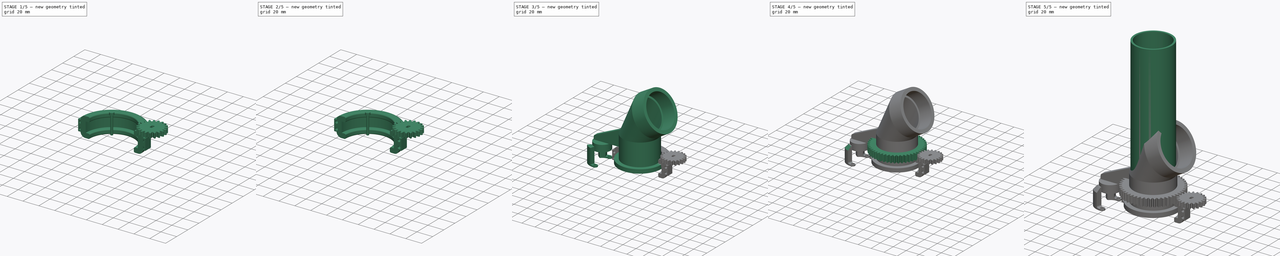
[diagram: build sequence overview — one tinted view per stage of 5, left to right]
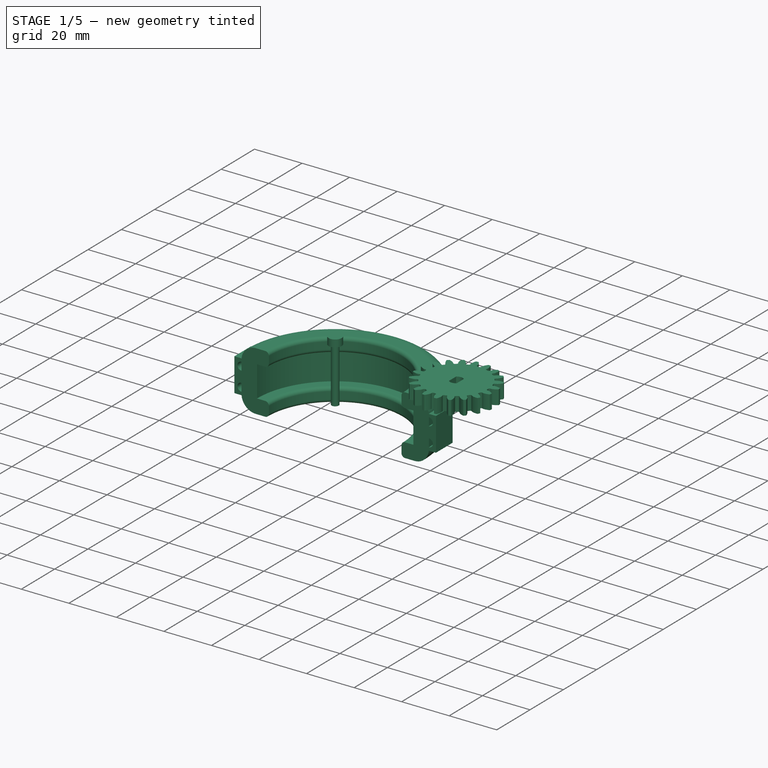
[diagram: stage 1 of 5 — iso view after this stage's code; geometry added in this stage tinted green]
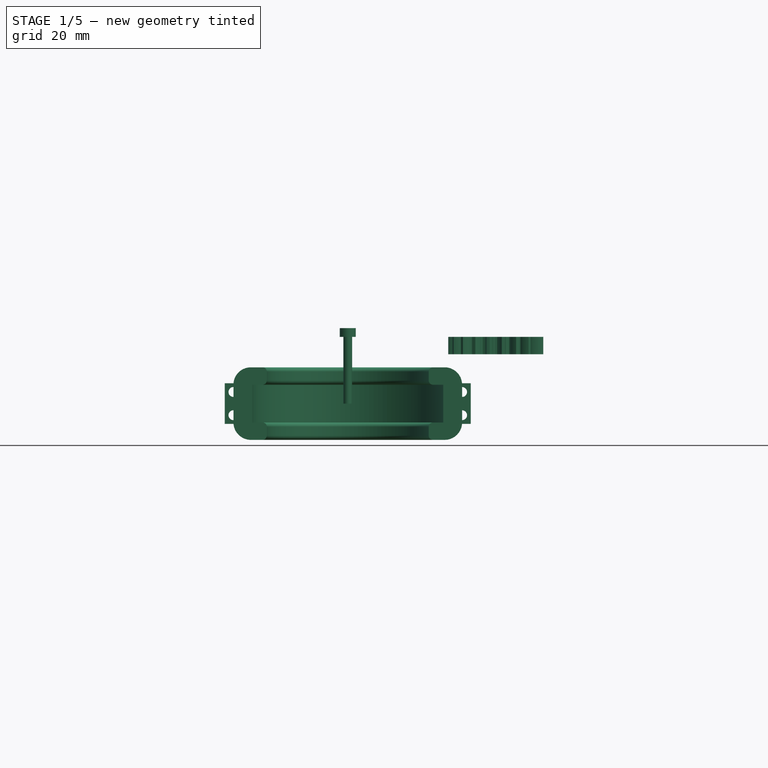
[diagram: stage 1 of 5 — front view after this stage's code; geometry added in this stage tinted green]
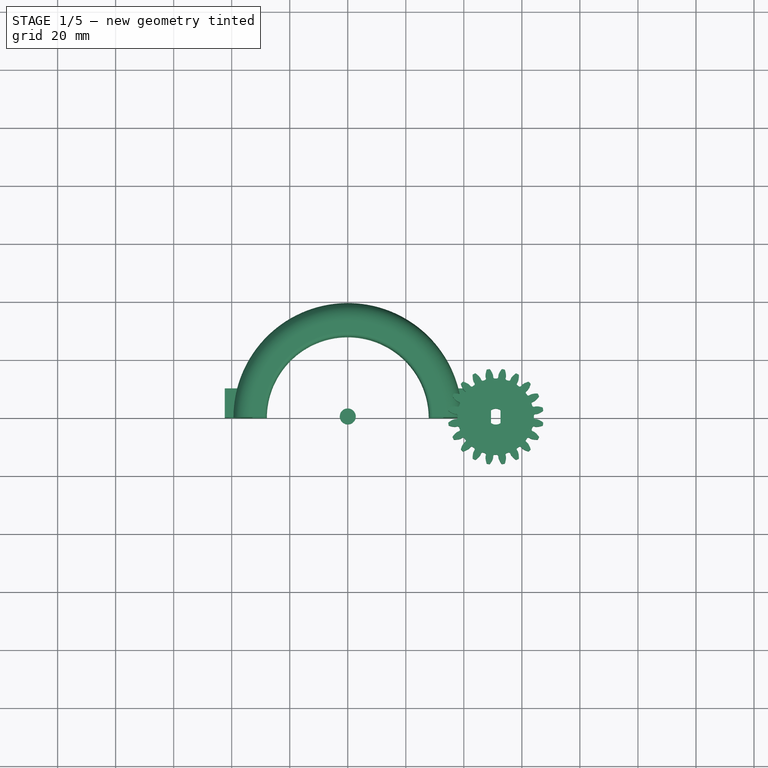
[diagram: stage 1 of 5 — top view after this stage's code; geometry added in this stage tinted green]
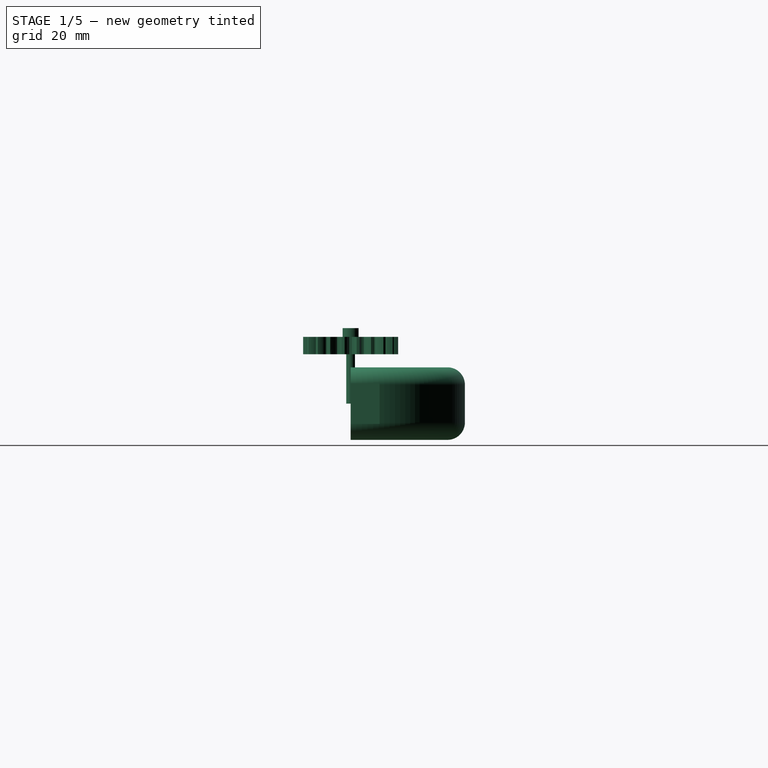
[diagram: stage 1 of 5 — right view after this stage's code; geometry added in this stage tinted green]
FCSTD DOCUMENT  (FreeCAD 0.20R29603 (Git))
Label: Pellet Sorter chute joint
License: All rights reserved
LicenseURL: http://en.wikipedia.org/wiki/All_rights_reserved
objects: Sketcher::SketchObject×41, PartDesign::Pad×19, PartDesign::Body×12, PartDesign::Pocket×8, PartDesign::Revolution×7, PartDesign::AdditiveLoft×4, PartDesign::Plane×2, PartDesign::Fillet×2, App::Part×2, Part::Part2DObjectPython×1, PartDesign::Chamfer×1
note: 138 computed .brp shape members not serialized (recipe doc carries the construction recipe); baked Part::Feature solids carry a one-line shape summary decoded from their .brp

FEATURE [PartDesign::Body] Body010  label="Body: Bottom"
  Group = -> [Sketch038,Sketch039,Sketch040,AdditiveLoft002,AdditiveLoft003,DatumPlane001,Sketch041,Pad016,Sketch042,Revolution003,Sketch049,Pad019,Sketch050,Pad020,Sketch051,Pad021,Pad022,Sketch052,Pad023,Chamfer,Fillet,Fillet001]
  Origin = -> Origin011
  Placement = pos=(0,0,-1) rot=(0,1,0;3.14159rad)
  Tip = -> Fillet001
FEATURE [Sketcher::SketchObject] Sketch053
  FullyConstrained = true
  MapMode = 5
  Placement = pos=(0,0,0) rot=(0.57735,0.57735,0.57735;2.0944rad)
  Support = -> [YZ_Plane013]
  sketch-geometry (23):
    g0: LineSegment StartX=0 StartY=0 StartZ=0 EndX=33.4 EndY=0 EndZ=0
    g1: LineSegment StartX=33.4 StartY=0 StartZ=0 EndX=33.4 EndY=6.5 EndZ=0
    g2: LineSegment StartX=33.4 StartY=6.5 StartZ=0 EndX=29.9 EndY=6.5 EndZ=0
    g3: LineSegment StartX=28.4 StartY=8 StartZ=0 EndX=28.4 EndY=11 EndZ=0
    g4: LineSegment StartX=29.9 StartY=12.5 StartZ=0 EndX=33.4 EndY=12.5 EndZ=0
    g5: LineSegment StartX=39.4 StartY=6.5 StartZ=0 EndX=39.4 EndY=0 EndZ=0
    g6: ArcOfCircle CenterX=29.9 CenterY=8 CenterZ=0 NormalX=0 NormalY=0 NormalZ=1 AngleXU=0 Radius=1.5 StartAngle=3.14159 EndAngle=4.71239
    g7: GeomPoint X=28.4 Y=6.5 Z=0
    g8: ArcOfCircle CenterX=29.9 CenterY=11 CenterZ=0 NormalX=0 NormalY=0 NormalZ=1 AngleXU=0 Radius=1.5 StartAngle=1.5708 EndAngle=3.14159
    g9: GeomPoint X=28.4 Y=12.5 Z=0
    g10: ArcOfCircle CenterX=33.4 CenterY=6.5 CenterZ=0 NormalX=0 NormalY=0 NormalZ=1 AngleXU=0 Radius=6 StartAngle=0 EndAngle=1.5708
    g11: GeomPoint X=39.4 Y=12.5 Z=0
    g12: LineSegment StartX=39.4 StartY=0 StartZ=0 EndX=39.4 EndY=-6.5 EndZ=0
    g13: LineSegment StartX=33.4 StartY=-12.5 StartZ=0 EndX=29.9 EndY=-12.5 EndZ=0
    g14: LineSegment StartX=28.4 StartY=-11 StartZ=0 EndX=28.4 EndY=-8 EndZ=0
    g15: LineSegment StartX=29.9 StartY=-6.5 StartZ=0 EndX=33.4 EndY=-6.5 EndZ=0
    g16: LineSegment StartX=33.4 StartY=-6.5 StartZ=0 EndX=33.4 EndY=0 EndZ=0
    g17: ArcOfCircle CenterX=29.9 CenterY=-11 CenterZ=0 NormalX=0 NormalY=0 NormalZ=1 AngleXU=0 Radius=1.5 StartAngle=3.14159 EndAngle=4.71239
    g18: GeomPoint X=28.4 Y=-12.5 Z=0
    g19: ArcOfCircle CenterX=33.4 CenterY=-6.5 CenterZ=0 NormalX=0 NormalY=0 NormalZ=1 AngleXU=0 Radius=6 StartAngle=4.71239 EndAngle=6.28319
    g20: GeomPoint X=39.4 Y=-12.5 Z=0
    g21: ArcOfCircle CenterX=29.9 CenterY=-8 CenterZ=0 NormalX=0 NormalY=0 NormalZ=1 AngleXU=0 Radius=1.5 StartAngle=1.5708 EndAngle=3.14159
    g22: GeomPoint X=28.4 Y=-6.5 Z=0
  constraints (56):
    c: Coincident(g0,g-1)
    c: PointOnObject(g0,g-1)
    c: Distance(g0) = 33.4
    c: Coincident(g1,g0)
    c: Vertical(g1)
    c: Coincident(g2,g1)
    c: Horizontal(g2)
    c: Distance(g1) = 6.5
    c: Distance(g2,g7) = 5
    c: Vertical(g3)
    c: Distance(g9,g7) = 6
    c: Horizontal(g4)
    c: PointOnObject(g5,g-1)
    c: Vertical(g5)
    c: Distance(g5,g1) = 6
    c: PointOnObject(g7,g2)
    c: PointOnObject(g7,g3)
    c: Tangent(g2,g6) = 1.5708
    c: Tangent(g3,g6) = 1.5708
    c: PointOnObject(g9,g3)
    c: PointOnObject(g9,g4)
    c: Tangent(g3,g8) = 1.5708
    c: Tangent(g4,g8) = 1.5708
    c: PointOnObject(g11,g4)
    c: PointOnObject(g11,g5)
    c: Tangent(g4,g10) = 1.5708
    c: Tangent(g5,g10) = 1.5708
    c: Radius(g6) = 1.5
    c: Radius(g8) = 1.5
    c: Radius(g10) = 6
    c: Coincident(g12,g5)
    c: Vertical(g12)
    c: Horizontal(g13)
    c: Vertical(g14)
    c: Horizontal(g15)
    c: Coincident(g16,g15)
    c: Coincident(g16,g1)
    c: Vertical(g16)
    c: PointOnObject(g18,g14)
    c: PointOnObject(g18,g13)
    c: Tangent(g14,g17) = 1.5708
    c: Tangent(g13,g17) = 1.5708
    c: PointOnObject(g20,g13)
    c: PointOnObject(g20,g12)
    c: Tangent(g13,g19) = 1.5708
    c: Tangent(g12,g19) = 1.5708
    c: PointOnObject(g22,g14)
    c: PointOnObject(g22,g15)
    c: Tangent(g14,g21) = 1.5708
    c: Tangent(g15,g21) = 1.5708
    c: Equal(g5,g12)
    c: Equal(g1,g16)
    c: Equal(g10,g19)
    c: Equal(g8,g17)
    c: Equal(g3,g14)
    c: Equal(g2,g15)
FEATURE [PartDesign::Revolution] Revolution004
  Angle = 180
  Axis = (-2e-16,3e-16,1)
  Base = (0,0,0)
  Midplane = true
  Placement = pos=(0,0,0) rot=(0.57735,0.57735,0.57735;2.0944rad)
  Profile = -> Sketch053
  ReferenceAxis = -> Sketch053 [V_Axis]
FEATURE [PartDesign::Body] Body012  label="Body008: Half clamp001"
  Group = -> [Sketch053,Revolution004,Sketch055,Pad024,Sketch054,Pocket003,Sketch056,Pocket004]
  Origin = -> Origin013
  Placement = pos=(0,0,-0.5) rot=(1,0,0;3.14159rad)
  Tip = -> Pocket004
FEATURE [App::Part] Part  label="Part: Clamp V0"
  Group = -> [Body012,Body008,Body009]
  Origin = -> Origin014
  Placement = pos=(0,0,0) rot=(0,0,1;3.49066rad)
FEATURE [Sketcher::SketchObject] Sketch060
  FullyConstrained = true
  MapMode = 5
  Placement = pos=(0,0,0) rot=(1,0,0;1.5708rad)
  Support = -> [XZ_Plane016]
  sketch-geometry (6):
    g0: LineSegment StartX=1.5 StartY=0 StartZ=0 EndX=1.5 EndY=23 EndZ=0
    g1: LineSegment StartX=1.5 StartY=23 StartZ=0 EndX=2.75 EndY=23 EndZ=0
    g2: LineSegment StartX=2.75 StartY=23 StartZ=0 EndX=2.75 EndY=26 EndZ=0
    g3: LineSegment StartX=2.75 StartY=26 StartZ=0 EndX=0 EndY=26 EndZ=0
    g4: LineSegment StartX=1.5 StartY=0 StartZ=0 EndX=0 EndY=0 EndZ=0
    g5: LineSegment StartX=0 StartY=26 StartZ=0 EndX=0 EndY=0 EndZ=0
  constraints (17):
    c: PointOnObject(g0,g-1)
    c: Vertical(g0)
    c: DistanceX(g-1,g0) = 1.5
    c: Coincident(g1,g0)
    c: Horizontal(g1)
    c: Coincident(g2,g1)
    c: Vertical(g2)
    c: Coincident(g3,g2)
    c: Horizontal(g3)
    c: Distance(g2) = 3
    c: PointOnObject(g3,g-2)
    c: Coincident(g4,g0)
    c: Coincident(g4,g-1)
    c: Coincident(g5,g3)
    c: Coincident(g5,g4)
    c: Distance(g3) = 2.75
    c: Distance(g3,g4) = 26
FEATURE [PartDesign::Revolution] Revolution006
  Angle = 360
  Axis = (0,-2e-16,1)
  Base = (0,0,0)
  Placement = pos=(0,0,0) rot=(1,0,0;1.5708rad)
  Profile = -> Sketch060
  ReferenceAxis = -> Sketch060 [V_Axis]
  Reversed = true
FEATURE [PartDesign::Body] Body014  label="Body009: Screw (M3 cut)001"
  Group = -> [Sketch060,Revolution006]
  Origin = -> Origin016
  Placement = pos=(-39.5,-12,3.5) rot=(-1,0,0;1.5708rad)
  Tip = -> Revolution006
FEATURE [Sketcher::SketchObject] Sketch062
  FullyConstrained = true
  MapMode = 5
  Placement = pos=(0,0,0) rot=(0.57735,0.57735,0.57735;2.0944rad)
  Support = -> [YZ_Plane017]
  sketch-geometry (23):
    g0: LineSegment StartX=0 StartY=0 StartZ=0 EndX=32.9 EndY=0 EndZ=0
    g1: LineSegment StartX=32.9 StartY=0 StartZ=0 EndX=32.9 EndY=6.5 EndZ=0
    g2: LineSegment StartX=32.9 StartY=6.5 StartZ=0 EndX=29.4 EndY=6.5 EndZ=0
    g3: LineSegment StartX=27.9 StartY=8 StartZ=0 EndX=27.9 EndY=11 EndZ=0
    g4: LineSegment StartX=29.4 StartY=12.5 StartZ=0 EndX=32.9 EndY=12.5 EndZ=0
    g5: LineSegment StartX=38.9 StartY=6.5 StartZ=0 EndX=38.9 EndY=0 EndZ=0
    g6: ArcOfCircle CenterX=29.4 CenterY=8 CenterZ=0 NormalX=0 NormalY=0 NormalZ=1 AngleXU=0 Radius=1.5 StartAngle=3.14159 EndAngle=4.71239
    g7: GeomPoint X=27.9 Y=6.5 Z=0
    g8: ArcOfCircle CenterX=29.4 CenterY=11 CenterZ=0 NormalX=0 NormalY=0 NormalZ=1 AngleXU=0 Radius=1.5 StartAngle=1.5708 EndAngle=3.14159
    g9: GeomPoint X=27.9 Y=12.5 Z=0
    g10: ArcOfCircle CenterX=32.9 CenterY=6.5 CenterZ=0 NormalX=0 NormalY=0 NormalZ=1 AngleXU=0 Radius=6 StartAngle=0 EndAngle=1.5708
    g11: GeomPoint X=38.9 Y=12.5 Z=0
    g12: LineSegment StartX=38.9 StartY=0 StartZ=0 EndX=38.9 EndY=-6.5 EndZ=0
    g13: LineSegment StartX=32.9 StartY=-12.5 StartZ=0 EndX=29.4 EndY=-12.5 EndZ=0
    g14: LineSegment StartX=27.9 StartY=-11 StartZ=0 EndX=27.9 EndY=-8 EndZ=0
    g15: LineSegment StartX=29.4 StartY=-6.5 StartZ=0 EndX=32.9 EndY=-6.5 EndZ=0
    g16: LineSegment StartX=32.9 StartY=-6.5 StartZ=0 EndX=32.9 EndY=0 EndZ=0
    g17: ArcOfCircle CenterX=29.4 CenterY=-11 CenterZ=0 NormalX=0 NormalY=0 NormalZ=1 AngleXU=0 Radius=1.5 StartAngle=3.14159 EndAngle=4.71239
    g18: GeomPoint X=27.9 Y=-12.5 Z=0
    g19: ArcOfCircle CenterX=32.9 CenterY=-6.5 CenterZ=0 NormalX=0 NormalY=0 NormalZ=1 AngleXU=0 Radius=6 StartAngle=4.71239 EndAngle=6.28319
    g20: GeomPoint X=38.9 Y=-12.5 Z=0
    g21: ArcOfCircle CenterX=29.4 CenterY=-8 CenterZ=0 NormalX=0 NormalY=0 NormalZ=1 AngleXU=0 Radius=1.5 StartAngle=1.5708 EndAngle=3.14159
    g22: GeomPoint X=27.9 Y=-6.5 Z=0
  constraints (56):
    c: Coincident(g0,g-1)
    c: PointOnObject(g0,g-1)
    c: Distance(g0) = 32.9
    c: Coincident(g1,g0)
    c: Vertical(g1)
    c: Coincident(g2,g1)
    c: Horizontal(g2)
    c: Distance(g1) = 6.5
    c: Distance(g2,g7) = 5
    c: Vertical(g3)
    c: Distance(g9,g7) = 6
    c: Horizontal(g4)
    c: PointOnObject(g5,g-1)
    c: Vertical(g5)
    c: Distance(g5,g1) = 6
    c: PointOnObject(g7,g2)
    c: PointOnObject(g7,g3)
    c: Tangent(g2,g6) = 1.5708
    c: Tangent(g3,g6) = 1.5708
    c: PointOnObject(g9,g3)
    c: PointOnObject(g9,g4)
    c: Tangent(g3,g8) = 1.5708
    c: Tangent(g4,g8) = 1.5708
    c: PointOnObject(g11,g4)
    c: PointOnObject(g11,g5)
    c: Tangent(g4,g10) = 1.5708
    c: Tangent(g5,g10) = 1.5708
    c: Radius(g6) = 1.5
    c: Radius(g8) = 1.5
    c: Radius(g10) = 6
    c: Coincident(g12,g5)
    c: Vertical(g12)
    c: Horizontal(g13)
    c: Vertical(g14)
    c: Horizontal(g15)
    c: Coincident(g16,g15)
    c: Coincident(g16,g1)
    c: Vertical(g16)
    c: PointOnObject(g18,g14)
    c: PointOnObject(g18,g13)
    c: Tangent(g14,g17) = 1.5708
    c: Tangent(g13,g17) = 1.5708
    c: PointOnObject(g20,g13)
    c: PointOnObject(g20,g12)
    c: Tangent(g13,g19) = 1.5708
    c: Tangent(g12,g19) = 1.5708
    c: PointOnObject(g22,g14)
    c: PointOnObject(g22,g15)
    c: Tangent(g14,g21) = 1.5708
    c: Tangent(g15,g21) = 1.5708
    c: Equal(g5,g12)
    c: Equal(g1,g16)
    c: Equal(g10,g19)
    c: Equal(g8,g17)
    c: Equal(g3,g14)
    c: Equal(g2,g15)
FEATURE [PartDesign::Revolution] Revolution007
  Angle = 180
  Axis = (-2e-16,3e-16,1)
  Base = (0,0,0)
  Midplane = true
  Placement = pos=(0,0,0) rot=(0.57735,0.57735,0.57735;2.0944rad)
  Profile = -> Sketch062
  ReferenceAxis = -> Sketch062 [V_Axis]
FEATURE [Sketcher::SketchObject] Sketch063
  FullyConstrained = true
  MapMode = 5
  Placement = pos=(0,1e-16,0) rot=(0.57735,0.57735,-0.57735;2.0944rad)
  Support = -> [Revolution007]
  sketch-geometry (11):
    g0: Circle CenterX=4 CenterY=39.4 CenterZ=0 NormalX=0 NormalY=0 NormalZ=1 AngleXU=0 Radius=1.7
    g1: LineSegment StartX=4 StartY=39.4 StartZ=0 EndX=4 EndY=0 EndZ=0
    g2: LineSegment StartX=4 StartY=0 StartZ=0 EndX=0 EndY=0 EndZ=0
    g3: Circle CenterX=-4 CenterY=39.4 CenterZ=0 NormalX=0 NormalY=0 NormalZ=1 AngleXU=0 Radius=1.7
    g4: Circle CenterX=-4 CenterY=-39.4 CenterZ=0 NormalX=0 NormalY=0 NormalZ=1 AngleXU=0 Radius=1.7
    g5: Circle CenterX=4 CenterY=-39.4 CenterZ=0 NormalX=0 NormalY=0 NormalZ=1 AngleXU=0 Radius=1.7
    g6: LineSegment StartX=4 StartY=0 StartZ=0 EndX=4 EndY=-39.4 EndZ=0
    g7: LineSegment StartX=-4 StartY=39.4 StartZ=0 EndX=0 EndY=39.4 EndZ=0
    g8: LineSegment StartX=0 StartY=39.4 StartZ=0 EndX=4 EndY=39.4 EndZ=0
    g9: LineSegment StartX=-4 StartY=-39.4 StartZ=0 EndX=0 EndY=-39.4 EndZ=0
    g10: LineSegment StartX=0 StartY=-39.4 StartZ=0 EndX=4 EndY=-39.4 EndZ=0
  constraints (29):
    c: Diameter(g0) = 3.4
    c: Coincident(g1,g0)
    c: PointOnObject(g1,g-1)
    c: Vertical(g1)
    c: Coincident(g2,g1)
    c: Coincident(g2,g-1)
    c: Distance(g1) = 39.4
    c: Distance(g2) = 4
    c: Equal(g0,g3)
    c: Equal(g0,g5)
    c: Equal(g0,g4)
    c: Coincident(g6,g1)
    c: Coincident(g6,g5)
    c: Vertical(g6)
    c: Equal(g6,g1)
    c: Coincident(g7,g3)
    c: PointOnObject(g7,g-2)
    c: Horizontal(g7)
    c: Coincident(g8,g7)
    c: Coincident(g8,g0)
    c: Horizontal(g8)
    c: Coincident(g9,g4)
    c: PointOnObject(g9,g-2)
    c: Horizontal(g9)
    c: Coincident(g10,g9)
    c: Coincident(g10,g5)
    c: Horizontal(g10)
    c: Equal(g2,g9)
    c: Equal(g7,g2)
FEATURE [Sketcher::SketchObject] Sketch064
  FullyConstrained = true
  MapMode = 5
  Placement = pos=(0,1e-16,0) rot=(0.57735,0.57735,-0.57735;2.0944rad)
  Support = -> [Revolution007]
  sketch-geometry (11):
    g0: LineSegment StartX=7 StartY=36.4 StartZ=0 EndX=-7 EndY=36.4 EndZ=0
    g1: LineSegment StartX=-7 StartY=36.4 StartZ=0 EndX=-7 EndY=42.4 EndZ=0
    g2: LineSegment StartX=-7 StartY=42.4 StartZ=0 EndX=7 EndY=42.4 EndZ=0
    g3: LineSegment StartX=7 StartY=42.4 StartZ=0 EndX=7 EndY=36.4 EndZ=0
    g4: LineSegment StartX=-7 StartY=-36.4 StartZ=0 EndX=-7 EndY=-42.4 EndZ=0
    g5: LineSegment StartX=-7 StartY=-42.4 StartZ=0 EndX=7 EndY=-42.4 EndZ=0
    g6: LineSegment StartX=7 StartY=-42.4 StartZ=0 EndX=7 EndY=-36.4 EndZ=0
    g7: LineSegment StartX=7 StartY=-36.4 StartZ=0 EndX=-7 EndY=-36.4 EndZ=0
    g8: LineSegment StartX=-7 StartY=36.4 StartZ=0 EndX=-7 EndY=0 EndZ=0
    g9: LineSegment StartX=-7 StartY=0 StartZ=0 EndX=0 EndY=0 EndZ=0
    g10: LineSegment StartX=-7 StartY=0 StartZ=0 EndX=-7 EndY=-36.4 EndZ=0
  constraints (31):
    c: Horizontal(g0)
    c: Coincident(g1,g0)
    c: Vertical(g1)
    c: Coincident(g2,g1)
    c: Horizontal(g2)
    c: Coincident(g3,g2)
    c: Coincident(g3,g0)
    c: Vertical(g3)
    c: Distance(g0,g-2) = 7
    c: Distance(g2) = 14
    c: Distance(g3) = 6
    c: DistanceY(g-1,g0) = 36.4
    c: Vertical(g4)
    c: Coincident(g5,g4)
    c: Horizontal(g5)
    c: Coincident(g6,g5)
    c: Vertical(g6)
    c: Coincident(g7,g6)
    c: Coincident(g7,g4)
    c: Horizontal(g7)
    c: Equal(g3,g6)
    c: Equal(g2,g5)
    c: Coincident(g8,g0)
    c: PointOnObject(g8,g-1)
    c: Vertical(g8)
    c: Coincident(g9,g8)
    c: Coincident(g9,g-1)
    c: Coincident(g10,g8)
    c: Coincident(g10,g4)
    c: Vertical(g10)
    c: Equal(g8,g10)
FEATURE [PartDesign::Pad] Pad026
  BaseFeature = -> Revolution007
  Direction = (-3e-16,-1,1e-16)
  Length = 10
  Length2 = 10
  Placement = pos=(0,0,0) rot=(0.57735,0.57735,0.57735;2.0944rad)
  Profile = -> Sketch064
  ReferenceAxis = -> Sketch064 [N_Axis]
  Reversed = true
  Type = 0
FEATURE [PartDesign::Pocket] Pocket007
  BaseFeature = -> Pad026
  Direction = (3e-16,1,-1e-16)
  Length = 5
  Length2 = 5
  Placement = pos=(0,0,0) rot=(0.57735,0.57735,0.57735;2.0944rad)
  Profile = -> Sketch063
  ReferenceAxis = -> Sketch063 [N_Axis]
  Type = 1
FEATURE [Sketcher::SketchObject] Sketch065
  FullyConstrained = true
  MapMode = 5
  Placement = pos=(4.4e-15,10,-1.1e-15) rot=(0.57735,0.57735,0.57735;4.18879rad)
  Support = -> [Pocket007]
  sketch-geometry (12):
    g0: LineSegment StartX=-4 StartY=0 StartZ=0 EndX=-4 EndY=39.4 EndZ=0
    g1: LineSegment StartX=-4 StartY=43.4 StartZ=0 EndX=4 EndY=43.4 EndZ=0
    g2: LineSegment StartX=-4 StartY=35.4 StartZ=0 EndX=4 EndY=35.4 EndZ=0
    g3: ArcOfCircle CenterX=-4 CenterY=39.4 CenterZ=0 NormalX=0 NormalY=0 NormalZ=1 AngleXU=0 Radius=4 StartAngle=1.5708 EndAngle=4.71239
    g4: ArcOfCircle CenterX=4 CenterY=39.4 CenterZ=0 NormalX=0 NormalY=0 NormalZ=1 AngleXU=0 Radius=4 StartAngle=4.71239 EndAngle=7.85398
    g5: LineSegment StartX=-4 StartY=0 StartZ=0 EndX=0 EndY=0 EndZ=0
    g6: LineSegment StartX=-4 StartY=0 StartZ=0 EndX=-4 EndY=-39.4 EndZ=0
    g7: LineSegment StartX=-4 StartY=-35.4 StartZ=0 EndX=4 EndY=-35.4 EndZ=0
    g8: LineSegment StartX=-4 StartY=-43.4 StartZ=0 EndX=4 EndY=-43.4 EndZ=0
    g9: ArcOfCircle CenterX=4 CenterY=-39.4 CenterZ=0 NormalX=0 NormalY=0 NormalZ=1 AngleXU=0 Radius=4 StartAngle=4.71239 EndAngle=7.85398
    g10: ArcOfCircle CenterX=-4 CenterY=-39.4 CenterZ=0 NormalX=0 NormalY=0 NormalZ=1 AngleXU=0 Radius=4 StartAngle=1.5708 EndAngle=4.71239
    g11: LineSegment StartX=-4 StartY=-39.4 StartZ=0 EndX=4 EndY=-39.4 EndZ=0
  constraints (33):
    c: PointOnObject(g0,g-1)
    c: Vertical(g0)
    c: Distance(g0) = 39.4
    c: Horizontal(g1)
    c: Horizontal(g2)
    c: Coincident(g4,g2)
    c: Coincident(g4,g1)
    c: Equal(g3,g4)
    c: Equal(g1,g2)
    c: Tangent(g3,g1) = 1.5708
    c: Distance(g1,g2) = 8
    c: Tangent(g3,g2) = -1.5708
    c: Coincident(g3,g0)
    c: Distance(g4,g3) = 8
    c: Coincident(g5,g0)
    c: Coincident(g5,g-1)
    c: Distance(g5) = 4
    c: Coincident(g6,g0)
    c: Vertical(g6)
    c: Equal(g0,g6)
    c: Horizontal(g7)
    c: Horizontal(g8)
    c: Coincident(g9,g8)
    c: Coincident(g10,g7)
    c: Equal(g7,g8)
    c: Tangent(g9,g7) = 1.5708
    c: Tangent(g10,g8) = -1.5708
    c: Coincident(g10,g6)
    c: Coincident(g11,g10)
    c: Coincident(g11,g9)
    c: Horizontal(g11)
    c: Distance(g11) = 8
    c: Equal(g9,g4)
FEATURE [PartDesign::Pocket] Pocket008
  BaseFeature = -> Pocket007
  Direction = (-4e-16,-1,6e-16)
  Length = 6
  Length2 = 5
  Placement = pos=(0,0,0) rot=(0.57735,0.57735,0.57735;2.0944rad)
  Profile = -> Sketch065
  ReferenceAxis = -> Sketch065 [N_Axis]
  Reversed = true
  Type = 1
FEATURE [PartDesign::Body] Body015  label="Body008: Half clamp003"
  Group = -> [Sketch062,Revolution007,Sketch064,Pad026,Sketch063,Pocket007,Sketch065,Pocket008]
  Origin = -> Origin017
  Placement = pos=(0,0,-0.5) rot=(1,0,0;3.14159rad)
  Tip = -> Pocket008
FEATURE [App::Part] Part001  label="Part: Clamp V1"
  Group = -> [Body015,Body014]
  Origin = -> Origin018
  Placement = pos=(0,0,0) rot=(0,0,1;3.49066rad)
FEATURE [Sketcher::SketchObject] Sketch066  label="Sketch046: Pinion original001"
  AttachmentOffset = pos=(51,0,20) rot=(0,0,1;0.15708rad)
  FullyConstrained = false
  MapMode = 5
  Placement = pos=(51,0,20) rot=(0,0,1;0.15708rad)
  Support = -> [XY_Plane019]
  sketch-geometry (200):
    g0: LineSegment StartX=13.6163 StartY=-1.27608 StartZ=0 EndX=14.0608 EndY=-1.31661 EndZ=0
    g1: BSplineCurve PolesCount=4 KnotsCount=2 Degree=3 IsPeriodic=0
    g2: BSplineCurve PolesCount=4 KnotsCount=2 Degree=3 IsPeriodic=0
    g3: ArcOfCircle CenterX=0.00164238 CenterY=0 CenterZ=0 NormalX=0 NormalY=0 NormalZ=1 AngleXU=-0.0315477 Radius=16.5 StartAngle=0 EndAngle=0.0630955
    g4: BSplineCurve PolesCount=4 KnotsCount=2 Degree=3 IsPeriodic=0
    g5: BSplineCurve PolesCount=4 KnotsCount=2 Degree=3 IsPeriodic=0
    g6: LineSegment StartX=14.0608 StartY=1.31661 StartZ=0 EndX=13.6163 EndY=1.27608 EndZ=0
    g7: ArcOfCircle CenterX=13.5638 CenterY=1.83612 CenterZ=0 NormalX=0 NormalY=0 NormalZ=1 AngleXU=-1.47735 Radius=0.5625 StartAngle=4.75431 EndAngle=6.28319
    g8: ArcOfCircle CenterX=-7.006e-12 CenterY=-1.115e-12 CenterZ=0 NormalX=0 NormalY=0 NormalZ=1 AngleXU=0.134517 Radius=13.125 StartAngle=0 EndAngle=0.0451253
    g9: ArcOfCircle CenterX=13.4673 CenterY=2.44518 CenterZ=0 NormalX=0 NormalY=0 NormalZ=1 AngleXU=-2.96279 Radius=0.5625 StartAngle=4.75431 EndAngle=6.28319
    g10: LineSegment StartX=13.3442 StartY=2.99404 StartZ=0 EndX=13.7795 EndY=3.09285 EndZ=0
    g11: BSplineCurve PolesCount=4 KnotsCount=2 Degree=3 IsPeriodic=0
    g12: BSplineCurve PolesCount=4 KnotsCount=2 Degree=3 IsPeriodic=0
    g13: ArcOfCircle CenterX=0.00156199 CenterY=0.000507522 CenterZ=0 NormalX=0 NormalY=0 NormalZ=1 AngleXU=0.282612 Radius=16.5 StartAngle=0 EndAngle=0.0630955
    g14: BSplineCurve PolesCount=4 KnotsCount=2 Degree=3 IsPeriodic=0
    g15: BSplineCurve PolesCount=4 KnotsCount=2 Degree=3 IsPeriodic=0
    g16: LineSegment StartX=12.9657 StartY=5.59719 StartZ=0 EndX=12.5555 EndY=5.42128 EndZ=0
    g17: ArcOfCircle CenterX=12.3325 CenterY=5.9377 CenterZ=0 NormalX=0 NormalY=0 NormalZ=1 AngleXU=-1.16319 Radius=0.5625 StartAngle=4.75431 EndAngle=6.28319
    g18: ArcOfCircle CenterX=-1.2971e-11 CenterY=-6.6005e-12 CenterZ=0 NormalX=0 NormalY=0 NormalZ=1 AngleXU=0.448676 Radius=13.125 StartAngle=0 EndAngle=0.0451253
    g19: ArcOfCircle CenterX=12.0526 CenterY=6.48714 CenterZ=0 NormalX=0 NormalY=0 NormalZ=1 AngleXU=-2.64864 Radius=0.5625 StartAngle=4.75431 EndAngle=6.28319
    g20: LineSegment StartX=11.7659 StartY=6.97108 StartZ=0 EndX=12.1493 EndY=7.19956 EndZ=0
    g21: BSplineCurve PolesCount=4 KnotsCount=2 Degree=3 IsPeriodic=0
    g22: BSplineCurve PolesCount=4 KnotsCount=2 Degree=3 IsPeriodic=0
    g23: ArcOfCircle CenterX=0.00132871 CenterY=0.000965365 CenterZ=0 NormalX=0 NormalY=0 NormalZ=1 AngleXU=0.596771 Radius=16.5 StartAngle=0 EndAngle=0.0630955
    g24: BSplineCurve PolesCount=4 KnotsCount=2 Degree=3 IsPeriodic=0
    g25: BSplineCurve PolesCount=4 KnotsCount=2 Degree=3 IsPeriodic=0
    g26: LineSegment StartX=10.6015 StartY=9.32988 StartZ=0 EndX=10.2657 EndY=9.03581 EndZ=0
    g27: ArcOfCircle CenterX=9.89409 CenterY=9.45805 CenterZ=0 NormalX=0 NormalY=0 NormalZ=1 AngleXU=-0.849033 Radius=0.5625 StartAngle=4.75431 EndAngle=6.28319
    g28: ArcOfCircle CenterX=-7.1285e-12 CenterY=-7.1285e-12 CenterZ=0 NormalX=0 NormalY=0 NormalZ=1 AngleXU=0.762836 Radius=13.125 StartAngle=0 EndAngle=0.0451253
    g29: ArcOfCircle CenterX=9.45805 CenterY=9.89409 CenterZ=0 NormalX=0 NormalY=0 NormalZ=1 AngleXU=-2.33448 Radius=0.5625 StartAngle=4.75431 EndAngle=6.28319
    g30: LineSegment StartX=9.03581 StartY=10.2657 StartZ=0 EndX=9.32988 EndY=10.6015 EndZ=0
    g31: BSplineCurve PolesCount=4 KnotsCount=2 Degree=3 IsPeriodic=0
    g32: BSplineCurve PolesCount=4 KnotsCount=2 Degree=3 IsPeriodic=0
    g33: ArcOfCircle CenterX=0.000965365 CenterY=0.00132871 CenterZ=0 NormalX=0 NormalY=0 NormalZ=1 AngleXU=0.91093 Radius=16.5 StartAngle=0 EndAngle=0.0630955
    g34: BSplineCurve PolesCount=4 KnotsCount=2 Degree=3 IsPeriodic=0
    g35: BSplineCurve PolesCount=4 KnotsCount=2 Degree=3 IsPeriodic=0
    g36: LineSegment StartX=7.19956 StartY=12.1493 StartZ=0 EndX=6.97108 EndY=11.7659 EndZ=0
    g37: ArcOfCircle CenterX=6.48714 CenterY=12.0526 CenterZ=0 NormalX=0 NormalY=0 NormalZ=1 AngleXU=-0.534874 Radius=0.5625 StartAngle=4.75431 EndAngle=6.28319
    g38: ArcOfCircle CenterX=-8.5838e-12 CenterY=-1.69216e-11 CenterZ=0 NormalX=0 NormalY=0 NormalZ=1 AngleXU=1.07699 Radius=13.125 StartAngle=0 EndAngle=0.0451253
    g39: ArcOfCircle CenterX=5.9377 CenterY=12.3325 CenterZ=0 NormalX=0 NormalY=0 NormalZ=1 AngleXU=-2.02032 Radius=0.5625 StartAngle=4.75431 EndAngle=6.28319
    g40: LineSegment StartX=5.42128 StartY=12.5555 StartZ=0 EndX=5.59719 EndY=12.9657 EndZ=0
    g41: BSplineCurve PolesCount=4 KnotsCount=2 Degree=3 IsPeriodic=0
    g42: BSplineCurve PolesCount=4 KnotsCount=2 Degree=3 IsPeriodic=0
    g43: ArcOfCircle CenterX=0.000507522 CenterY=0.00156199 CenterZ=0 NormalX=0 NormalY=0 NormalZ=1 AngleXU=1.22509 Radius=16.5 StartAngle=0 EndAngle=0.0630955
    g44: BSplineCurve PolesCount=4 KnotsCount=2 Degree=3 IsPeriodic=0
    g45: BSplineCurve PolesCount=4 KnotsCount=2 Degree=3 IsPeriodic=0
    g46: LineSegment StartX=3.09285 StartY=13.7795 StartZ=0 EndX=2.99404 EndY=13.3442 EndZ=0
    g47: ArcOfCircle CenterX=2.44518 CenterY=13.4673 CenterZ=0 NormalX=0 NormalY=0 NormalZ=1 AngleXU=-0.220715 Radius=0.5625 StartAngle=4.75431 EndAngle=6.28319
    g48: ArcOfCircle CenterX=-2.508e-13 CenterY=-1.5667e-12 CenterZ=0 NormalX=0 NormalY=0 NormalZ=1 AngleXU=1.39115 Radius=13.125 StartAngle=0 EndAngle=0.0451253
    g49: ArcOfCircle CenterX=1.83612 CenterY=13.5638 CenterZ=0 NormalX=0 NormalY=0 NormalZ=1 AngleXU=-1.70616 Radius=0.5625 StartAngle=4.75431 EndAngle=6.28319
    g50: LineSegment StartX=1.27608 StartY=13.6163 StartZ=0 EndX=1.31661 EndY=14.0608 EndZ=0
    g51: BSplineCurve PolesCount=4 KnotsCount=2 Degree=3 IsPeriodic=0
    g52: BSplineCurve PolesCount=4 KnotsCount=2 Degree=3 IsPeriodic=0
    g53: ArcOfCircle CenterX=1e-15 CenterY=0.00164238 CenterZ=0 NormalX=0 NormalY=0 NormalZ=1 AngleXU=1.53925 Radius=16.5 StartAngle=0 EndAngle=0.0630955
    g54: BSplineCurve PolesCount=4 KnotsCount=2 Degree=3 IsPeriodic=0
    g55: BSplineCurve PolesCount=4 KnotsCount=2 Degree=3 IsPeriodic=0
    g56: LineSegment StartX=-1.31661 StartY=14.0608 StartZ=0 EndX=-1.27608 EndY=13.6163 EndZ=0
    g57: ArcOfCircle CenterX=-1.83612 CenterY=13.5638 CenterZ=0 NormalX=0 NormalY=0 NormalZ=1 AngleXU=0.0934445 Radius=0.5625 StartAngle=4.75431 EndAngle=6.28319
    g58: ArcOfCircle CenterX=1.1159e-12 CenterY=-7.006e-12 CenterZ=0 NormalX=0 NormalY=0 NormalZ=1 AngleXU=1.70531 Radius=13.125 StartAngle=0 EndAngle=0.0451253
    g59: ArcOfCircle CenterX=-2.44518 CenterY=13.4673 CenterZ=0 NormalX=0 NormalY=0 NormalZ=1 AngleXU=-1.392 Radius=0.5625 StartAngle=4.75431 EndAngle=6.28319
    g60: LineSegment StartX=-2.99404 StartY=13.3442 StartZ=0 EndX=-3.09285 EndY=13.7795 EndZ=0
    g61: BSplineCurve PolesCount=4 KnotsCount=2 Degree=3 IsPeriodic=0
    g62: BSplineCurve PolesCount=4 KnotsCount=2 Degree=3 IsPeriodic=0
    g63: ArcOfCircle CenterX=-0.000507522 CenterY=0.00156199 CenterZ=0 NormalX=0 NormalY=0 NormalZ=1 AngleXU=1.85341 Radius=16.5 StartAngle=0 EndAngle=0.0630955
    g64: BSplineCurve PolesCount=4 KnotsCount=2 Degree=3 IsPeriodic=0
    g65: BSplineCurve PolesCount=4 KnotsCount=2 Degree=3 IsPeriodic=0
    g66: LineSegment StartX=-5.59719 StartY=12.9657 StartZ=0 EndX=-5.42128 EndY=12.5555 EndZ=0
    g67: ArcOfCircle CenterX=-5.9377 CenterY=12.3325 CenterZ=0 NormalX=0 NormalY=0 NormalZ=1 AngleXU=0.407604 Radius=0.5625 StartAngle=4.75431 EndAngle=6.28319
    g68: ArcOfCircle CenterX=1.2945e-12 CenterY=-2.5731e-12 CenterZ=0 NormalX=0 NormalY=0 NormalZ=1 AngleXU=2.01947 Radius=13.125 StartAngle=0 EndAngle=0.0451253
    g69: ArcOfCircle CenterX=-6.48714 CenterY=12.0526 CenterZ=0 NormalX=0 NormalY=0 NormalZ=1 AngleXU=-1.07784 Radius=0.5625 StartAngle=4.75431 EndAngle=6.28319
    g70: LineSegment StartX=-6.97108 StartY=11.7659 StartZ=0 EndX=-7.19956 EndY=12.1493 EndZ=0
    g71: BSplineCurve PolesCount=4 KnotsCount=2 Degree=3 IsPeriodic=0
    g72: BSplineCurve PolesCount=4 KnotsCount=2 Degree=3 IsPeriodic=0
    g73: ArcOfCircle CenterX=-0.000965365 CenterY=0.00132871 CenterZ=0 NormalX=0 NormalY=0 NormalZ=1 AngleXU=2.16757 Radius=16.5 StartAngle=0 EndAngle=0.0630955
    g74: BSplineCurve PolesCount=4 KnotsCount=2 Degree=3 IsPeriodic=0
    g75: BSplineCurve PolesCount=4 KnotsCount=2 Degree=3 IsPeriodic=0
    g76: LineSegment StartX=-9.32988 StartY=10.6015 StartZ=0 EndX=-9.03581 EndY=10.2657 EndZ=0
    g77: ArcOfCircle CenterX=-9.45805 CenterY=9.89409 CenterZ=0 NormalX=0 NormalY=0 NormalZ=1 AngleXU=0.721763 Radius=0.5625 StartAngle=4.75431 EndAngle=6.28319
    g78: ArcOfCircle CenterX=6.5121e-12 CenterY=-6.5112e-12 CenterZ=0 NormalX=0 NormalY=0 NormalZ=1 AngleXU=2.33363 Radius=13.125 StartAngle=0 EndAngle=0.0451253
    g79: ArcOfCircle CenterX=-9.89409 CenterY=9.45805 CenterZ=0 NormalX=0 NormalY=0 NormalZ=1 AngleXU=-0.76368 Radius=0.5625 StartAngle=4.75431 EndAngle=6.28319
    g80: LineSegment StartX=-10.2657 StartY=9.03581 StartZ=0 EndX=-10.6015 EndY=9.32988 EndZ=0
    g81: BSplineCurve PolesCount=4 KnotsCount=2 Degree=3 IsPeriodic=0
    g82: BSplineCurve PolesCount=4 KnotsCount=2 Degree=3 IsPeriodic=0
    g83: ArcOfCircle CenterX=-0.00132871 CenterY=0.000965365 CenterZ=0 NormalX=0 NormalY=0 NormalZ=1 AngleXU=2.48173 Radius=16.5 StartAngle=0 EndAngle=0.0630955
    g84: BSplineCurve PolesCount=4 KnotsCount=2 Degree=3 IsPeriodic=0
    g85: BSplineCurve PolesCount=4 KnotsCount=2 Degree=3 IsPeriodic=0
    g86: LineSegment StartX=-12.1493 StartY=7.19956 StartZ=0 EndX=-11.7659 EndY=6.97108 EndZ=0
    g87: ArcOfCircle CenterX=-12.0526 CenterY=6.48714 CenterZ=0 NormalX=0 NormalY=0 NormalZ=1 AngleXU=1.03592 Radius=0.5625 StartAngle=4.75431 EndAngle=6.28319
    g88: ArcOfCircle CenterX=3.9115e-12 CenterY=-1.9722e-12 CenterZ=0 NormalX=0 NormalY=0 NormalZ=1 AngleXU=2.64779 Radius=13.125 StartAngle=0 EndAngle=0.0451253
    g89: ArcOfCircle CenterX=-12.3325 CenterY=5.9377 CenterZ=0 NormalX=0 NormalY=0 NormalZ=1 AngleXU=-0.44952 Radius=0.5625 StartAngle=4.75431 EndAngle=6.28319
    g90: LineSegment StartX=-12.5555 StartY=5.42128 StartZ=0 EndX=-12.9657 EndY=5.59719 EndZ=0
    g91: BSplineCurve PolesCount=4 KnotsCount=2 Degree=3 IsPeriodic=0
    g92: BSplineCurve PolesCount=4 KnotsCount=2 Degree=3 IsPeriodic=0
    g93: ArcOfCircle CenterX=-0.00156199 CenterY=0.000507522 CenterZ=0 NormalX=0 NormalY=0 NormalZ=1 AngleXU=2.79589 Radius=16.5 StartAngle=0 EndAngle=0.0630955
    g94: BSplineCurve PolesCount=4 KnotsCount=2 Degree=3 IsPeriodic=0
    g95: BSplineCurve PolesCount=4 KnotsCount=2 Degree=3 IsPeriodic=0
    g96: LineSegment StartX=-13.7795 StartY=3.09285 StartZ=0 EndX=-13.3442 EndY=2.99404 EndZ=0
    g97: ArcOfCircle CenterX=-13.4673 CenterY=2.44518 CenterZ=0 NormalX=0 NormalY=0 NormalZ=1 AngleXU=1.35008 Radius=0.5625 StartAngle=4.75431 EndAngle=6.28319
    g98: ArcOfCircle CenterX=1.5667e-12 CenterY=-2.499e-13 CenterZ=0 NormalX=0 NormalY=0 NormalZ=1 AngleXU=2.96195 Radius=13.125 StartAngle=0 EndAngle=0.0451253
    g99: ArcOfCircle CenterX=-13.5638 CenterY=1.83612 CenterZ=0 NormalX=0 NormalY=0 NormalZ=1 AngleXU=-0.135361 Radius=0.5625 StartAngle=4.75431 EndAngle=6.28319
    g100: LineSegment StartX=-13.6163 StartY=1.27608 StartZ=0 EndX=-14.0608 EndY=1.31661 EndZ=0
    g101: BSplineCurve PolesCount=4 KnotsCount=2 Degree=3 IsPeriodic=0
    g102: BSplineCurve PolesCount=4 KnotsCount=2 Degree=3 IsPeriodic=0
    g103: ArcOfCircle CenterX=-0.00164238 CenterY=2e-15 CenterZ=0 NormalX=0 NormalY=0 NormalZ=1 AngleXU=3.11004 Radius=16.5 StartAngle=0 EndAngle=0.0630955
    g104: BSplineCurve PolesCount=4 KnotsCount=2 Degree=3 IsPeriodic=0
    g105: BSplineCurve PolesCount=4 KnotsCount=2 Degree=3 IsPeriodic=0
    g106: LineSegment StartX=-14.0608 StartY=-1.31661 StartZ=0 EndX=-13.6163 EndY=-1.27608 EndZ=0
    g107: ArcOfCircle CenterX=-13.5638 CenterY=-1.83612 CenterZ=0 NormalX=0 NormalY=0 NormalZ=1 AngleXU=1.66424 Radius=0.5625 StartAngle=4.75431 EndAngle=6.28319
    g108: ArcOfCircle CenterX=6.9518e-12 CenterY=1.1091e-12 CenterZ=0 NormalX=0 NormalY=0 NormalZ=1 AngleXU=-3.00708 Radius=13.125 StartAngle=0 EndAngle=0.0451253
    g109: ArcOfCircle CenterX=-13.4673 CenterY=-2.44518 CenterZ=0 NormalX=0 NormalY=0 NormalZ=1 AngleXU=0.178798 Radius=0.5625 StartAngle=4.75431 EndAngle=6.28319
    g110: LineSegment StartX=-13.3442 StartY=-2.99404 StartZ=0 EndX=-13.7795 EndY=-3.09285 EndZ=0
    g111: BSplineCurve PolesCount=4 KnotsCount=2 Degree=3 IsPeriodic=0
    g112: BSplineCurve PolesCount=4 KnotsCount=2 Degree=3 IsPeriodic=0
    g113: ArcOfCircle CenterX=-0.00156199 CenterY=-0.000507522 CenterZ=0 NormalX=0 NormalY=0 NormalZ=1 AngleXU=-2.85898 Radius=16.5 StartAngle=0 EndAngle=0.0630955
    g114: BSplineCurve PolesCount=4 KnotsCount=2 Degree=3 IsPeriodic=0
    g115: BSplineCurve PolesCount=4 KnotsCount=2 Degree=3 IsPeriodic=0
    g116: LineSegment StartX=-12.9657 StartY=-5.59719 StartZ=0 EndX=-12.5555 EndY=-5.42128 EndZ=0
    g117: ArcOfCircle CenterX=-12.3325 CenterY=-5.9377 CenterZ=0 NormalX=0 NormalY=0 NormalZ=1 AngleXU=1.9784 Radius=0.5625 StartAngle=4.75431 EndAngle=6.28319
    g118: ArcOfCircle CenterX=8.5691e-12 CenterY=4.3703e-12 CenterZ=0 NormalX=0 NormalY=0 NormalZ=1 AngleXU=-2.69292 Radius=13.125 StartAngle=0 EndAngle=0.0451253
    g119: ArcOfCircle CenterX=-12.0526 CenterY=-6.48714 CenterZ=0 NormalX=0 NormalY=0 NormalZ=1 AngleXU=0.492957 Radius=0.5625 StartAngle=4.75431 EndAngle=6.28319
    g120: LineSegment StartX=-11.7659 StartY=-6.97108 StartZ=0 EndX=-12.1493 EndY=-7.19956 EndZ=0
    g121: BSplineCurve PolesCount=4 KnotsCount=2 Degree=3 IsPeriodic=0
    g122: BSplineCurve PolesCount=4 KnotsCount=2 Degree=3 IsPeriodic=0
    g123: ArcOfCircle CenterX=-0.00132871 CenterY=-0.000965365 CenterZ=0 NormalX=0 NormalY=0 NormalZ=1 AngleXU=-2.54482 Radius=16.5 StartAngle=0 EndAngle=0.0630955
    g124: BSplineCurve PolesCount=4 KnotsCount=2 Degree=3 IsPeriodic=0
    g125: BSplineCurve PolesCount=4 KnotsCount=2 Degree=3 IsPeriodic=0
    g126: LineSegment StartX=-10.6015 StartY=-9.32988 StartZ=0 EndX=-10.2657 EndY=-9.03581 EndZ=0
    g127: ArcOfCircle CenterX=-9.89409 CenterY=-9.45805 CenterZ=0 NormalX=0 NormalY=0 NormalZ=1 AngleXU=2.29256 Radius=0.5625 StartAngle=4.75431 EndAngle=6.28319
    g128: ArcOfCircle CenterX=6.5112e-12 CenterY=6.5121e-12 CenterZ=0 NormalX=0 NormalY=0 NormalZ=1 AngleXU=-2.37876 Radius=13.125 StartAngle=0 EndAngle=0.0451253
    g129: ArcOfCircle CenterX=-9.45805 CenterY=-9.89409 CenterZ=0 NormalX=0 NormalY=0 NormalZ=1 AngleXU=0.807117 Radius=0.5625 StartAngle=4.75431 EndAngle=6.28319
    g130: LineSegment StartX=-9.03581 StartY=-10.2657 StartZ=0 EndX=-9.32988 EndY=-10.6015 EndZ=0
    g131: BSplineCurve PolesCount=4 KnotsCount=2 Degree=3 IsPeriodic=0
    g132: BSplineCurve PolesCount=4 KnotsCount=2 Degree=3 IsPeriodic=0
    g133: ArcOfCircle CenterX=-0.000965365 CenterY=-0.00132871 CenterZ=0 NormalX=0 NormalY=0 NormalZ=1 AngleXU=-2.23066 Radius=16.5 StartAngle=0 EndAngle=0.0630955
    g134: BSplineCurve PolesCount=4 KnotsCount=2 Degree=3 IsPeriodic=0
    g135: BSplineCurve PolesCount=4 KnotsCount=2 Degree=3 IsPeriodic=0
    g136: LineSegment StartX=-7.19956 StartY=-12.1493 StartZ=0 EndX=-6.97108 EndY=-11.7659 EndZ=0
    g137: ArcOfCircle CenterX=-6.48714 CenterY=-12.0526 CenterZ=0 NormalX=0 NormalY=0 NormalZ=1 AngleXU=2.60672 Radius=0.5625 StartAngle=4.75431 EndAngle=6.28319
    g138: ArcOfCircle CenterX=1.9722e-12 CenterY=3.9115e-12 CenterZ=0 NormalX=0 NormalY=0 NormalZ=1 AngleXU=-2.0646 Radius=13.125 StartAngle=0 EndAngle=0.0451253
    g139: ArcOfCircle CenterX=-5.9377 CenterY=-12.3325 CenterZ=0 NormalX=0 NormalY=0 NormalZ=1 AngleXU=1.12128 Radius=0.5625 StartAngle=4.75431 EndAngle=6.28319
    g140: LineSegment StartX=-5.42128 StartY=-12.5555 StartZ=0 EndX=-5.59719 EndY=-12.9657 EndZ=0
    g141: BSplineCurve PolesCount=4 KnotsCount=2 Degree=3 IsPeriodic=0
    g142: BSplineCurve PolesCount=4 KnotsCount=2 Degree=3 IsPeriodic=0
    g143: ArcOfCircle CenterX=-0.000507522 CenterY=-0.00156199 CenterZ=0 NormalX=0 NormalY=0 NormalZ=1 AngleXU=-1.9165 Radius=16.5 StartAngle=0 EndAngle=0.0630955
    g144: BSplineCurve PolesCount=4 KnotsCount=2 Degree=3 IsPeriodic=0
    g145: BSplineCurve PolesCount=4 KnotsCount=2 Degree=3 IsPeriodic=0
    g146: LineSegment StartX=-3.09285 StartY=-13.7795 StartZ=0 EndX=-2.99404 EndY=-13.3442 EndZ=0
    g147: ArcOfCircle CenterX=-2.44518 CenterY=-13.4673 CenterZ=0 NormalX=0 NormalY=0 NormalZ=1 AngleXU=2.92088 Radius=0.5625 StartAngle=4.75431 EndAngle=6.28319
    g148: ArcOfCircle CenterX=1.0851e-12 CenterY=6.831e-12 CenterZ=0 NormalX=0 NormalY=0 NormalZ=1 AngleXU=-1.75044 Radius=13.125 StartAngle=0 EndAngle=0.0451253
    g149: ArcOfCircle CenterX=-1.83612 CenterY=-13.5638 CenterZ=0 NormalX=0 NormalY=0 NormalZ=1 AngleXU=1.43544 Radius=0.5625 StartAngle=4.75431 EndAngle=6.28319
    g150: LineSegment StartX=-1.27608 StartY=-13.6163 StartZ=0 EndX=-1.31661 EndY=-14.0608 EndZ=0
    g151: BSplineCurve PolesCount=4 KnotsCount=2 Degree=3 IsPeriodic=0
    g152: BSplineCurve PolesCount=4 KnotsCount=2 Degree=3 IsPeriodic=0
    g153: ArcOfCircle CenterX=-3e-15 CenterY=-0.00164238 CenterZ=0 NormalX=0 NormalY=0 NormalZ=1 AngleXU=-1.60234 Radius=16.5 StartAngle=0 EndAngle=0.0630955
    g154: BSplineCurve PolesCount=4 KnotsCount=2 Degree=3 IsPeriodic=0
    g155: BSplineCurve PolesCount=4 KnotsCount=2 Degree=3 IsPeriodic=0
    g156: LineSegment StartX=1.31661 StartY=-14.0608 StartZ=0 EndX=1.27608 EndY=-13.6163 EndZ=0
    g157: ArcOfCircle CenterX=1.83612 CenterY=-13.5638 CenterZ=0 NormalX=0 NormalY=0 NormalZ=1 AngleXU=-3.04815 Radius=0.5625 StartAngle=4.75431 EndAngle=6.28319
    g158: ArcOfCircle CenterX=-2.337e-13 CenterY=1.4317e-12 CenterZ=0 NormalX=0 NormalY=0 NormalZ=1 AngleXU=-1.43628 Radius=13.125 StartAngle=0 EndAngle=0.0451253
    g159: ArcOfCircle CenterX=2.44518 CenterY=-13.4673 CenterZ=0 NormalX=0 NormalY=0 NormalZ=1 AngleXU=1.74959 Radius=0.5625 StartAngle=4.75431 EndAngle=6.28319
    g160: LineSegment StartX=2.99404 StartY=-13.3442 StartZ=0 EndX=3.09285 EndY=-13.7795 EndZ=0
    g161: BSplineCurve PolesCount=4 KnotsCount=2 Degree=3 IsPeriodic=0
    g162: BSplineCurve PolesCount=4 KnotsCount=2 Degree=3 IsPeriodic=0
    g163: ArcOfCircle CenterX=0.000507522 CenterY=-0.00156199 CenterZ=0 NormalX=0 NormalY=0 NormalZ=1 AngleXU=-1.28818 Radius=16.5 StartAngle=0 EndAngle=0.0630955
    g164: BSplineCurve PolesCount=4 KnotsCount=2 Degree=3 IsPeriodic=0
    g165: BSplineCurve PolesCount=4 KnotsCount=2 Degree=3 IsPeriodic=0
    g166: LineSegment StartX=5.59719 StartY=-12.9657 StartZ=0 EndX=5.42128 EndY=-12.5555 EndZ=0
    g167: ArcOfCircle CenterX=5.9377 CenterY=-12.3325 CenterZ=0 NormalX=0 NormalY=0 NormalZ=1 AngleXU=-2.73399 Radius=0.5625 StartAngle=4.75431 EndAngle=6.28319
    g168: ArcOfCircle CenterX=-1.2963e-12 CenterY=2.5731e-12 CenterZ=0 NormalX=0 NormalY=0 NormalZ=1 AngleXU=-1.12212 Radius=13.125 StartAngle=0 EndAngle=0.0451253
    g169: ArcOfCircle CenterX=6.48714 CenterY=-12.0526 CenterZ=0 NormalX=0 NormalY=0 NormalZ=1 AngleXU=2.06375 Radius=0.5625 StartAngle=4.75431 EndAngle=6.28319
    g170: LineSegment StartX=6.97108 StartY=-11.7659 StartZ=0 EndX=7.19956 EndY=-12.1493 EndZ=0
    g171: BSplineCurve PolesCount=4 KnotsCount=2 Degree=3 IsPeriodic=0
    g172: BSplineCurve PolesCount=4 KnotsCount=2 Degree=3 IsPeriodic=0
    g173: ArcOfCircle CenterX=0.000965365 CenterY=-0.00132871 CenterZ=0 NormalX=0 NormalY=0 NormalZ=1 AngleXU=-0.974026 Radius=16.5 StartAngle=0 EndAngle=0.0630955
    g174: BSplineCurve PolesCount=4 KnotsCount=2 Degree=3 IsPeriodic=0
    g175: BSplineCurve PolesCount=4 KnotsCount=2 Degree=3 IsPeriodic=0
    g176: LineSegment StartX=9.32988 StartY=-10.6015 StartZ=0 EndX=9.03581 EndY=-10.2657 EndZ=0
    g177: ArcOfCircle CenterX=9.45805 CenterY=-9.89409 CenterZ=0 NormalX=0 NormalY=0 NormalZ=1 AngleXU=-2.41983 Radius=0.5625 StartAngle=4.75431 EndAngle=6.28319
    g178: ArcOfCircle CenterX=-1.40181e-11 CenterY=1.40528e-11 CenterZ=0 NormalX=0 NormalY=0 NormalZ=1 AngleXU=-0.807961 Radius=13.125 StartAngle=0 EndAngle=0.0451253
    g179: ArcOfCircle CenterX=9.89409 CenterY=-9.45805 CenterZ=0 NormalX=0 NormalY=0 NormalZ=1 AngleXU=2.37791 Radius=0.5625 StartAngle=4.75431 EndAngle=6.28319
    g180: LineSegment StartX=10.2657 StartY=-9.03581 StartZ=0 EndX=10.6015 EndY=-9.32988 EndZ=0
    g181: BSplineCurve PolesCount=4 KnotsCount=2 Degree=3 IsPeriodic=0
    g182: BSplineCurve PolesCount=4 KnotsCount=2 Degree=3 IsPeriodic=0
    g183: ArcOfCircle CenterX=0.00132871 CenterY=-0.000965365 CenterZ=0 NormalX=0 NormalY=0 NormalZ=1 AngleXU=-0.659866 Radius=16.5 StartAngle=0 EndAngle=0.0630955
    g184: BSplineCurve PolesCount=4 KnotsCount=2 Degree=3 IsPeriodic=0
    g185: BSplineCurve PolesCount=4 KnotsCount=2 Degree=3 IsPeriodic=0
    g186: LineSegment StartX=12.1493 StartY=-7.19956 StartZ=0 EndX=11.7659 EndY=-6.97108 EndZ=0
    g187: ArcOfCircle CenterX=12.0526 CenterY=-6.48714 CenterZ=0 NormalX=0 NormalY=0 NormalZ=1 AngleXU=-2.10567 Radius=0.5625 StartAngle=4.75431 EndAngle=6.28319
    g188: ArcOfCircle CenterX=-1.2971e-11 CenterY=6.5969e-12 CenterZ=0 NormalX=0 NormalY=0 NormalZ=1 AngleXU=-0.493802 Radius=13.125 StartAngle=0 EndAngle=0.0451253
    g189: ArcOfCircle CenterX=12.3325 CenterY=-5.9377 CenterZ=0 NormalX=0 NormalY=0 NormalZ=1 AngleXU=2.69207 Radius=0.5625 StartAngle=4.75431 EndAngle=6.28319
    g190: LineSegment StartX=12.5555 StartY=-5.42128 StartZ=0 EndX=12.9657 EndY=-5.59719 EndZ=0
    g191: BSplineCurve PolesCount=4 KnotsCount=2 Degree=3 IsPeriodic=0
    g192: BSplineCurve PolesCount=4 KnotsCount=2 Degree=3 IsPeriodic=0
    g193: ArcOfCircle CenterX=0.00156199 CenterY=-0.000507522 CenterZ=0 NormalX=0 NormalY=0 NormalZ=1 AngleXU=-0.345707 Radius=16.5 StartAngle=0 EndAngle=0.0630955
    g194: BSplineCurve PolesCount=4 KnotsCount=2 Degree=3 IsPeriodic=0
    g195: BSplineCurve PolesCount=4 KnotsCount=2 Degree=3 IsPeriodic=0
    g196: LineSegment StartX=13.7795 StartY=-3.09285 StartZ=0 EndX=13.3442 EndY=-2.99404 EndZ=0
    g197: ArcOfCircle CenterX=13.4673 CenterY=-2.44518 CenterZ=0 NormalX=0 NormalY=0 NormalZ=1 AngleXU=-1.79151 Radius=0.5625 StartAngle=4.75431 EndAngle=6.28319
    g198: ArcOfCircle CenterX=-1.5667e-12 CenterY=2.481e-13 CenterZ=0 NormalX=0 NormalY=0 NormalZ=1 AngleXU=-0.179642 Radius=13.125 StartAngle=0 EndAngle=0.0451253
    g199: ArcOfCircle CenterX=13.5638 CenterY=-1.83612 CenterZ=0 NormalX=0 NormalY=0 NormalZ=1 AngleXU=3.00623 Radius=0.5625 StartAngle=4.75431 EndAngle=6.28319
  constraints (200):
    c: Coincident(g0,g1)
    c: Coincident(g1,g2)
    c: Coincident(g2,g3)
    c: Coincident(g3,g4)
    c: Coincident(g4,g5)
    c: Coincident(g5,g6)
    c: Coincident(g6,g7)
    c: Coincident(g7,g8)
    c: Coincident(g8,g9)
    c: Coincident(g9,g10)
    c: Coincident(g10,g11)
    c: Coincident(g11,g12)
    c: Coincident(g12,g13)
    c: Coincident(g13,g14)
    c: Coincident(g14,g15)
    c: Coincident(g15,g16)
    c: Coincident(g16,g17)
    c: Coincident(g17,g18)
    c: Coincident(g18,g19)
    c: Coincident(g19,g20)
    c: Coincident(g20,g21)
    c: Coincident(g21,g22)
    c: Coincident(g22,g23)
    c: Coincident(g23,g24)
    c: Coincident(g24,g25)
    c: Coincident(g25,g26)
    c: Coincident(g26,g27)
    c: Coincident(g27,g28)
    c: Coincident(g28,g29)
    c: Coincident(g29,g30)
    c: Coincident(g30,g31)
    c: Coincident(g31,g32)
    c: Coincident(g32,g33)
    c: Coincident(g33,g34)
    c: Coincident(g34,g35)
    c: Coincident(g35,g36)
    c: Coincident(g36,g37)
    c: Coincident(g37,g38)
    c: Coincident(g38,g39)
    c: Coincident(g39,g40)
    c: Coincident(g40,g41)
    c: Coincident(g41,g42)
    c: Coincident(g42,g43)
    c: Coincident(g43,g44)
    c: Coincident(g44,g45)
    c: Coincident(g45,g46)
    c: Coincident(g46,g47)
    c: Coincident(g47,g48)
    c: Coincident(g48,g49)
    c: Coincident(g49,g50)
    c: Coincident(g50,g51)
    c: Coincident(g51,g52)
    c: Coincident(g52,g53)
    c: Coincident(g53,g54)
    c: Coincident(g54,g55)
    c: Coincident(g55,g56)
    c: Coincident(g56,g57)
    c: Coincident(g57,g58)
    c: Coincident(g58,g59)
    c: Coincident(g59,g60)
    c: Coincident(g60,g61)
    c: Coincident(g61,g62)
    c: Coincident(g62,g63)
    c: Coincident(g63,g64)
    c: Coincident(g64,g65)
    c: Coincident(g65,g66)
    c: Coincident(g66,g67)
    c: Coincident(g67,g68)
    c: Coincident(g68,g69)
    c: Coincident(g69,g70)
    c: Coincident(g70,g71)
    c: Coincident(g71,g72)
    c: Coincident(g72,g73)
    c: Coincident(g73,g74)
    c: Coincident(g74,g75)
    c: Coincident(g75,g76)
    c: Coincident(g76,g77)
    c: Coincident(g77,g78)
    c: Coincident(g78,g79)
    c: Coincident(g79,g80)
    c: Coincident(g80,g81)
    c: Coincident(g81,g82)
    c: Coincident(g82,g83)
    c: Coincident(g83,g84)
    c: Coincident(g84,g85)
    c: Coincident(g85,g86)
    c: Coincident(g86,g87)
    c: Coincident(g87,g88)
    c: Coincident(g88,g89)
    c: Coincident(g89,g90)
    c: Coincident(g90,g91)
    c: Coincident(g91,g92)
    c: Coincident(g92,g93)
    c: Coincident(g93,g94)
    c: Coincident(g94,g95)
    c: Coincident(g95,g96)
    c: Coincident(g96,g97)
    c: Coincident(g97,g98)
    c: Coincident(g98,g99)
    c: Coincident(g99,g100)
    c: Coincident(g100,g101)
    c: Coincident(g101,g102)
    c: Coincident(g102,g103)
    c: Coincident(g103,g104)
    c: Coincident(g104,g105)
    c: Coincident(g105,g106)
    c: Coincident(g106,g107)
    c: Coincident(g107,g108)
    c: Coincident(g108,g109)
    c: Coincident(g109,g110)
    c: Coincident(g110,g111)
    c: Coincident(g111,g112)
    c: Coincident(g112,g113)
    c: Coincident(g113,g114)
    c: Coincident(g114,g115)
    c: Coincident(g115,g116)
    c: Coincident(g116,g117)
    c: Coincident(g117,g118)
    c: Coincident(g118,g119)
    c: Coincident(g119,g120)
    c: Coincident(g120,g121)
    c: Coincident(g121,g122)
    c: Coincident(g122,g123)
    c: Coincident(g123,g124)
    c: Coincident(g124,g125)
    c: Coincident(g125,g126)
    c: Coincident(g126,g127)
    c: Coincident(g127,g128)
    c: Coincident(g128,g129)
    c: Coincident(g129,g130)
    c: Coincident(g130,g131)
    c: Coincident(g131,g132)
    c: Coincident(g132,g133)
    c: Coincident(g133,g134)
    c: Coincident(g134,g135)
    c: Coincident(g135,g136)
    c: Coincident(g136,g137)
    c: Coincident(g137,g138)
    c: Coincident(g138,g139)
    c: Coincident(g139,g140)
    c: Coincident(g140,g141)
    c: Coincident(g141,g142)
    c: Coincident(g142,g143)
    c: Coincident(g143,g144)
    c: Coincident(g144,g145)
    c: Coincident(g145,g146)
    c: Coincident(g146,g147)
    c: Coincident(g147,g148)
    c: Coincident(g148,g149)
    c: Coincident(g149,g150)
    c: Coincident(g150,g151)
    c: Coincident(g151,g152)
    c: Coincident(g152,g153)
    c: Coincident(g153,g154)
    c: Coincident(g154,g155)
    c: Coincident(g155,g156)
    c: Coincident(g156,g157)
    c: Coincident(g157,g158)
    c: Coincident(g158,g159)
    c: Coincident(g159,g160)
    c: Coincident(g160,g161)
    c: Coincident(g161,g162)
    c: Coincident(g162,g163)
    c: Coincident(g163,g164)
    c: Coincident(g164,g165)
    c: Coincident(g165,g166)
    c: Coincident(g166,g167)
    c: Coincident(g167,g168)
    c: Coincident(g168,g169)
    c: Coincident(g169,g170)
    c: Coincident(g170,g171)
    c: Coincident(g171,g172)
    c: Coincident(g172,g173)
    c: Coincident(g173,g174)
    c: Coincident(g174,g175)
    c: Coincident(g175,g176)
    c: Coincident(g176,g177)
    c: Coincident(g177,g178)
    c: Coincident(g178,g179)
    c: Coincident(g179,g180)
    c: Coincident(g180,g181)
    c: Coincident(g181,g182)
    c: Coincident(g182,g183)
    c: Coincident(g183,g184)
    c: Coincident(g184,g185)
    c: Coincident(g185,g186)
    c: Coincident(g186,g187)
    c: Coincident(g187,g188)
    c: Coincident(g188,g189)
    c: Coincident(g189,g190)
    c: Coincident(g190,g191)
    c: Coincident(g191,g192)
    c: Coincident(g192,g193)
    c: Coincident(g193,g194)
    c: Coincident(g194,g195)
    c: Coincident(g195,g196)
    c: Coincident(g196,g197)
    c: Coincident(g197,g198)
    c: Coincident(g198,g199)
    c: Coincident(g199,g0)
FEATURE [PartDesign::Pad] Pad027
  Direction = (0,0,1)
  Length = 6
  Length2 = 10
  Midplane = true
  Profile = -> Sketch066
  ReferenceAxis = -> Sketch066 [N_Axis]
  Type = 0
FEATURE [Sketcher::SketchObject] Sketch068
  FullyConstrained = true
  MapMode = 5
  Placement = pos=(0,0,23) rot=(0,0,1;0rad)
  Support = -> [Pad027]
  sketch-geometry (6):
    g0: ArcOfCircle CenterX=51 CenterY=0 CenterZ=0 NormalX=0 NormalY=0 NormalZ=1 AngleXU=0 Radius=2.75 StartAngle=0.927295 EndAngle=2.2143
    g1: LineSegment StartX=49.35 StartY=2.2 StartZ=0 EndX=49.35 EndY=-2.2 EndZ=0
    g2: LineSegment StartX=52.65 StartY=2.2 StartZ=0 EndX=52.65 EndY=-2.2 EndZ=0
    g3: LineSegment StartX=49.35 StartY=0 StartZ=0 EndX=51 EndY=0 EndZ=0
    g4: LineSegment StartX=51 StartY=0 StartZ=0 EndX=52.65 EndY=0 EndZ=0
    g5: ArcOfCircle CenterX=51 CenterY=0 CenterZ=0 NormalX=0 NormalY=0 NormalZ=1 AngleXU=0 Radius=2.75 StartAngle=4.06889 EndAngle=5.35589
  constraints (19):
    c: PointOnObject(g0,g-1)
    c: Vertical(g1)
    c: Vertical(g2)
    c: Distance(g2,g1) = 3.3
    c: Diameter(g0) = 5.5
    c: Distance(g0,g-1) = 51
    c: PointOnObject(g3,g1)
    c: Coincident(g3,g0)
    c: Horizontal(g3)
    c: Coincident(g4,g0)
    c: PointOnObject(g4,g2)
    c: Horizontal(g4)
    c: Equal(g4,g3)
    c: Coincident(g5,g2)
    c: Coincident(g0,g2)
    c: Equal(g0,g5)
    c: Coincident(g0,g1)
    c: Coincident(g5,g1)
    c: Coincident(g0,g5)
FEATURE [PartDesign::Pocket] Pocket009
  BaseFeature = -> Pad027
  Direction = (0,0,-1)
  Length = 5
  Length2 = 5
  Profile = -> Sketch068
  ReferenceAxis = -> Sketch068 [N_Axis]
  Type = 1
FEATURE [PartDesign::Body] Body016  label="Body011: Pinion V1"
  Group = -> [Sketch068,Sketch066,Pad027,Pocket009]
  Origin = -> Origin019
  Tip = -> Pocket009
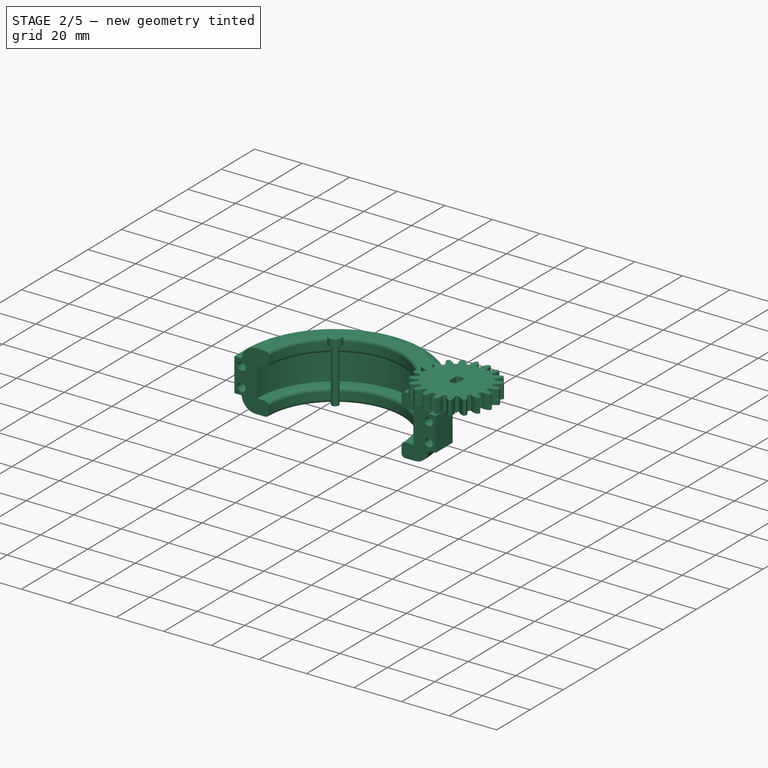
[diagram: stage 2 of 5 — iso view after this stage's code; geometry added in this stage tinted green]
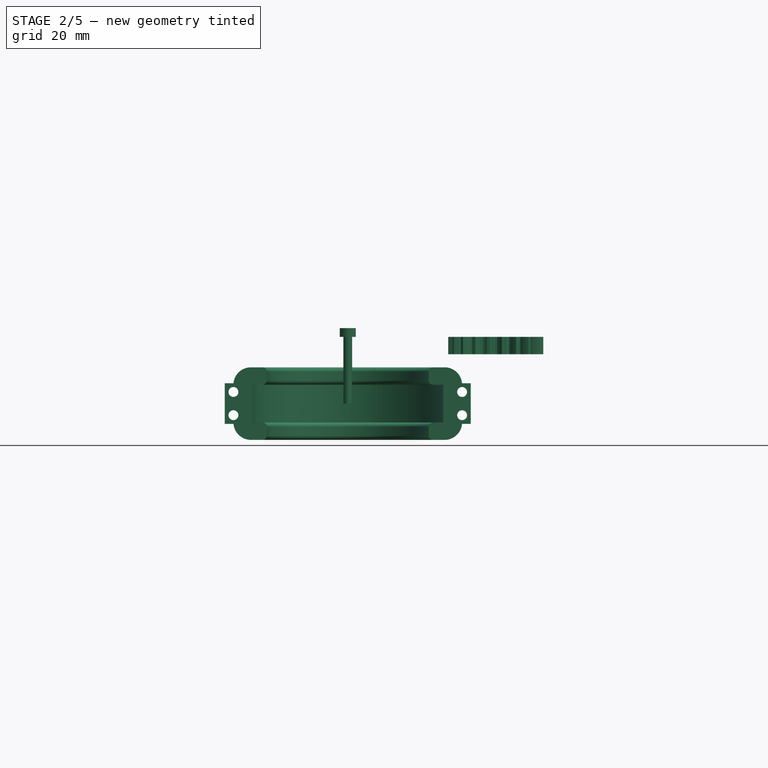
[diagram: stage 2 of 5 — front view after this stage's code; geometry added in this stage tinted green]
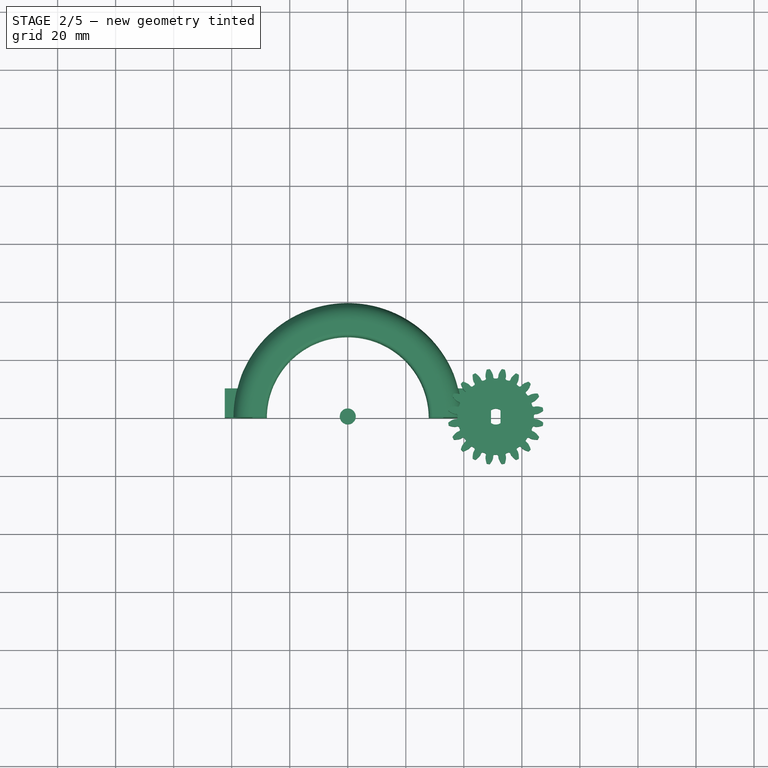
[diagram: stage 2 of 5 — top view after this stage's code; geometry added in this stage tinted green]
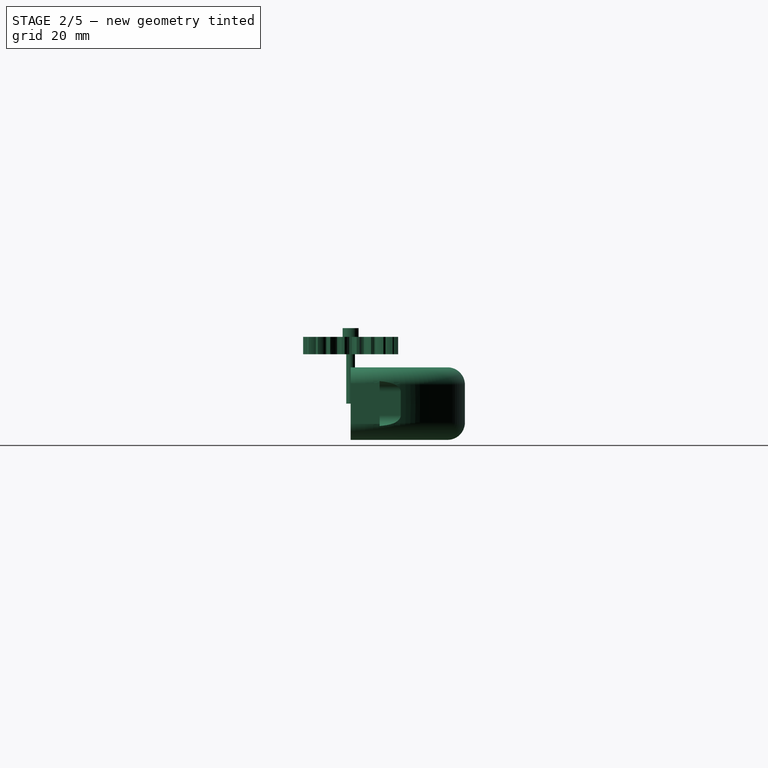
[diagram: stage 2 of 5 — right view after this stage's code; geometry added in this stage tinted green]
FEATURE [Sketcher::SketchObject] Sketch033
  FullyConstrained = true
  MapMode = 5
  Placement = pos=(0,0,0) rot=(0.57735,0.57735,0.57735;2.0944rad)
  Support = -> [YZ_Plane009]
  sketch-geometry (23):
    g0: LineSegment StartX=0 StartY=0 StartZ=0 EndX=33.4 EndY=0 EndZ=0
    g1: LineSegment StartX=33.4 StartY=0 StartZ=0 EndX=33.4 EndY=6.5 EndZ=0
    g2: LineSegment StartX=33.4 StartY=6.5 StartZ=0 EndX=29.9 EndY=6.5 EndZ=0
    g3: LineSegment StartX=28.4 StartY=8 StartZ=0 EndX=28.4 EndY=11 EndZ=0
    g4: LineSegment StartX=29.9 StartY=12.5 StartZ=0 EndX=33.4 EndY=12.5 EndZ=0
    g5: LineSegment StartX=39.4 StartY=6.5 StartZ=0 EndX=39.4 EndY=0 EndZ=0
    g6: ArcOfCircle CenterX=29.9 CenterY=8 CenterZ=0 NormalX=0 NormalY=0 NormalZ=1 AngleXU=0 Radius=1.5 StartAngle=3.14159 EndAngle=4.71239
    g7: GeomPoint X=28.4 Y=6.5 Z=0
    g8: ArcOfCircle CenterX=29.9 CenterY=11 CenterZ=0 NormalX=0 NormalY=0 NormalZ=1 AngleXU=0 Radius=1.5 StartAngle=1.5708 EndAngle=3.14159
    g9: GeomPoint X=28.4 Y=12.5 Z=0
    g10: ArcOfCircle CenterX=33.4 CenterY=6.5 CenterZ=0 NormalX=0 NormalY=0 NormalZ=1 AngleXU=0 Radius=6 StartAngle=0 EndAngle=1.5708
    g11: GeomPoint X=39.4 Y=12.5 Z=0
    g12: LineSegment StartX=39.4 StartY=0 StartZ=0 EndX=39.4 EndY=-6.5 EndZ=0
    g13: LineSegment StartX=33.4 StartY=-12.5 StartZ=0 EndX=29.9 EndY=-12.5 EndZ=0
    g14: LineSegment StartX=28.4 StartY=-11 StartZ=0 EndX=28.4 EndY=-8 EndZ=0
    g15: LineSegment StartX=29.9 StartY=-6.5 StartZ=0 EndX=33.4 EndY=-6.5 EndZ=0
    g16: LineSegment StartX=33.4 StartY=-6.5 StartZ=0 EndX=33.4 EndY=0 EndZ=0
    g17: ArcOfCircle CenterX=29.9 CenterY=-11 CenterZ=0 NormalX=0 NormalY=0 NormalZ=1 AngleXU=0 Radius=1.5 StartAngle=3.14159 EndAngle=4.71239
    g18: GeomPoint X=28.4 Y=-12.5 Z=0
    g19: ArcOfCircle CenterX=33.4 CenterY=-6.5 CenterZ=0 NormalX=0 NormalY=0 NormalZ=1 AngleXU=0 Radius=6 StartAngle=4.71239 EndAngle=6.28319
    g20: GeomPoint X=39.4 Y=-12.5 Z=0
    g21: ArcOfCircle CenterX=29.9 CenterY=-8 CenterZ=0 NormalX=0 NormalY=0 NormalZ=1 AngleXU=0 Radius=1.5 StartAngle=1.5708 EndAngle=3.14159
    g22: GeomPoint X=28.4 Y=-6.5 Z=0
  constraints (56):
    c: Coincident(g0,g-1)
    c: PointOnObject(g0,g-1)
    c: Distance(g0) = 33.4
    c: Coincident(g1,g0)
    c: Vertical(g1)
    c: Coincident(g2,g1)
    c: Horizontal(g2)
    c: Distance(g1) = 6.5
    c: Distance(g2,g7) = 5
    c: Vertical(g3)
    c: Distance(g9,g7) = 6
    c: Horizontal(g4)
    c: PointOnObject(g5,g-1)
    c: Vertical(g5)
    c: Distance(g5,g1) = 6
    c: PointOnObject(g7,g2)
    c: PointOnObject(g7,g3)
    c: Tangent(g2,g6) = 1.5708
    c: Tangent(g3,g6) = 1.5708
    c: PointOnObject(g9,g3)
    c: PointOnObject(g9,g4)
    c: Tangent(g3,g8) = 1.5708
    c: Tangent(g4,g8) = 1.5708
    c: PointOnObject(g11,g4)
    c: PointOnObject(g11,g5)
    c: Tangent(g4,g10) = 1.5708
    c: Tangent(g5,g10) = 1.5708
    c: Radius(g6) = 1.5
    c: Radius(g8) = 1.5
    c: Radius(g10) = 6
    c: Coincident(g12,g5)
    c: Vertical(g12)
    c: Horizontal(g13)
    c: Vertical(g14)
    c: Horizontal(g15)
    c: Coincident(g16,g15)
    c: Coincident(g16,g1)
    c: Vertical(g16)
    c: PointOnObject(g18,g14)
    c: PointOnObject(g18,g13)
    c: Tangent(g14,g17) = 1.5708
    c: Tangent(g13,g17) = 1.5708
    c: PointOnObject(g20,g13)
    c: PointOnObject(g20,g12)
    c: Tangent(g13,g19) = 1.5708
    c: Tangent(g12,g19) = 1.5708
    c: PointOnObject(g22,g14)
    c: PointOnObject(g22,g15)
    c: Tangent(g14,g21) = 1.5708
    c: Tangent(g15,g21) = 1.5708
    c: Equal(g5,g12)
    c: Equal(g1,g16)
    c: Equal(g10,g19)
    c: Equal(g8,g17)
    c: Equal(g3,g14)
    c: Equal(g2,g15)
FEATURE [PartDesign::Revolution] Revolution001
  Angle = 180
  Axis = (-2e-16,3e-16,1)
  Base = (0,0,0)
  Midplane = true
  Placement = pos=(0,0,0) rot=(0.57735,0.57735,0.57735;2.0944rad)
  Profile = -> Sketch033
  ReferenceAxis = -> Sketch033 [V_Axis]
FEATURE [Sketcher::SketchObject] Sketch034
  FullyConstrained = true
  MapMode = 5
  Placement = pos=(0,1e-16,0) rot=(0.57735,0.57735,-0.57735;2.0944rad)
  Support = -> [Revolution001]
  sketch-geometry (11):
    g0: Circle CenterX=4 CenterY=39.4 CenterZ=0 NormalX=0 NormalY=0 NormalZ=1 AngleXU=0 Radius=1.7
    g1: LineSegment StartX=4 StartY=39.4 StartZ=0 EndX=4 EndY=0 EndZ=0
    g2: LineSegment StartX=4 StartY=0 StartZ=0 EndX=0 EndY=0 EndZ=0
    g3: Circle CenterX=-4 CenterY=39.4 CenterZ=0 NormalX=0 NormalY=0 NormalZ=1 AngleXU=0 Radius=1.7
    g4: Circle CenterX=-4 CenterY=-39.4 CenterZ=0 NormalX=0 NormalY=0 NormalZ=1 AngleXU=0 Radius=1.7
    g5: Circle CenterX=4 CenterY=-39.4 CenterZ=0 NormalX=0 NormalY=0 NormalZ=1 AngleXU=0 Radius=1.7
    g6: LineSegment StartX=4 StartY=0 StartZ=0 EndX=4 EndY=-39.4 EndZ=0
    g7: LineSegment StartX=-4 StartY=39.4 StartZ=0 EndX=0 EndY=39.4 EndZ=0
    g8: LineSegment StartX=0 StartY=39.4 StartZ=0 EndX=4 EndY=39.4 EndZ=0
    g9: LineSegment StartX=-4 StartY=-39.4 StartZ=0 EndX=0 EndY=-39.4 EndZ=0
    g10: LineSegment StartX=0 StartY=-39.4 StartZ=0 EndX=4 EndY=-39.4 EndZ=0
  constraints (29):
    c: Diameter(g0) = 3.4
    c: Coincident(g1,g0)
    c: PointOnObject(g1,g-1)
    c: Vertical(g1)
    c: Coincident(g2,g1)
    c: Coincident(g2,g-1)
    c: Distance(g1) = 39.4
    c: Distance(g2) = 4
    c: Equal(g0,g3)
    c: Equal(g0,g5)
    c: Equal(g0,g4)
    c: Coincident(g6,g1)
    c: Coincident(g6,g5)
    c: Vertical(g6)
    c: Equal(g6,g1)
    c: Coincident(g7,g3)
    c: PointOnObject(g7,g-2)
    c: Horizontal(g7)
    c: Coincident(g8,g7)
    c: Coincident(g8,g0)
    c: Horizontal(g8)
    c: Coincident(g9,g4)
    c: PointOnObject(g9,g-2)
    c: Horizontal(g9)
    c: Coincident(g10,g9)
    c: Coincident(g10,g5)
    c: Horizontal(g10)
    c: Equal(g2,g9)
    c: Equal(g7,g2)
FEATURE [Sketcher::SketchObject] Sketch035
  FullyConstrained = true
  MapMode = 5
  Placement = pos=(0,1e-16,0) rot=(0.57735,0.57735,-0.57735;2.0944rad)
  Support = -> [Revolution001]
  sketch-geometry (11):
    g0: LineSegment StartX=7 StartY=36.4 StartZ=0 EndX=-7 EndY=36.4 EndZ=0
    g1: LineSegment StartX=-7 StartY=36.4 StartZ=0 EndX=-7 EndY=42.4 EndZ=0
    g2: LineSegment StartX=-7 StartY=42.4 StartZ=0 EndX=7 EndY=42.4 EndZ=0
    g3: LineSegment StartX=7 StartY=42.4 StartZ=0 EndX=7 EndY=36.4 EndZ=0
    g4: LineSegment StartX=-7 StartY=-36.4 StartZ=0 EndX=-7 EndY=-42.4 EndZ=0
    g5: LineSegment StartX=-7 StartY=-42.4 StartZ=0 EndX=7 EndY=-42.4 EndZ=0
    g6: LineSegment StartX=7 StartY=-42.4 StartZ=0 EndX=7 EndY=-36.4 EndZ=0
    g7: LineSegment StartX=7 StartY=-36.4 StartZ=0 EndX=-7 EndY=-36.4 EndZ=0
    g8: LineSegment StartX=-7 StartY=36.4 StartZ=0 EndX=-7 EndY=0 EndZ=0
    g9: LineSegment StartX=-7 StartY=0 StartZ=0 EndX=0 EndY=0 EndZ=0
    g10: LineSegment StartX=-7 StartY=0 StartZ=0 EndX=-7 EndY=-36.4 EndZ=0
  constraints (31):
    c: Horizontal(g0)
    c: Coincident(g1,g0)
    c: Vertical(g1)
    c: Coincident(g2,g1)
    c: Horizontal(g2)
    c: Coincident(g3,g2)
    c: Coincident(g3,g0)
    c: Vertical(g3)
    c: Distance(g0,g-2) = 7
    c: Distance(g2) = 14
    c: Distance(g3) = 6
    c: DistanceY(g-1,g0) = 36.4
    c: Vertical(g4)
    c: Coincident(g5,g4)
    c: Horizontal(g5)
    c: Coincident(g6,g5)
    c: Vertical(g6)
    c: Coincident(g7,g6)
    c: Coincident(g7,g4)
    c: Horizontal(g7)
    c: Equal(g3,g6)
    c: Equal(g2,g5)
    c: Coincident(g8,g0)
    c: PointOnObject(g8,g-1)
    c: Vertical(g8)
    c: Coincident(g9,g8)
    c: Coincident(g9,g-1)
    c: Coincident(g10,g8)
    c: Coincident(g10,g4)
    c: Vertical(g10)
    c: Equal(g8,g10)
FEATURE [PartDesign::Pad] Pad015
  BaseFeature = -> Revolution001
  Direction = (-3e-16,-1,1e-16)
  Length = 10
  Length2 = 10
  Placement = pos=(0,0,0) rot=(0.57735,0.57735,0.57735;2.0944rad)
  Profile = -> Sketch035
  ReferenceAxis = -> Sketch035 [N_Axis]
  Reversed = true
  Type = 0
FEATURE [PartDesign::Pocket] Pocket
  BaseFeature = -> Pad015
  Direction = (3e-16,1,-1e-16)
  Length = 5
  Length2 = 5
  Placement = pos=(0,0,0) rot=(0.57735,0.57735,0.57735;2.0944rad)
  Profile = -> Sketch034
  ReferenceAxis = -> Sketch034 [N_Axis]
  Type = 1
FEATURE [Sketcher::SketchObject] Sketch036
  FullyConstrained = true
  MapMode = 5
  Placement = pos=(0,0,0) rot=(1,0,0;1.5708rad)
  Support = -> [XZ_Plane010]
  sketch-geometry (6):
    g0: LineSegment StartX=1.5 StartY=0 StartZ=0 EndX=1.5 EndY=23 EndZ=0
    g1: LineSegment StartX=1.5 StartY=23 StartZ=0 EndX=2.75 EndY=23 EndZ=0
    g2: LineSegment StartX=2.75 StartY=23 StartZ=0 EndX=2.75 EndY=26 EndZ=0
    g3: LineSegment StartX=2.75 StartY=26 StartZ=0 EndX=0 EndY=26 EndZ=0
    g4: LineSegment StartX=1.5 StartY=0 StartZ=0 EndX=0 EndY=0 EndZ=0
    g5: LineSegment StartX=0 StartY=26 StartZ=0 EndX=0 EndY=0 EndZ=0
  constraints (17):
    c: PointOnObject(g0,g-1)
    c: Vertical(g0)
    c: DistanceX(g-1,g0) = 1.5
    c: Coincident(g1,g0)
    c: Horizontal(g1)
    c: Coincident(g2,g1)
    c: Vertical(g2)
    c: Coincident(g3,g2)
    c: Horizontal(g3)
    c: Distance(g2) = 3
    c: PointOnObject(g3,g-2)
    c: Coincident(g4,g0)
    c: Coincident(g4,g-1)
    c: Coincident(g5,g3)
    c: Coincident(g5,g4)
    c: Distance(g3) = 2.75
    c: Distance(g3,g4) = 26
FEATURE [PartDesign::Revolution] Revolution002
  Angle = 360
  Axis = (0,-2e-16,1)
  Base = (0,0,0)
  Placement = pos=(0,0,0) rot=(1,0,0;1.5708rad)
  Profile = -> Sketch036
  ReferenceAxis = -> Sketch036 [V_Axis]
  Reversed = true
FEATURE [PartDesign::Body] Body009  label="Body009: Screw (M3 cut)"
  Group = -> [Sketch036,Revolution002]
  Origin = -> Origin010
  Placement = pos=(-39.5,-12,3.5) rot=(-1,0,0;1.5708rad)
  Tip = -> Revolution002
FEATURE [Sketcher::SketchObject] Sketch037
  FullyConstrained = true
  MapMode = 5
  Placement = pos=(4.4e-15,10,-1.1e-15) rot=(0.57735,0.57735,0.57735;4.18879rad)
  Support = -> [Pocket]
  sketch-geometry (12):
    g0: LineSegment StartX=-4 StartY=0 StartZ=0 EndX=-4 EndY=39.4 EndZ=0
    g1: LineSegment StartX=-4 StartY=43.4 StartZ=0 EndX=4 EndY=43.4 EndZ=0
    g2: LineSegment StartX=-4 StartY=35.4 StartZ=0 EndX=4 EndY=35.4 EndZ=0
    g3: ArcOfCircle CenterX=-4 CenterY=39.4 CenterZ=0 NormalX=0 NormalY=0 NormalZ=1 AngleXU=0 Radius=4 StartAngle=1.5708 EndAngle=4.71239
    g4: ArcOfCircle CenterX=4 CenterY=39.4 CenterZ=0 NormalX=0 NormalY=0 NormalZ=1 AngleXU=0 Radius=4 StartAngle=4.71239 EndAngle=7.85398
    g5: LineSegment StartX=-4 StartY=0 StartZ=0 EndX=0 EndY=0 EndZ=0
    g6: LineSegment StartX=-4 StartY=0 StartZ=0 EndX=-4 EndY=-39.4 EndZ=0
    g7: LineSegment StartX=-4 StartY=-35.4 StartZ=0 EndX=4 EndY=-35.4 EndZ=0
    g8: LineSegment StartX=-4 StartY=-43.4 StartZ=0 EndX=4 EndY=-43.4 EndZ=0
    g9: ArcOfCircle CenterX=4 CenterY=-39.4 CenterZ=0 NormalX=0 NormalY=0 NormalZ=1 AngleXU=0 Radius=4 StartAngle=4.71239 EndAngle=7.85398
    g10: ArcOfCircle CenterX=-4 CenterY=-39.4 CenterZ=0 NormalX=0 NormalY=0 NormalZ=1 AngleXU=0 Radius=4 StartAngle=1.5708 EndAngle=4.71239
    g11: LineSegment StartX=-4 StartY=-39.4 StartZ=0 EndX=4 EndY=-39.4 EndZ=0
  constraints (33):
    c: PointOnObject(g0,g-1)
    c: Vertical(g0)
    c: Distance(g0) = 39.4
    c: Horizontal(g1)
    c: Horizontal(g2)
    c: Coincident(g4,g2)
    c: Coincident(g4,g1)
    c: Equal(g3,g4)
    c: Equal(g1,g2)
    c: Tangent(g3,g1) = 1.5708
    c: Distance(g1,g2) = 8
    c: Tangent(g3,g2) = -1.5708
    c: Coincident(g3,g0)
    c: Distance(g4,g3) = 8
    c: Coincident(g5,g0)
    c: Coincident(g5,g-1)
    c: Distance(g5) = 4
    c: Coincident(g6,g0)
    c: Vertical(g6)
    c: Equal(g0,g6)
    c: Horizontal(g7)
    c: Horizontal(g8)
    c: Coincident(g9,g8)
    c: Coincident(g10,g7)
    c: Equal(g7,g8)
    c: Tangent(g9,g7) = 1.5708
    c: Tangent(g10,g8) = -1.5708
    c: Coincident(g10,g6)
    c: Coincident(g11,g10)
    c: Coincident(g11,g9)
    c: Horizontal(g11)
    c: Distance(g11) = 8
    c: Equal(g9,g4)
FEATURE [PartDesign::Pocket] Pocket001
  BaseFeature = -> Pocket
  Direction = (-4e-16,-1,6e-16)
  Length = 6
  Length2 = 5
  Placement = pos=(0,0,0) rot=(0.57735,0.57735,0.57735;2.0944rad)
  Profile = -> Sketch037
  ReferenceAxis = -> Sketch037 [N_Axis]
  Reversed = true
  Type = 1
FEATURE [Sketcher::SketchObject] Sketch054
  FullyConstrained = true
  MapMode = 5
  Placement = pos=(0,1e-16,0) rot=(0.57735,0.57735,-0.57735;2.0944rad)
  Support = -> [Revolution004]
  sketch-geometry (11):
    g0: Circle CenterX=4 CenterY=39.4 CenterZ=0 NormalX=0 NormalY=0 NormalZ=1 AngleXU=0 Radius=1.7
    g1: LineSegment StartX=4 StartY=39.4 StartZ=0 EndX=4 EndY=0 EndZ=0
    g2: LineSegment StartX=4 StartY=0 StartZ=0 EndX=0 EndY=0 EndZ=0
    g3: Circle CenterX=-4 CenterY=39.4 CenterZ=0 NormalX=0 NormalY=0 NormalZ=1 AngleXU=0 Radius=1.7
    g4: Circle CenterX=-4 CenterY=-39.4 CenterZ=0 NormalX=0 NormalY=0 NormalZ=1 AngleXU=0 Radius=1.7
    g5: Circle CenterX=4 CenterY=-39.4 CenterZ=0 NormalX=0 NormalY=0 NormalZ=1 AngleXU=0 Radius=1.7
    g6: LineSegment StartX=4 StartY=0 StartZ=0 EndX=4 EndY=-39.4 EndZ=0
    g7: LineSegment StartX=-4 StartY=39.4 StartZ=0 EndX=0 EndY=39.4 EndZ=0
    g8: LineSegment StartX=0 StartY=39.4 StartZ=0 EndX=4 EndY=39.4 EndZ=0
    g9: LineSegment StartX=-4 StartY=-39.4 StartZ=0 EndX=0 EndY=-39.4 EndZ=0
    g10: LineSegment StartX=0 StartY=-39.4 StartZ=0 EndX=4 EndY=-39.4 EndZ=0
  constraints (29):
    c: Diameter(g0) = 3.4
    c: Coincident(g1,g0)
    c: PointOnObject(g1,g-1)
    c: Vertical(g1)
    c: Coincident(g2,g1)
    c: Coincident(g2,g-1)
    c: Distance(g1) = 39.4
    c: Distance(g2) = 4
    c: Equal(g0,g3)
    c: Equal(g0,g5)
    c: Equal(g0,g4)
    c: Coincident(g6,g1)
    c: Coincident(g6,g5)
    c: Vertical(g6)
    c: Equal(g6,g1)
    c: Coincident(g7,g3)
    c: PointOnObject(g7,g-2)
    c: Horizontal(g7)
    c: Coincident(g8,g7)
    c: Coincident(g8,g0)
    c: Horizontal(g8)
    c: Coincident(g9,g4)
    c: PointOnObject(g9,g-2)
    c: Horizontal(g9)
    c: Coincident(g10,g9)
    c: Coincident(g10,g5)
    c: Horizontal(g10)
    c: Equal(g2,g9)
    c: Equal(g7,g2)
FEATURE [Sketcher::SketchObject] Sketch055
  FullyConstrained = true
  MapMode = 5
  Placement = pos=(0,1e-16,0) rot=(0.57735,0.57735,-0.57735;2.0944rad)
  Support = -> [Revolution004]
  sketch-geometry (11):
    g0: LineSegment StartX=7 StartY=36.4 StartZ=0 EndX=-7 EndY=36.4 EndZ=0
    g1: LineSegment StartX=-7 StartY=36.4 StartZ=0 EndX=-7 EndY=42.4 EndZ=0
    g2: LineSegment StartX=-7 StartY=42.4 StartZ=0 EndX=7 EndY=42.4 EndZ=0
    g3: LineSegment StartX=7 StartY=42.4 StartZ=0 EndX=7 EndY=36.4 EndZ=0
    g4: LineSegment StartX=-7 StartY=-36.4 StartZ=0 EndX=-7 EndY=-42.4 EndZ=0
    g5: LineSegment StartX=-7 StartY=-42.4 StartZ=0 EndX=7 EndY=-42.4 EndZ=0
    g6: LineSegment StartX=7 StartY=-42.4 StartZ=0 EndX=7 EndY=-36.4 EndZ=0
    g7: LineSegment StartX=7 StartY=-36.4 StartZ=0 EndX=-7 EndY=-36.4 EndZ=0
    g8: LineSegment StartX=-7 StartY=36.4 StartZ=0 EndX=-7 EndY=0 EndZ=0
    g9: LineSegment StartX=-7 StartY=0 StartZ=0 EndX=0 EndY=0 EndZ=0
    g10: LineSegment StartX=-7 StartY=0 StartZ=0 EndX=-7 EndY=-36.4 EndZ=0
  constraints (31):
    c: Horizontal(g0)
    c: Coincident(g1,g0)
    c: Vertical(g1)
    c: Coincident(g2,g1)
    c: Horizontal(g2)
    c: Coincident(g3,g2)
    c: Coincident(g3,g0)
    c: Vertical(g3)
    c: Distance(g0,g-2) = 7
    c: Distance(g2) = 14
    c: Distance(g3) = 6
    c: DistanceY(g-1,g0) = 36.4
    c: Vertical(g4)
    c: Coincident(g5,g4)
    c: Horizontal(g5)
    c: Coincident(g6,g5)
    c: Vertical(g6)
    c: Coincident(g7,g6)
    c: Coincident(g7,g4)
    c: Horizontal(g7)
    c: Equal(g3,g6)
    c: Equal(g2,g5)
    c: Coincident(g8,g0)
    c: PointOnObject(g8,g-1)
    c: Vertical(g8)
    c: Coincident(g9,g8)
    c: Coincident(g9,g-1)
    c: Coincident(g10,g8)
    c: Coincident(g10,g4)
    c: Vertical(g10)
    c: Equal(g8,g10)
FEATURE [PartDesign::Pad] Pad024
  BaseFeature = -> Revolution004
  Direction = (-3e-16,-1,1e-16)
  Length = 10
  Length2 = 10
  Placement = pos=(0,0,0) rot=(0.57735,0.57735,0.57735;2.0944rad)
  Profile = -> Sketch055
  ReferenceAxis = -> Sketch055 [N_Axis]
  Reversed = true
  Type = 0
FEATURE [PartDesign::Pocket] Pocket003
  BaseFeature = -> Pad024
  Direction = (3e-16,1,-1e-16)
  Length = 5
  Length2 = 5
  Placement = pos=(0,0,0) rot=(0.57735,0.57735,0.57735;2.0944rad)
  Profile = -> Sketch054
  ReferenceAxis = -> Sketch054 [N_Axis]
  Type = 1
FEATURE [Sketcher::SketchObject] Sketch056
  FullyConstrained = true
  MapMode = 5
  Placement = pos=(4.4e-15,10,-1.1e-15) rot=(0.57735,0.57735,0.57735;4.18879rad)
  Support = -> [Pocket003]
  sketch-geometry (12):
    g0: LineSegment StartX=-4 StartY=0 StartZ=0 EndX=-4 EndY=39.4 EndZ=0
    g1: LineSegment StartX=-4 StartY=43.4 StartZ=0 EndX=4 EndY=43.4 EndZ=0
    g2: LineSegment StartX=-4 StartY=35.4 StartZ=0 EndX=4 EndY=35.4 EndZ=0
    g3: ArcOfCircle CenterX=-4 CenterY=39.4 CenterZ=0 NormalX=0 NormalY=0 NormalZ=1 AngleXU=0 Radius=4 StartAngle=1.5708 EndAngle=4.71239
    g4: ArcOfCircle CenterX=4 CenterY=39.4 CenterZ=0 NormalX=0 NormalY=0 NormalZ=1 AngleXU=0 Radius=4 StartAngle=4.71239 EndAngle=7.85398
    g5: LineSegment StartX=-4 StartY=0 StartZ=0 EndX=0 EndY=0 EndZ=0
    g6: LineSegment StartX=-4 StartY=0 StartZ=0 EndX=-4 EndY=-39.4 EndZ=0
    g7: LineSegment StartX=-4 StartY=-35.4 StartZ=0 EndX=4 EndY=-35.4 EndZ=0
    g8: LineSegment StartX=-4 StartY=-43.4 StartZ=0 EndX=4 EndY=-43.4 EndZ=0
    g9: ArcOfCircle CenterX=4 CenterY=-39.4 CenterZ=0 NormalX=0 NormalY=0 NormalZ=1 AngleXU=0 Radius=4 StartAngle=4.71239 EndAngle=7.85398
    g10: ArcOfCircle CenterX=-4 CenterY=-39.4 CenterZ=0 NormalX=0 NormalY=0 NormalZ=1 AngleXU=0 Radius=4 StartAngle=1.5708 EndAngle=4.71239
    g11: LineSegment StartX=-4 StartY=-39.4 StartZ=0 EndX=4 EndY=-39.4 EndZ=0
  constraints (33):
    c: PointOnObject(g0,g-1)
    c: Vertical(g0)
    c: Distance(g0) = 39.4
    c: Horizontal(g1)
    c: Horizontal(g2)
    c: Coincident(g4,g2)
    c: Coincident(g4,g1)
    c: Equal(g3,g4)
    c: Equal(g1,g2)
    c: Tangent(g3,g1) = 1.5708
    c: Distance(g1,g2) = 8
    c: Tangent(g3,g2) = -1.5708
    c: Coincident(g3,g0)
    c: Distance(g4,g3) = 8
    c: Coincident(g5,g0)
    c: Coincident(g5,g-1)
    c: Distance(g5) = 4
    c: Coincident(g6,g0)
    c: Vertical(g6)
    c: Equal(g0,g6)
    c: Horizontal(g7)
    c: Horizontal(g8)
    c: Coincident(g9,g8)
    c: Coincident(g10,g7)
    c: Equal(g7,g8)
    c: Tangent(g9,g7) = 1.5708
    c: Tangent(g10,g8) = -1.5708
    c: Coincident(g10,g6)
    c: Coincident(g11,g10)
    c: Coincident(g11,g9)
    c: Horizontal(g11)
    c: Distance(g11) = 8
    c: Equal(g9,g4)
FEATURE [PartDesign::Pocket] Pocket004
  BaseFeature = -> Pocket003
  Direction = (-4e-16,-1,6e-16)
  Length = 6
  Length2 = 5
  Placement = pos=(0,0,0) rot=(0.57735,0.57735,0.57735;2.0944rad)
  Profile = -> Sketch056
  ReferenceAxis = -> Sketch056 [N_Axis]
  Reversed = true
  Type = 1
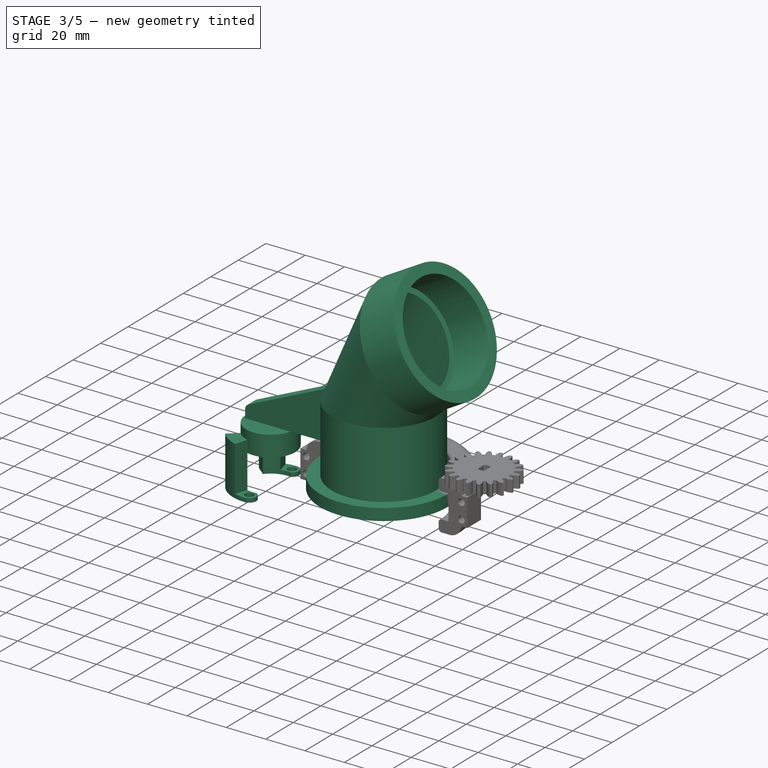
[diagram: stage 3 of 5 — iso view after this stage's code; geometry added in this stage tinted green]
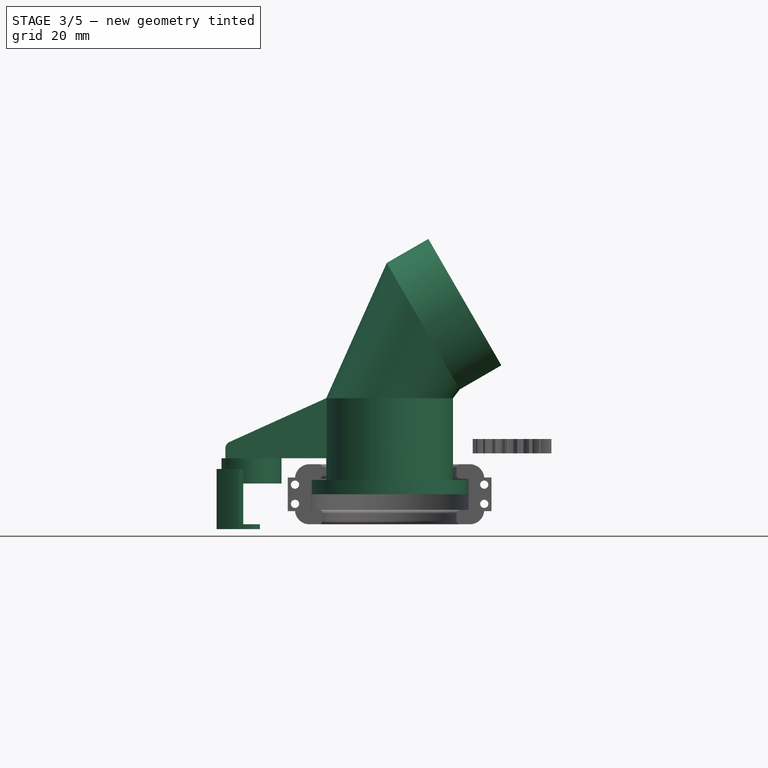
[diagram: stage 3 of 5 — front view after this stage's code; geometry added in this stage tinted green]
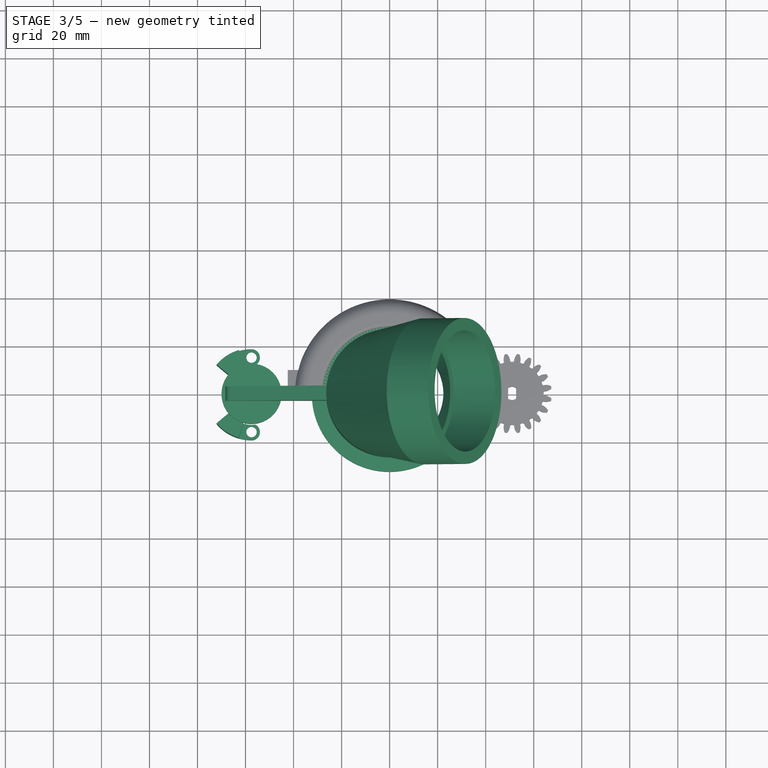
[diagram: stage 3 of 5 — top view after this stage's code; geometry added in this stage tinted green]
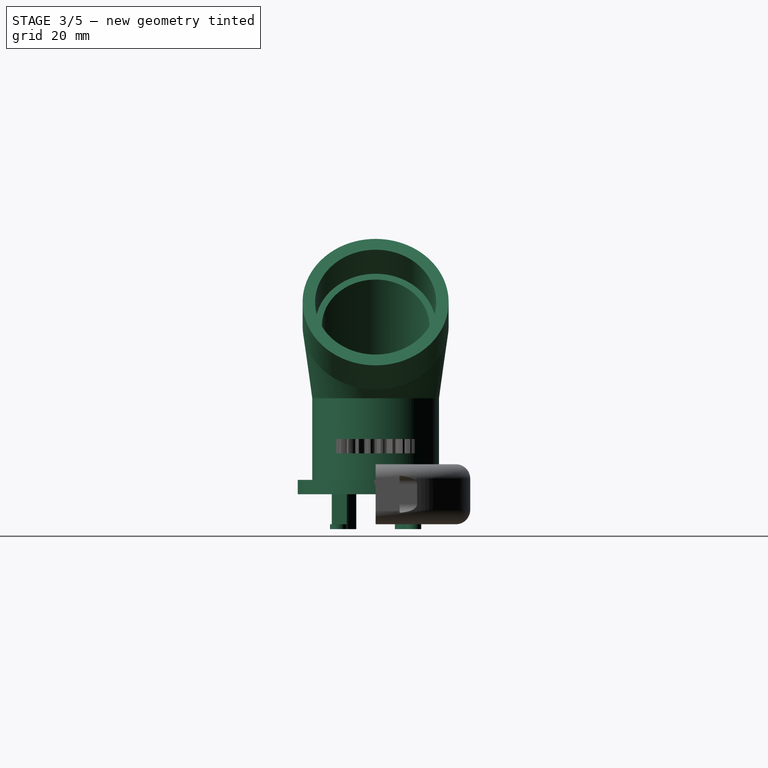
[diagram: stage 3 of 5 — right view after this stage's code; geometry added in this stage tinted green]
FEATURE [PartDesign::Body] Body008  label="Body008: Half clamp"
  Group = -> [Sketch033,Revolution001,Sketch035,Pad015,Sketch034,Pocket,Sketch037,Pocket001]
  Origin = -> Origin009
  Placement = pos=(0,0,-0.5) rot=(0,0,1;0rad)
  Tip = -> Pocket001
FEATURE [Sketcher::SketchObject] Sketch038
  FullyConstrained = true
  MapMode = 5
  Support = -> [XY_Plane011]
  sketch-geometry (3):
    g0: Circle CenterX=0 CenterY=0 CenterZ=0 NormalX=0 NormalY=0 NormalZ=1 AngleXU=0 Radius=26.4
    g1: Circle CenterX=0 CenterY=0 CenterZ=0 NormalX=0 NormalY=0 NormalZ=1 AngleXU=0 Radius=22.4
    g2: LineSegment StartX=22.4 StartY=0 StartZ=0 EndX=26.4 EndY=0 EndZ=0
  constraints (8):
    c: Coincident(g0,g-1)
    c: Coincident(g1,g0)
    c: PointOnObject(g2,g1)
    c: PointOnObject(g2,g0)
    c: Horizontal(g2)
    c: Distance(g2) = 4
    c: PointOnObject(g2,g-1)
    c: Diameter(g1) = 44.8
FEATURE [Sketcher::SketchObject] Sketch039  label="Sketch copy001"
  AttachmentOffset = pos=(0,0,40) rot=(0,0,1;0rad)
  FullyConstrained = true
  MapMode = 5
  Placement = pos=(0,0,40) rot=(0,0,1;0rad)
  Support = -> [XY_Plane011]
  sketch-geometry (3):
    g0: Circle CenterX=0 CenterY=0 CenterZ=0 NormalX=0 NormalY=0 NormalZ=1 AngleXU=0 Radius=26.4
    g1: Circle CenterX=0 CenterY=0 CenterZ=0 NormalX=0 NormalY=0 NormalZ=1 AngleXU=0 Radius=22.4
    g2: LineSegment StartX=22.4 StartY=0 StartZ=0 EndX=26.4 EndY=0 EndZ=0
  constraints (8):
    c: Coincident(g0,g-1)
    c: Coincident(g1,g0)
    c: PointOnObject(g2,g1)
    c: PointOnObject(g2,g0)
    c: Horizontal(g2)
    c: Distance(g2) = 4
    c: PointOnObject(g2,g-1)
    c: Diameter(g1) = 44.8
FEATURE [PartDesign::AdditiveLoft] AdditiveLoft002
  Closed = false
  Profile = -> Sketch038
  Ruled = false
  Sections = -> [Sketch039]
FEATURE [Sketcher::SketchObject] Sketch040  label="Sketch copy 003"
  AttachmentOffset = pos=(14,0,30) rot=(0,1,0;1.0472rad)
  FullyConstrained = true
  MapMode = 5
  Placement = pos=(14,0,70) rot=(0,1,0;1.0472rad)
  Support = -> [AdditiveLoft002]
  sketch-geometry (3):
    g0: Circle CenterX=0 CenterY=0 CenterZ=0 NormalX=0 NormalY=0 NormalZ=1 AngleXU=0 Radius=30.4
    g1: Circle CenterX=0 CenterY=0 CenterZ=0 NormalX=0 NormalY=0 NormalZ=1 AngleXU=0 Radius=22.4
    g2: LineSegment StartX=22.4 StartY=0 StartZ=0 EndX=30.4 EndY=0 EndZ=0
  constraints (8):
    c: Coincident(g0,g-1)
    c: Coincident(g1,g0)
    c: PointOnObject(g2,g1)
    c: PointOnObject(g2,g0)
    c: Horizontal(g2)
    c: Distance(g2) = 8
    c: PointOnObject(g2,g-1)
    c: Diameter(g1) = 44.8
FEATURE [PartDesign::AdditiveLoft] AdditiveLoft003
  BaseFeature = -> AdditiveLoft002
  Closed = false
  Profile = -> AdditiveLoft002 [Face3]
  Ruled = false
  Sections = -> [Sketch040]
FEATURE [PartDesign::Plane] DatumPlane001
  Length = 85.9754
  MapMode = 11
  Placement = pos=(14,0,70) rot=(0.447214,0.447214,0.774597;1.82348rad)
  ResizeMode = 0
  Support = -> [AdditiveLoft003]
  Width = 194.168
FEATURE [Sketcher::SketchObject] Sketch041
  FullyConstrained = true
  MapMode = 5
  Placement = pos=(14,0,70) rot=(0.447214,0.447214,0.774597;1.82348rad)
  Support = -> [DatumPlane001]
  sketch-geometry (2):
    g0: Circle CenterX=0 CenterY=0 CenterZ=0 NormalX=0 NormalY=0 NormalZ=1 AngleXU=0 Radius=25.2
    g1: Circle CenterX=0 CenterY=0 CenterZ=0 NormalX=0 NormalY=0 NormalZ=1 AngleXU=0 Radius=30.4
  constraints (4):
    c: Coincident(g0,g-1)
    c: Diameter(g0) = 50.4
    c: Coincident(g1,g0)
    c: Diameter(g1) = 60.8
FEATURE [PartDesign::Pad] Pad016
  BaseFeature = -> AdditiveLoft003
  Direction = (0.866025,2e-16,0.5)
  Length = 20
  Length2 = 10
  Profile = -> Sketch041
  ReferenceAxis = -> Sketch041 [N_Axis]
  Type = 0
FEATURE [Sketcher::SketchObject] Sketch042
  FullyConstrained = true
  MapMode = 5
  Placement = pos=(0,0,0) rot=(0.57735,0.57735,0.57735;2.0944rad)
  Support = -> [YZ_Plane011]
  sketch-geometry (5):
    g0: LineSegment StartX=26.4 StartY=0 StartZ=0 EndX=0 EndY=0 EndZ=0
    g1: LineSegment StartX=26.4 StartY=0 StartZ=0 EndX=32.4 EndY=0 EndZ=0
    g2: LineSegment StartX=32.4 StartY=0 StartZ=0 EndX=32.4 EndY=6 EndZ=0
    g3: LineSegment StartX=26.4 StartY=0 StartZ=0 EndX=26.4 EndY=6 EndZ=0
    g4: LineSegment StartX=26.4 StartY=6 StartZ=0 EndX=32.4 EndY=6 EndZ=0
  constraints (14):
    c: PointOnObject(g0,g-1)
    c: Coincident(g0,g-1)
    c: Distance(g0) = 26.4
    c: Coincident(g1,g0)
    c: PointOnObject(g1,g-1)
    c: Distance(g1) = 6
    c: Coincident(g2,g1)
    c: Vertical(g2)
    c: Distance(g2) = 6
    c: Coincident(g3,g1)
    c: Vertical(g3)
    c: Coincident(g4,g3)
    c: Coincident(g4,g2)
    c: Horizontal(g4)
FEATURE [PartDesign::Revolution] Revolution003
  Angle = 360
  Axis = (-2e-16,3e-16,1)
  Base = (0,0,0)
  BaseFeature = -> Pad016
  Profile = -> Sketch042
  ReferenceAxis = -> Sketch042 [V_Axis]
  Reversed = true
FEATURE [PartDesign::Body] Body  label="Body: Top"
  Group = -> [Sketch,Sketch022,Sketch023,AdditiveLoft,AdditiveLoft001,DatumPlane,Sketch027,Pad013,Sketch032,Revolution,Sketch044,Pad018]
  Origin = -> Origin
  Tip = -> Pad018
FEATURE [Sketcher::SketchObject] Sketch049
  FullyConstrained = true
  MapMode = 5
  Placement = pos=(0,0,0) rot=(1,0,0;1.5708rad)
  Support = -> [XZ_Plane011]
  sketch-geometry (8):
    g0: LineSegment StartX=-26.4 StartY=15 StartZ=0 EndX=-68.4 EndY=15 EndZ=0
    g1: LineSegment StartX=-68.4 StartY=15 StartZ=0 EndX=-68.4 EndY=19.0644 EndZ=0
    g2: LineSegment StartX=-66.6365 StartY=21.7978 StartZ=0 EndX=-26.4 EndY=40 EndZ=0
    g3: ArcOfCircle CenterX=-65.4 CenterY=19.0644 CenterZ=0 NormalX=0 NormalY=0 NormalZ=1 AngleXU=0 Radius=3 StartAngle=1.99563 EndAngle=3.14159
    g4: GeomPoint X=-68.4 Y=21 Z=0
    g5: LineSegment StartX=-26.4 StartY=15 StartZ=0 EndX=-22.4 EndY=15 EndZ=0
    g6: LineSegment StartX=-22.4 StartY=15 StartZ=0 EndX=-22.4 EndY=40 EndZ=0
    g7: LineSegment StartX=-22.4 StartY=40 StartZ=0 EndX=-26.4 EndY=40 EndZ=0
  constraints (22):
    c: Horizontal(g0)
    c: Coincident(g1,g0)
    c: Vertical(g1)
    c: DistanceX(g0,g-1) = 26.4
    c: DistanceY(g-1,g0) = 15
    c: Distance(g1,g4) = 6
    c: Distance(g0) = 42
    c: PointOnObject(g4,g1)
    c: PointOnObject(g4,g2)
    c: Tangent(g1,g3) = 1.5708
    c: Tangent(g2,g3) = 1.5708
    c: Radius(g3) = 3
    c: Coincident(g5,g0)
    c: Horizontal(g5)
    c: Coincident(g6,g5)
    c: Vertical(g6)
    c: Coincident(g7,g6)
    c: Coincident(g7,g2)
    c: Horizontal(g7)
    c: Distance(g6) = 25
    c: Distance(g7) = 4
    c: Equal(g7,g5)
FEATURE [PartDesign::Pad] Pad019
  BaseFeature = -> Revolution003
  Direction = (0,-1,-2e-16)
  Length = 6
  Length2 = 10
  Midplane = true
  Profile = -> Sketch049
  ReferenceAxis = -> Sketch049 [N_Axis]
  Type = 0
FEATURE [Sketcher::SketchObject] Sketch050
  FullyConstrained = true
  MapMode = 5
  Placement = pos=(0,-3.3e-15,15) rot=(1,0,0;3.14159rad)
  Support = -> [Pad019]
  sketch-geometry (3):
    g0: Circle CenterX=-57.5 CenterY=0 CenterZ=0 NormalX=0 NormalY=0 NormalZ=1 AngleXU=0 Radius=12.5
    g1: LineSegment StartX=0 StartY=0 StartZ=0 EndX=-51 EndY=0 EndZ=0
    g2: LineSegment StartX=-57.5 StartY=0 StartZ=0 EndX=-51 EndY=0 EndZ=0
  constraints (8):
    c: PointOnObject(g0,g-1)
    c: Coincident(g1,g-1)
    c: PointOnObject(g1,g-1)
    c: Distance(g1) = 51
    c: Coincident(g2,g0)
    c: Coincident(g2,g1)
    c: Distance(g2) = 6.5
    c: Diameter(g0) = 25
FEATURE [PartDesign::Pad] Pad020
  BaseFeature = -> Pad019
  Direction = (0,2e-16,-1)
  Length = 10.5
  Length2 = 10
  Profile = -> Sketch050
  ReferenceAxis = -> Sketch050 [N_Axis]
  Type = 0
FEATURE [Sketcher::SketchObject] Sketch051
  FullyConstrained = true
  MapMode = 5
  Placement = pos=(0,-7e-16,4.5) rot=(1,0,0;3.14159rad)
  Support = -> [Pad020]
  sketch-geometry (14):
    g0: ArcOfCircle CenterX=-57.5 CenterY=0 CenterZ=0 NormalX=0 NormalY=0 NormalZ=1 AngleXU=0 Radius=12.5 StartAngle=3.83972 EndAngle=4.43314
    g1: LineSegment StartX=0 StartY=0 StartZ=0 EndX=-51 EndY=0 EndZ=0
    g2: LineSegment StartX=-51 StartY=0 StartZ=0 EndX=-57.5 EndY=0 EndZ=0
    g3: ArcOfCircle CenterX=-57.5 CenterY=0 CenterZ=0 NormalX=0 NormalY=0 NormalZ=1 AngleXU=0 Radius=19 StartAngle=3.83972 EndAngle=4.43314
    g4: LineSegment StartX=-67.0756 StartY=8.03485 StartZ=0 EndX=-72.0548 EndY=12.213 EndZ=0
    g5: LineSegment StartX=-60.9455 StartY=12.0158 StartZ=0 EndX=-62.7371 EndY=18.264 EndZ=0
    g6: LineSegment StartX=-67.0756 StartY=-8.03485 StartZ=0 EndX=-72.0548 EndY=-12.213 EndZ=0
    g7: LineSegment StartX=-60.9455 StartY=-12.0158 StartZ=0 EndX=-62.7371 EndY=-18.264 EndZ=0
    g8: ArcOfCircle CenterX=-57.5 CenterY=0 CenterZ=0 NormalX=0 NormalY=0 NormalZ=1 AngleXU=0 Radius=12.5 StartAngle=1.85005 EndAngle=2.44346
    g9: ArcOfCircle CenterX=-57.5 CenterY=0 CenterZ=0 NormalX=0 NormalY=0 NormalZ=1 AngleXU=0 Radius=19 StartAngle=1.85005 EndAngle=2.44346
    g10: LineSegment StartX=-60.9455 StartY=12.0158 StartZ=0 EndX=-57.5 EndY=0 EndZ=0
    g11: LineSegment StartX=-67.0756 StartY=8.03485 StartZ=0 EndX=-57.5 EndY=0 EndZ=0
    g12: LineSegment StartX=-57.5 StartY=0 StartZ=0 EndX=-67.0756 EndY=-8.03485 EndZ=0
    g13: LineSegment StartX=-57.5 StartY=0 StartZ=0 EndX=-60.9455 EndY=-12.0158 EndZ=0
  constraints (38):
    c: PointOnObject(g0,g-1)
    c: Coincident(g1,g-1)
    c: PointOnObject(g1,g-1)
    c: Distance(g1) = 51
    c: Coincident(g2,g1)
    c: Coincident(g2,g0)
    c: Distance(g2) = 6.5
    c: Diameter(g0) = 25
    c: Coincident(g3,g0)
    c: Diameter(g3) = 38
    c: Angle(g2,g5) = 1.85005
    c: Angle(g-1,g4) = 2.44346
    c: Angle(g7,g2) = 1.85005
    c: Angle(g6,g1) = 2.44346
    c: Coincident(g9,g4)
    c: Coincident(g3,g6)
    c: Equal(g0,g8)
    c: Coincident(g0,g8)
    c: Equal(g3,g9)
    c: Coincident(g9,g5)
    c: Coincident(g3,g9)
    c: Coincident(g3,g7)
    c: Coincident(g6,g0)
    c: Coincident(g7,g0)
    c: Coincident(g5,g8)
    c: Coincident(g4,g8)
    c: Coincident(g10,g5)
    c: Coincident(g10,g0)
    c: Coincident(g11,g4)
    c: Coincident(g11,g0)
    c: Coincident(g12,g0)
    c: Coincident(g12,g0)
    c: Coincident(g13,g0)
    c: Coincident(g13,g0)
    c: Parallel(g5,g10)
    c: Parallel(g4,g11)
    c: Parallel(g12,g6)
    c: Parallel(g13,g7)
FEATURE [PartDesign::Pad] Pad021
  BaseFeature = -> Pad020
  Direction = (0,2e-16,-1)
  Length = 6
  Length2 = 10
  Profile = -> Sketch051
  ReferenceAxis = -> Sketch051 [N_Axis]
  Reversed = true
  Type = 0
FEATURE [PartDesign::Pad] Pad022
  BaseFeature = -> Pad021
  Direction = (0,2e-16,-1)
  Length = 17
  Length2 = 10
  Profile = -> Pad021 [Face32,Face33]
  Type = 0
FEATURE [Sketcher::SketchObject] Sketch052
  FullyConstrained = true
  MapMode = 5
  Placement = pos=(0,1.9e-15,-12.5) rot=(1,0,0;3.14159rad)
  Support = -> [Pad022]
  sketch-geometry (19):
    g0: ArcOfCircle CenterX=-57.5 CenterY=0 CenterZ=0 NormalX=0 NormalY=0 NormalZ=1 AngleXU=0 Radius=19 StartAngle=3.83972 EndAngle=4.71239
    g1: LineSegment StartX=-51 StartY=0 StartZ=0 EndX=0 EndY=0 EndZ=0
    g2: LineSegment StartX=-51 StartY=0 StartZ=0 EndX=-57.5 EndY=0 EndZ=0
    g3: ArcOfCircle CenterX=-57.5 CenterY=0 CenterZ=0 NormalX=0 NormalY=0 NormalZ=1 AngleXU=0 Radius=12.5 StartAngle=3.83972 EndAngle=4.84199
    g4: LineSegment StartX=-57.5 StartY=0 StartZ=0 EndX=-60.9455 EndY=12.0158 EndZ=0
    g5: LineSegment StartX=-57.5 StartY=0 StartZ=0 EndX=-67.0756 EndY=8.03485 EndZ=0
    g6: LineSegment StartX=-57.5 StartY=0 StartZ=0 EndX=-60.9455 EndY=-12.0158 EndZ=0
    g7: LineSegment StartX=-57.5 StartY=0 StartZ=0 EndX=-67.0756 EndY=-8.03485 EndZ=0
    g8: LineSegment StartX=-67.0756 StartY=-8.03485 StartZ=0 EndX=-72.0548 EndY=-12.213 EndZ=0
    g9: LineSegment StartX=-67.0756 StartY=8.03485 StartZ=0 EndX=-72.0548 EndY=12.213 EndZ=0
    g10: ArcOfCircle CenterX=-57.5 CenterY=15.5 CenterZ=0 NormalX=0 NormalY=0 NormalZ=1 AngleXU=0 Radius=3.5 StartAngle=5.19217 EndAngle=7.85398
    g11: ArcOfCircle CenterX=-57.5 CenterY=-15.5 CenterZ=0 NormalX=0 NormalY=0 NormalZ=1 AngleXU=0 Radius=3.5 StartAngle=4.71239 EndAngle=7.3742
    g12: Circle CenterX=-57.5 CenterY=0 CenterZ=0 NormalX=0 NormalY=0 NormalZ=1 AngleXU=0 Radius=12
    g13: LineSegment StartX=-57.5 StartY=15.5 StartZ=0 EndX=-57.5 EndY=0 EndZ=0
    g14: LineSegment StartX=-57.5 StartY=-15.5 StartZ=0 EndX=-57.5 EndY=0 EndZ=0
    g15: Circle CenterX=-57.5 CenterY=15.5 CenterZ=0 NormalX=0 NormalY=0 NormalZ=1 AngleXU=0 Radius=2.15
    g16: Circle CenterX=-57.5 CenterY=-15.5 CenterZ=0 NormalX=0 NormalY=0 NormalZ=1 AngleXU=0 Radius=2.15
    g17: ArcOfCircle CenterX=-57.5 CenterY=0 CenterZ=0 NormalX=0 NormalY=0 NormalZ=1 AngleXU=0 Radius=12.5 StartAngle=1.44119 EndAngle=2.44346
    g18: ArcOfCircle CenterX=-57.5 CenterY=0 CenterZ=0 NormalX=0 NormalY=0 NormalZ=1 AngleXU=0 Radius=19 StartAngle=1.5708 EndAngle=2.44346
  constraints (50):
    c: PointOnObject(g0,g-1)
    c: PointOnObject(g1,g-1)
    c: Coincident(g1,g-1)
    c: Coincident(g2,g1)
    c: Coincident(g2,g0)
    c: Distance(g1) = 51
    c: Distance(g2) = 6.5
    c: Diameter(g0) = 38
    c: Coincident(g3,g0)
    c: Diameter(g3) = 25
    c: Coincident(g4,g0)
    c: PointOnObject(g4,g3)
    c: Coincident(g5,g0)
    c: Coincident(g6,g0)
    c: PointOnObject(g6,g3)
    c: Coincident(g7,g0)
    c: Angle(g2,g4) = 1.85005
    c: Angle(g2,g5) = 2.44346
    c: Angle(g7,g2) = 2.44346
    c: Angle(g6,g2) = 1.85005
    c: Coincident(g8,g7)
    c: Coincident(g9,g5)
    c: Parallel(g9,g5)
    c: Parallel(g8,g7)
    c: Coincident(g12,g0)
    c: Diameter(g12) = 24
    c: Coincident(g13,g10)
    c: Coincident(g13,g0)
    c: Vertical(g13)
    c: Coincident(g14,g11)
    c: Coincident(g14,g0)
    c: Vertical(g14)
    c: Diameter(g11) = 7
    c: Diameter(g10) = 7
    c: Coincident(g15,g10)
    c: Diameter(g15) = 4.3
    c: Coincident(g16,g11)
    c: Diameter(g16) = 4.3
    c: Coincident(g18,g9)
    c: Coincident(g0,g8)
    c: Coincident(g17,g5)
    c: Coincident(g3,g7)
    c: Equal(g3,g17)
    c: Coincident(g17,g10)
    c: Coincident(g3,g17)
    c: Coincident(g3,g11)
    c: Equal(g0,g18)
    c: Tangent(g18,g10) = -1.5708
    c: Coincident(g0,g18)
    c: Tangent(g0,g11) = -1.5708
FEATURE [PartDesign::Pad] Pad023
  BaseFeature = -> Pad022
  Direction = (0,2e-16,-1)
  Length = 2
  Length2 = 10
  Profile = -> Sketch052
  ReferenceAxis = -> Sketch052 [N_Axis]
  Type = 0
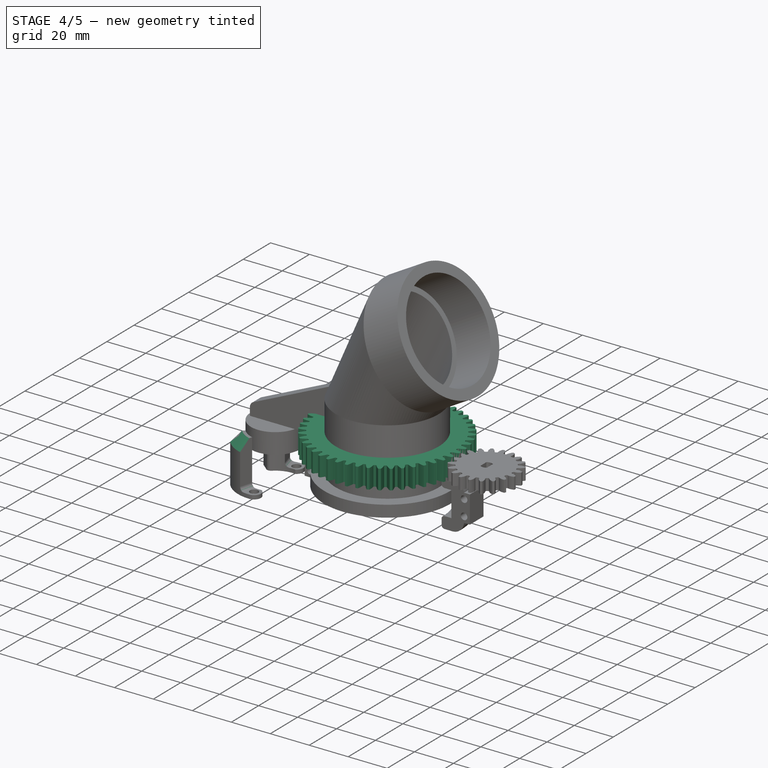
[diagram: stage 4 of 5 — iso view after this stage's code; geometry added in this stage tinted green]
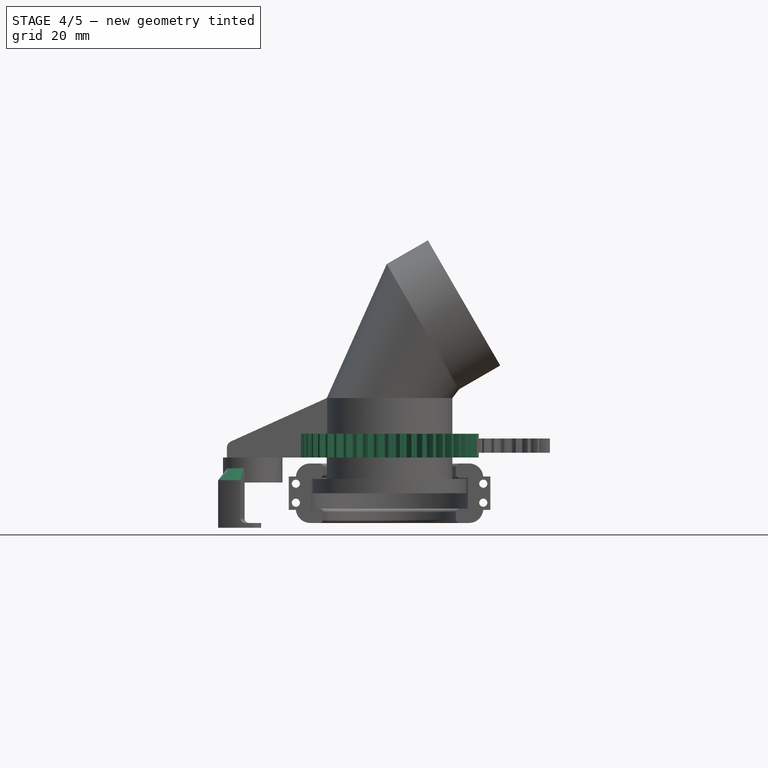
[diagram: stage 4 of 5 — front view after this stage's code; geometry added in this stage tinted green]
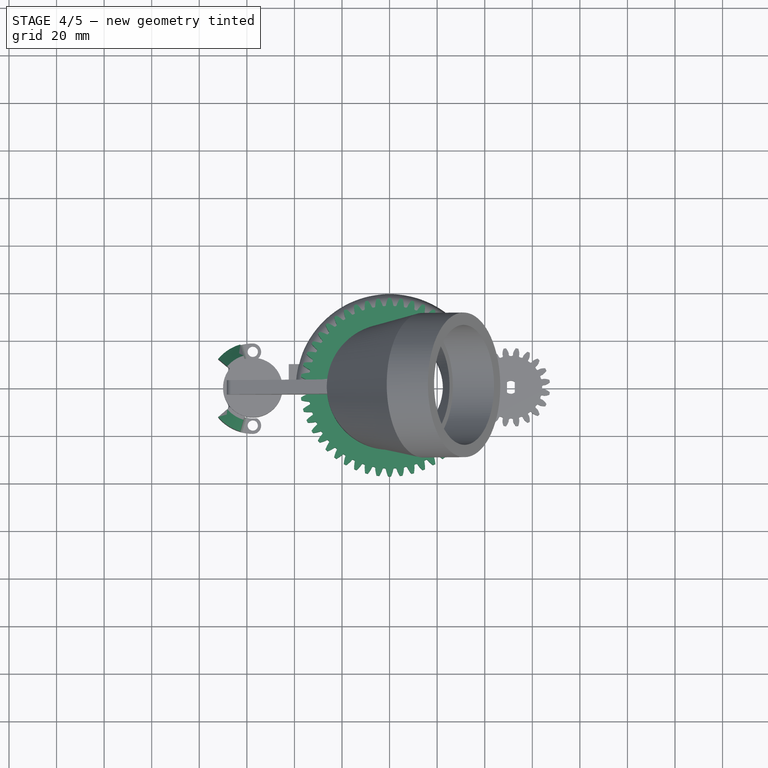
[diagram: stage 4 of 5 — top view after this stage's code; geometry added in this stage tinted green]
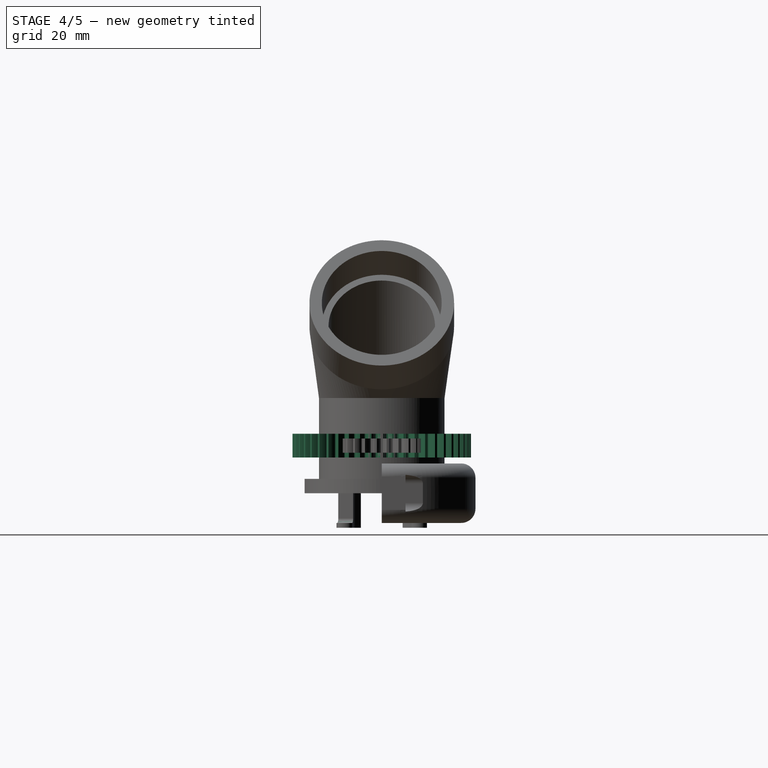
[diagram: stage 4 of 5 — right view after this stage's code; geometry added in this stage tinted green]
FEATURE [Sketcher::SketchObject] Sketch
  FullyConstrained = true
  MapMode = 5
  Support = -> [XY_Plane]
  sketch-geometry (3):
    g0: Circle CenterX=0 CenterY=0 CenterZ=0 NormalX=0 NormalY=0 NormalZ=1 AngleXU=0 Radius=26.4
    g1: Circle CenterX=0 CenterY=0 CenterZ=0 NormalX=0 NormalY=0 NormalZ=1 AngleXU=0 Radius=22.4
    g2: LineSegment StartX=22.4 StartY=0 StartZ=0 EndX=26.4 EndY=0 EndZ=0
  constraints (8):
    c: Coincident(g0,g-1)
    c: Coincident(g1,g0)
    c: PointOnObject(g2,g1)
    c: PointOnObject(g2,g0)
    c: Horizontal(g2)
    c: Distance(g2) = 4
    c: PointOnObject(g2,g-1)
    c: Diameter(g1) = 44.8
FEATURE [Sketcher::SketchObject] Sketch022  label="Sketch copy"
  AttachmentOffset = pos=(0,0,40) rot=(0,0,1;0rad)
  FullyConstrained = true
  MapMode = 5
  Placement = pos=(0,0,40) rot=(0,0,1;0rad)
  Support = -> [XY_Plane]
  sketch-geometry (3):
    g0: Circle CenterX=0 CenterY=0 CenterZ=0 NormalX=0 NormalY=0 NormalZ=1 AngleXU=0 Radius=26.4
    g1: Circle CenterX=0 CenterY=0 CenterZ=0 NormalX=0 NormalY=0 NormalZ=1 AngleXU=0 Radius=22.4
    g2: LineSegment StartX=22.4 StartY=0 StartZ=0 EndX=26.4 EndY=0 EndZ=0
  constraints (8):
    c: Coincident(g0,g-1)
    c: Coincident(g1,g0)
    c: PointOnObject(g2,g1)
    c: PointOnObject(g2,g0)
    c: Horizontal(g2)
    c: Distance(g2) = 4
    c: PointOnObject(g2,g-1)
    c: Diameter(g1) = 44.8
FEATURE [PartDesign::AdditiveLoft] AdditiveLoft
  Closed = false
  Profile = -> Sketch
  Ruled = false
  Sections = -> [Sketch022]
FEATURE [Sketcher::SketchObject] Sketch023  label="Sketch copy 2"
  AttachmentOffset = pos=(14,0,30) rot=(0,1,0;1.0472rad)
  FullyConstrained = true
  MapMode = 5
  Placement = pos=(14,0,70) rot=(0,1,0;1.0472rad)
  Support = -> [AdditiveLoft]
  sketch-geometry (3):
    g0: Circle CenterX=0 CenterY=0 CenterZ=0 NormalX=0 NormalY=0 NormalZ=1 AngleXU=0 Radius=30.4
    g1: Circle CenterX=0 CenterY=0 CenterZ=0 NormalX=0 NormalY=0 NormalZ=1 AngleXU=0 Radius=22.4
    g2: LineSegment StartX=22.4 StartY=0 StartZ=0 EndX=30.4 EndY=0 EndZ=0
  constraints (8):
    c: Coincident(g0,g-1)
    c: Coincident(g1,g0)
    c: PointOnObject(g2,g1)
    c: PointOnObject(g2,g0)
    c: Horizontal(g2)
    c: Distance(g2) = 8
    c: PointOnObject(g2,g-1)
    c: Diameter(g1) = 44.8
FEATURE [PartDesign::AdditiveLoft] AdditiveLoft001
  BaseFeature = -> AdditiveLoft
  Closed = false
  Profile = -> AdditiveLoft [Face3]
  Ruled = false
  Sections = -> [Sketch023]
FEATURE [PartDesign::Body] Body006  label="Body003: Pipe bottom"
  Group = -> [Sketch025,Pad012]
  Origin = -> Origin007
  Placement = pos=(-200.399,0,-176.899) rot=(0,1,0;1.0472rad)
  Tip = -> Pad012
FEATURE [PartDesign::Plane] DatumPlane
  Length = 96.6141
  MapMode = 11
  Placement = pos=(14,0,70) rot=(0.447214,0.447214,0.774597;1.82348rad)
  ResizeMode = 0
  Support = -> [AdditiveLoft001]
  Width = 177.335
FEATURE [Sketcher::SketchObject] Sketch027
  FullyConstrained = true
  MapMode = 5
  Placement = pos=(14,0,70) rot=(0.447214,0.447214,0.774597;1.82348rad)
  Support = -> [DatumPlane]
  sketch-geometry (2):
    g0: Circle CenterX=0 CenterY=0 CenterZ=0 NormalX=0 NormalY=0 NormalZ=1 AngleXU=0 Radius=25.2
    g1: Circle CenterX=0 CenterY=0 CenterZ=0 NormalX=0 NormalY=0 NormalZ=1 AngleXU=0 Radius=30.4
  constraints (4):
    c: Coincident(g0,g-1)
    c: Diameter(g0) = 50.4
    c: Coincident(g1,g0)
    c: Diameter(g1) = 60.8
FEATURE [PartDesign::Pad] Pad013
  BaseFeature = -> AdditiveLoft001
  Direction = (0.866025,0,0.5)
  Length = 20
  Length2 = 10
  Profile = -> Sketch027
  ReferenceAxis = -> Sketch027 [N_Axis]
  Type = 0
FEATURE [Sketcher::SketchObject] Sketch032
  FullyConstrained = true
  MapMode = 5
  Placement = pos=(0,0,0) rot=(0.57735,0.57735,0.57735;2.0944rad)
  Support = -> [YZ_Plane]
  sketch-geometry (5):
    g0: LineSegment StartX=26.4 StartY=0 StartZ=0 EndX=0 EndY=0 EndZ=0
    g1: LineSegment StartX=26.4 StartY=0 StartZ=0 EndX=32.4 EndY=0 EndZ=0
    g2: LineSegment StartX=32.4 StartY=0 StartZ=0 EndX=32.4 EndY=6 EndZ=0
    g3: LineSegment StartX=26.4 StartY=0 StartZ=0 EndX=26.4 EndY=6 EndZ=0
    g4: LineSegment StartX=26.4 StartY=6 StartZ=0 EndX=32.4 EndY=6 EndZ=0
  constraints (14):
    c: PointOnObject(g0,g-1)
    c: Coincident(g0,g-1)
    c: Distance(g0) = 26.4
    c: Coincident(g1,g0)
    c: PointOnObject(g1,g-1)
    c: Distance(g1) = 6
    c: Coincident(g2,g1)
    c: Vertical(g2)
    c: Distance(g2) = 6
    c: Coincident(g3,g1)
    c: Vertical(g3)
    c: Coincident(g4,g3)
    c: Coincident(g4,g2)
    c: Horizontal(g4)
FEATURE [PartDesign::Revolution] Revolution
  Angle = 360
  Axis = (-2e-16,3e-16,1)
  Base = (0,0,0)
  BaseFeature = -> Pad013
  Profile = -> Sketch032
  ReferenceAxis = -> Sketch032 [V_Axis]
  Reversed = true
FEATURE [PartDesign::Body] Body011  label="Body011: Pinion V0"
  Group = -> [Sketch046,Clone2D,Sketch047,Pad017,Sketch048,Pocket002]
  Origin = -> Origin012
  Tip = -> Pocket002
FEATURE [PartDesign::Pad] Pad018
  BaseFeature = -> Revolution
  Direction = (0,0,1)
  Length = 10
  Length2 = 10
  Midplane = true
  Profile = -> Sketch044
  ReferenceAxis = -> Sketch044 [N_Axis]
  Type = 0
FEATURE [PartDesign::Chamfer] Chamfer
  Angle = 45
  Base = -> Pad023 [Edge78,Edge72]
  BaseFeature = -> Pad023
  ChamferType = 0
  FlipDirection = false
  Size = 5
  Size2 = 1
  SupportTransform = false
  UseAllEdges = false
FEATURE [PartDesign::Fillet] Fillet
  Base = -> Chamfer [Edge80,Edge30]
  BaseFeature = -> Chamfer
  Radius = 2
  SupportTransform = false
  UseAllEdges = false
FEATURE [PartDesign::Fillet] Fillet001
  Base = -> Fillet [Edge84,Edge62]
  BaseFeature = -> Fillet
  Radius = 2
  SupportTransform = false
  UseAllEdges = false
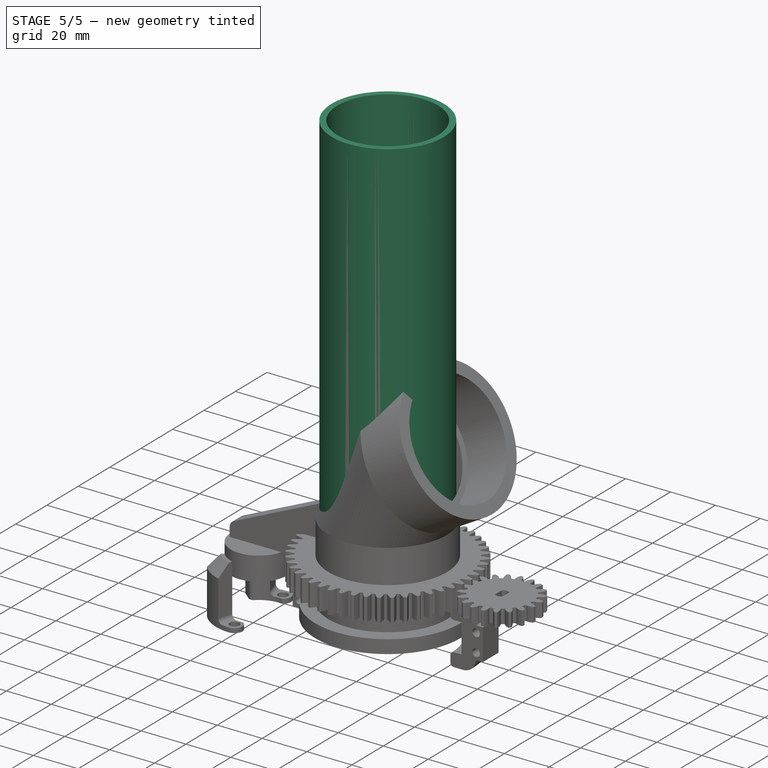
[diagram: stage 5 of 5 — iso view after this stage's code; geometry added in this stage tinted green]
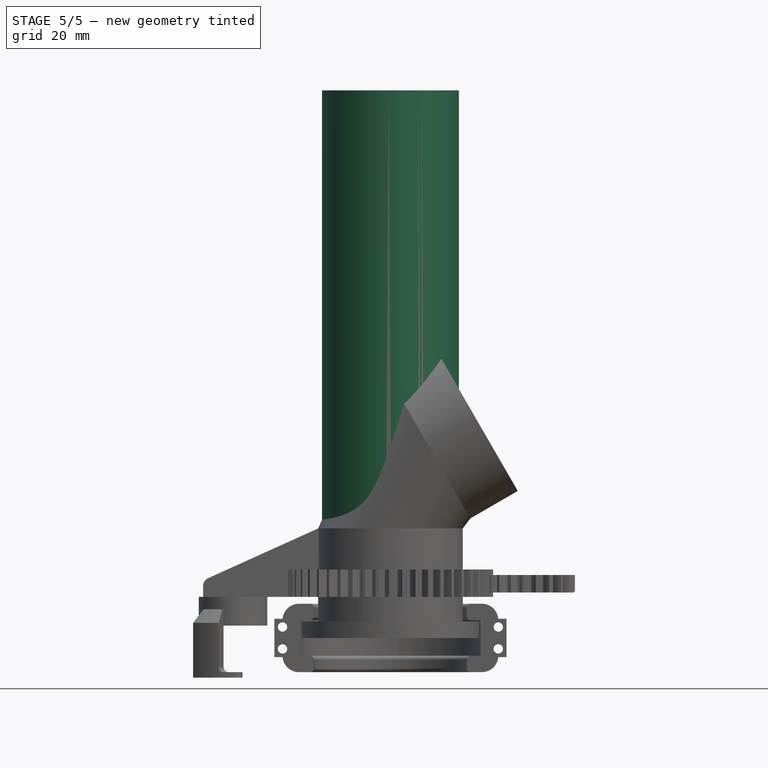
[diagram: stage 5 of 5 — front view after this stage's code; geometry added in this stage tinted green]
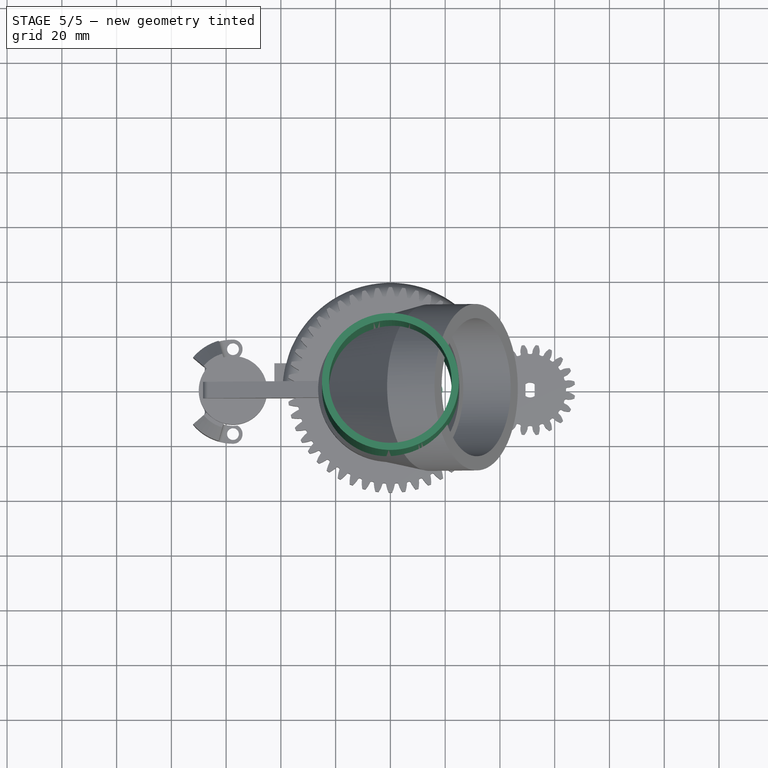
[diagram: stage 5 of 5 — top view after this stage's code; geometry added in this stage tinted green]
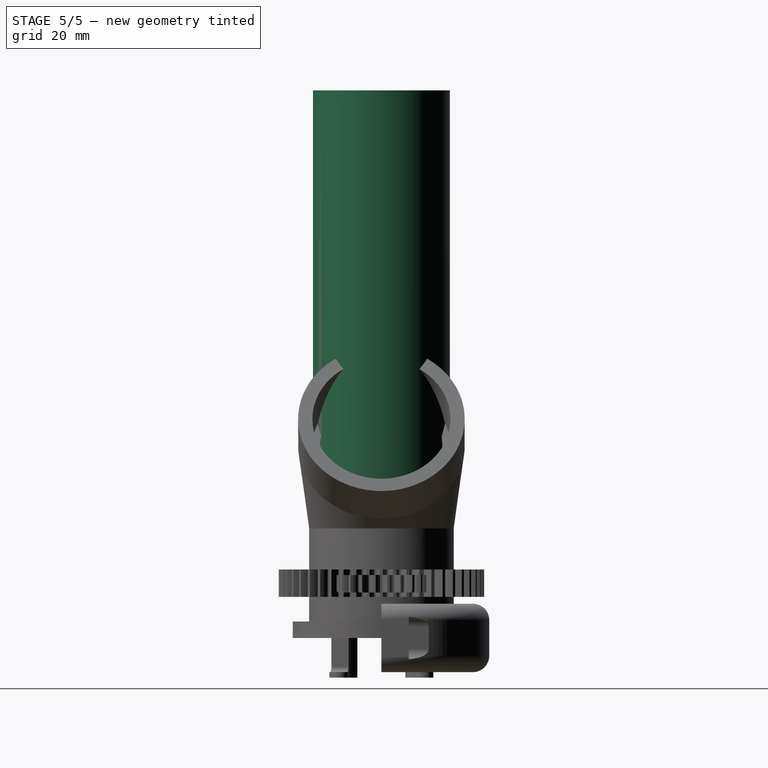
[diagram: stage 5 of 5 — right view after this stage's code; geometry added in this stage tinted green]
FEATURE [Sketcher::SketchObject] Sketch018
  FullyConstrained = true
  MapMode = 5
  Support = -> [XY_Plane005]
  sketch-geometry (1):
    g0: Circle CenterX=0 CenterY=0 CenterZ=0 NormalX=0 NormalY=0 NormalZ=1 AngleXU=0 Radius=12
  constraints (2):
    c: Coincident(g0,g-1)
    c: Diameter(g0) = 24
FEATURE [PartDesign::Pad] Pad008
  Direction = (0,0,1)
  Length = 19
  Length2 = 10
  Profile = -> Sketch018
  ReferenceAxis = -> Sketch018 [N_Axis]
  Type = 0
FEATURE [Sketcher::SketchObject] Sketch019
  FullyConstrained = true
  MapMode = 5
  Placement = pos=(0,0,19) rot=(0,0,1;0rad)
  Support = -> [Pad008]
  sketch-geometry (5):
    g0: LineSegment StartX=-7.15 StartY=-6.5 StartZ=0 EndX=-7.15 EndY=-16.5 EndZ=0
    g1: LineSegment StartX=-7.15 StartY=-16.5 StartZ=0 EndX=7.15 EndY=-16.5 EndZ=0
    g2: LineSegment StartX=7.15 StartY=-16.5 StartZ=0 EndX=7.15 EndY=-6.5 EndZ=0
    g3: LineSegment StartX=7.15 StartY=-6.5 StartZ=0 EndX=-7.15 EndY=-6.5 EndZ=0
    g4: GeomPoint X=0 Y=-11.5 Z=0
  constraints (13):
    c: Coincident(g0,g1)
    c: Coincident(g1,g2)
    c: Coincident(g2,g3)
    c: Coincident(g3,g0)
    c: Horizontal(g1)
    c: Horizontal(g3)
    c: Vertical(g0)
    c: Vertical(g2)
    c: Symmetric(g1,g0,g4)
    c: PointOnObject(g4,g-2)
    c: DistanceY(g1,g-1) = 16.5
    c: DistanceX(g1,g1) = 14.3
    c: Distance(g2) = 10
FEATURE [PartDesign::Pad] Pad009
  BaseFeature = -> Pad008
  Direction = (0,0,1)
  Length = 16.3
  Length2 = 10
  Profile = -> Sketch019
  ReferenceAxis = -> Sketch019 [N_Axis]
  Reversed = true
  Type = 0
FEATURE [Sketcher::SketchObject] Sketch020
  FullyConstrained = true
  MapMode = 5
  Placement = pos=(0,0,19) rot=(0,0,1;0rad)
  Support = -> [Pad009]
  sketch-geometry (6):
    g0: Circle CenterX=15.5 CenterY=0 CenterZ=0 NormalX=0 NormalY=0 NormalZ=1 AngleXU=0 Radius=2.1
    g1: Circle CenterX=-15.5 CenterY=0 CenterZ=0 NormalX=0 NormalY=0 NormalZ=1 AngleXU=0 Radius=2.1
    g2: ArcOfCircle CenterX=15.5 CenterY=0 CenterZ=0 NormalX=0 NormalY=0 NormalZ=1 AngleXU=0 Radius=3.5 StartAngle=4.71239 EndAngle=7.85398
    g3: ArcOfCircle CenterX=-15.5 CenterY=0 CenterZ=0 NormalX=0 NormalY=0 NormalZ=1 AngleXU=0 Radius=3.5 StartAngle=1.5708 EndAngle=4.71239
    g4: LineSegment StartX=15.5 StartY=3.5 StartZ=0 EndX=-15.5 EndY=3.5 EndZ=0
    g5: LineSegment StartX=-15.5 StartY=-3.5 StartZ=0 EndX=15.5 EndY=-3.5 EndZ=0
  constraints (15):
    c: PointOnObject(g0,g-1)
    c: PointOnObject(g1,g-1)
    c: Equal(g0,g1)
    c: Diameter(g0) = 4.2
    c: Distance(g0,g1) = 31
    c: Distance(g-1,g0) = 15.5
    c: Coincident(g2,g0)
    c: Diameter(g2) = 7
    c: Coincident(g3,g1)
    c: Horizontal(g4)
    c: Tangent(g2,g4) = -1.5708
    c: Tangent(g3,g5) = -1.5708
    c: Coincident(g3,g4)
    c: Tangent(g3,g4,g3) = -1.5708
    c: Tangent(g2,g5) = -1.5708
FEATURE [PartDesign::Pad] Pad010
  BaseFeature = -> Pad009
  Direction = (0,0,1)
  Length = 1
  Length2 = 10
  Profile = -> Sketch020
  ReferenceAxis = -> Sketch020 [N_Axis]
  Reversed = true
  Type = 0
FEATURE [Sketcher::SketchObject] Sketch021
  FullyConstrained = true
  MapMode = 5
  Placement = pos=(0,0,19) rot=(0,0,1;0rad)
  Support = -> [Pad010]
  sketch-geometry (4):
    g0: ArcOfCircle CenterX=0 CenterY=6.5 CenterZ=0 NormalX=0 NormalY=0 NormalZ=1 AngleXU=0 Radius=2.5 StartAngle=2.49809 EndAngle=3.78509
    g1: LineSegment StartX=-2 StartY=8 StartZ=0 EndX=2 EndY=8 EndZ=0
    g2: LineSegment StartX=-2 StartY=5 StartZ=0 EndX=2 EndY=5 EndZ=0
    g3: ArcOfCircle CenterX=0 CenterY=6.5 CenterZ=0 NormalX=0 NormalY=0 NormalZ=1 AngleXU=0 Radius=2.5 StartAngle=5.63968 EndAngle=6.92669
  constraints (13):
    c: PointOnObject(g0,g-2)
    c: Distance(g0,g-1) = 6.5
    c: Diameter(g0) = 5
    c: Horizontal(g1)
    c: Horizontal(g2)
    c: DistanceY(g2,g1) = 3
    c: DistanceY(g0,g1) = 1.5
    c: Coincident(g3,g1)
    c: Coincident(g0,g1)
    c: Equal(g0,g3)
    c: Coincident(g0,g2)
    c: Coincident(g3,g2)
    c: Coincident(g0,g3)
FEATURE [PartDesign::Pad] Pad011
  BaseFeature = -> Pad010
  Direction = (0,0,1)
  Length = 10
  Length2 = 10
  Profile = -> Sketch021
  ReferenceAxis = -> Sketch021 [N_Axis]
  Type = 0
FEATURE [Sketcher::SketchObject] Sketch024
  FullyConstrained = true
  MapMode = 5
  Support = -> [XY_Plane006]
  sketch-geometry (3):
    g0: Circle CenterX=0 CenterY=0 CenterZ=0 NormalX=0 NormalY=0 NormalZ=1 AngleXU=0 Radius=25
    g1: Circle CenterX=0 CenterY=0 CenterZ=0 NormalX=0 NormalY=0 NormalZ=1 AngleXU=0 Radius=22.4
    g2: LineSegment StartX=22.4 StartY=0 StartZ=0 EndX=25 EndY=0 EndZ=0
  constraints (8):
    c: Coincident(g0,g-1)
    c: Diameter(g0) = 50
    c: Coincident(g1,g0)
    c: PointOnObject(g2,g1)
    c: PointOnObject(g2,g0)
    c: Horizontal(g2)
    c: Distance(g2) = 2.6
    c: PointOnObject(g2,g-1)
FEATURE [PartDesign::Pad] Pad
  Direction = (0,0,1)
  Length = 200
  Length2 = 10
  Profile = -> Sketch024
  ReferenceAxis = -> Sketch024 [N_Axis]
  Type = 0
FEATURE [PartDesign::Body] Body005  label="Body003: Pipe top"
  Group = -> [Sketch024,Pad]
  Origin = -> Origin006
  Placement = pos=(16.3013,0,71.7654) rot=(0,1,0;1.0472rad)
  Tip = -> Pad
FEATURE [Sketcher::SketchObject] Sketch025
  FullyConstrained = true
  MapMode = 5
  Support = -> [XY_Plane007]
  sketch-geometry (3):
    g0: Circle CenterX=0 CenterY=0 CenterZ=0 NormalX=0 NormalY=0 NormalZ=1 AngleXU=0 Radius=25
    g1: Circle CenterX=0 CenterY=0 CenterZ=0 NormalX=0 NormalY=0 NormalZ=1 AngleXU=0 Radius=22.4
    g2: LineSegment StartX=22.4 StartY=0 StartZ=0 EndX=25 EndY=0 EndZ=0
  constraints (8):
    c: Coincident(g0,g-1)
    c: Diameter(g0) = 50
    c: Coincident(g1,g0)
    c: PointOnObject(g2,g1)
    c: PointOnObject(g2,g0)
    c: Horizontal(g2)
    c: Distance(g2) = 2.6
    c: PointOnObject(g2,g-1)
FEATURE [PartDesign::Pad] Pad012
  Direction = (0,0,1)
  Length = 200
  Length2 = 10
  Profile = -> Sketch025
  ReferenceAxis = -> Sketch025 [N_Axis]
  Type = 0
FEATURE [Sketcher::SketchObject] Sketch043  label="Sketch043: Gear aid"
  FullyConstrained = false
  MapMode = 5
  Placement = pos=(0,0,29) rot=(0,0,1;0rad)
  Support = -> [Pad011]
  sketch-geometry (4):
    g0: LineSegment StartX=0 StartY=6.50621 StartZ=0 EndX=0 EndY=57.9462 EndZ=0
    g1: Circle CenterX=0 CenterY=57.9462 CenterZ=0 NormalX=0 NormalY=0 NormalZ=1 AngleXU=0 Radius=22.3949
    g2: Circle CenterX=0 CenterY=6.50621 CenterZ=0 NormalX=0 NormalY=0 NormalZ=1 AngleXU=0 Radius=2.48851
    g3: Circle CenterX=0 CenterY=6.50621 CenterZ=0 NormalX=0 NormalY=0 NormalZ=1 AngleXU=0 Radius=15.9809
  constraints (6):
    c: PointOnObject(g0,g-2)
    c: PointOnObject(g0,g-2)
    c: Coincident(g1,g0)
    c: Coincident(g2,g0)
    c: Distance(g0) = 51.44
    c: Coincident(g3,g0)
FEATURE [PartDesign::Body] Body004  label="Body002: Motor"
  Group = -> [Sketch018,Pad008,Sketch019,Pad009,Sketch020,Pad010,Sketch021,Pad011,Sketch043]
  Origin = -> Origin005
  Placement = pos=(57.5,-1.3e-14,-4.5) rot=(0,0,1;1.5708rad)
  Tip = -> Pad011
FEATURE [Sketcher::SketchObject] Sketch044
  AttachmentOffset = pos=(0,0,-20) rot=(0,0,1;0rad)
  FullyConstrained = false
  MapMode = 11
  Placement = pos=(0,0,20) rot=(0,0,1;1.5708rad)
  Support = -> [Revolution]
  sketch-geometry (385):
    g0: BSplineCurve PolesCount=4 KnotsCount=2 Degree=3 IsPeriodic=0
    g1: BSplineCurve PolesCount=4 KnotsCount=2 Degree=3 IsPeriodic=0
    g2: ArcOfCircle CenterX=0.00055013 CenterY=0 CenterZ=0 NormalX=0 NormalY=0 NormalZ=1 AngleXU=-0.0154527 Radius=37.5 StartAngle=0 EndAngle=0.0309054
    g3: BSplineCurve PolesCount=4 KnotsCount=2 Degree=3 IsPeriodic=0
    g4: BSplineCurve PolesCount=4 KnotsCount=2 Degree=3 IsPeriodic=0
    g5: ArcOfCircle CenterX=34.6235 CenterY=2.09232 CenterZ=0 NormalX=0 NormalY=0 NormalZ=1 AngleXU=-1.85633 Radius=0.5625 StartAngle=5.00512 EndAngle=6.28319
    g6: ArcOfCircle CenterX=-2.68773e-10 CenterY=-1.836e-11 CenterZ=0 NormalX=0 NormalY=0 NormalZ=1 AngleXU=0.0612332 Radius=34.125 StartAngle=0 EndAngle=0.00843337
    g7: ArcOfCircle CenterX=34.6004 CenterY=2.44486 CenterZ=0 NormalX=0 NormalY=0 NormalZ=1 AngleXU=-3.01788 Radius=0.5625 StartAngle=5.0052 EndAngle=6.28319
    g8: BSplineCurve PolesCount=4 KnotsCount=2 Degree=3 IsPeriodic=0
    g9: BSplineCurve PolesCount=4 KnotsCount=2 Degree=3 IsPeriodic=0
    g10: ArcOfCircle CenterX=0.000545423 CenterY=7.18064e-05 CenterZ=0 NormalX=0 NormalY=0 NormalZ=1 AngleXU=0.115447 Radius=37.5 StartAngle=0 EndAngle=0.0309054
    g11: BSplineCurve PolesCount=4 KnotsCount=2 Degree=3 IsPeriodic=0
    g12: BSplineCurve PolesCount=4 KnotsCount=2 Degree=3 IsPeriodic=0
    g13: ArcOfCircle CenterX=34.0542 CenterY=6.5937 CenterZ=0 NormalX=0 NormalY=0 NormalZ=1 AngleXU=-1.72543 Radius=0.5625 StartAngle=5.00512 EndAngle=6.28319
    g14: ArcOfCircle CenterX=2.04675e-10 CenterY=3.91447e-11 CenterZ=0 NormalX=0 NormalY=0 NormalZ=1 AngleXU=0.192133 Radius=34.125 StartAngle=0 EndAngle=0.00843337
    g15: ArcOfCircle CenterX=33.9853 CenterY=6.9402 CenterZ=0 NormalX=0 NormalY=0 NormalZ=1 AngleXU=-2.88698 Radius=0.5625 StartAngle=5.0052 EndAngle=6.28319
    g16: BSplineCurve PolesCount=4 KnotsCount=2 Degree=3 IsPeriodic=0
    g17: BSplineCurve PolesCount=4 KnotsCount=2 Degree=3 IsPeriodic=0
    g18: ArcOfCircle CenterX=0.000531385 CenterY=0.000142384 CenterZ=0 NormalX=0 NormalY=0 NormalZ=1 AngleXU=0.246347 Radius=37.5 StartAngle=0 EndAngle=0.0309054
    g19: BSplineCurve PolesCount=4 KnotsCount=2 Degree=3 IsPeriodic=0
    g20: BSplineCurve PolesCount=4 KnotsCount=2 Degree=3 IsPeriodic=0
    g21: ArcOfCircle CenterX=32.9022 CenterY=10.9823 CenterZ=0 NormalX=0 NormalY=0 NormalZ=1 AngleXU=-1.59453 Radius=0.5625 StartAngle=5.00512 EndAngle=6.28319
    g22: ArcOfCircle CenterX=-3.25322e-10 CenterY=-1.1129e-10 CenterZ=0 NormalX=0 NormalY=0 NormalZ=1 AngleXU=0.323033 Radius=34.125 StartAngle=0 EndAngle=0.00843337
    g23: ArcOfCircle CenterX=32.7887 CenterY=11.3168 CenterZ=0 NormalX=0 NormalY=0 NormalZ=1 AngleXU=-2.75609 Radius=0.5625 StartAngle=5.0052 EndAngle=6.28319
    g24: BSplineCurve PolesCount=4 KnotsCount=2 Degree=3 IsPeriodic=0
    g25: BSplineCurve PolesCount=4 KnotsCount=2 Degree=3 IsPeriodic=0
    g26: ArcOfCircle CenterX=0.000508254 CenterY=0.000210526 CenterZ=0 NormalX=0 NormalY=0 NormalZ=1 AngleXU=0.377246 Radius=37.5 StartAngle=0 EndAngle=0.0309054
    g27: BSplineCurve PolesCount=4 KnotsCount=2 Degree=3 IsPeriodic=0
    g28: BSplineCurve PolesCount=4 KnotsCount=2 Degree=3 IsPeriodic=0
    g29: ArcOfCircle CenterX=31.1873 CenterY=15.1829 CenterZ=0 NormalX=0 NormalY=0 NormalZ=1 AngleXU=-1.46363 Radius=0.5625 StartAngle=5.00512 EndAngle=6.28319
    g30: ArcOfCircle CenterX=-8.864e-12 CenterY=-5.0084e-12 CenterZ=0 NormalX=0 NormalY=0 NormalZ=1 AngleXU=0.453932 Radius=34.125 StartAngle=0 EndAngle=0.00843337
    g31: ArcOfCircle CenterX=31.031 CenterY=15.4998 CenterZ=0 NormalX=0 NormalY=0 NormalZ=1 AngleXU=-2.62519 Radius=0.5625 StartAngle=5.0052 EndAngle=6.28319
    g32: BSplineCurve PolesCount=4 KnotsCount=2 Degree=3 IsPeriodic=0
    g33: BSplineCurve PolesCount=4 KnotsCount=2 Degree=3 IsPeriodic=0
    g34: ArcOfCircle CenterX=0.000476426 CenterY=0.000275065 CenterZ=0 NormalX=0 NormalY=0 NormalZ=1 AngleXU=0.508146 Radius=37.5 StartAngle=0 EndAngle=0.0309054
    g35: BSplineCurve PolesCount=4 KnotsCount=2 Degree=3 IsPeriodic=0
    g36: BSplineCurve PolesCount=4 KnotsCount=2 Degree=3 IsPeriodic=0
    g37: ArcOfCircle CenterX=28.9387 CenterY=19.1238 CenterZ=0 NormalX=0 NormalY=0 NormalZ=1 AngleXU=-1.33273 Radius=0.5625 StartAngle=5.00512 EndAngle=6.28319
    g38: ArcOfCircle CenterX=-1.03163e-09 CenterY=-6.8988e-10 CenterZ=0 NormalX=0 NormalY=0 NormalZ=1 AngleXU=0.584832 Radius=34.125 StartAngle=0 EndAngle=0.00843337
    g39: ArcOfCircle CenterX=28.7424 CenterY=19.4175 CenterZ=0 NormalX=0 NormalY=0 NormalZ=1 AngleXU=-2.49429 Radius=0.5625 StartAngle=5.0052 EndAngle=6.28319
    g40: BSplineCurve PolesCount=4 KnotsCount=2 Degree=3 IsPeriodic=0
    g41: BSplineCurve PolesCount=4 KnotsCount=2 Degree=3 IsPeriodic=0
    g42: ArcOfCircle CenterX=0.000436447 CenterY=0.000334898 CenterZ=0 NormalX=0 NormalY=0 NormalZ=1 AngleXU=0.639046 Radius=37.5 StartAngle=0 EndAngle=0.0309054
    g43: BSplineCurve PolesCount=4 KnotsCount=2 Degree=3 IsPeriodic=0
    g44: BSplineCurve PolesCount=4 KnotsCount=2 Degree=3 IsPeriodic=0
    g45: ArcOfCircle CenterX=26.195 CenterY=22.7374 CenterZ=0 NormalX=0 NormalY=0 NormalZ=1 AngleXU=-1.20183 Radius=0.5625 StartAngle=5.00512 EndAngle=6.28319
    g46: ArcOfCircle CenterX=2.95604e-11 CenterY=2.54623e-11 CenterZ=0 NormalX=0 NormalY=0 NormalZ=1 AngleXU=0.715732 Radius=34.125 StartAngle=0 EndAngle=0.00843337
    g47: ArcOfCircle CenterX=25.962 CenterY=23.003 CenterZ=0 NormalX=0 NormalY=0 NormalZ=1 AngleXU=-2.36339 Radius=0.5625 StartAngle=5.0052 EndAngle=6.28319
    g48: BSplineCurve PolesCount=4 KnotsCount=2 Degree=3 IsPeriodic=0
    g49: BSplineCurve PolesCount=4 KnotsCount=2 Degree=3 IsPeriodic=0
    g50: ArcOfCircle CenterX=0.000389001 CenterY=0.000389001 CenterZ=0 NormalX=0 NormalY=0 NormalZ=1 AngleXU=0.769945 Radius=37.5 StartAngle=0 EndAngle=0.0309054
    g51: BSplineCurve PolesCount=4 KnotsCount=2 Degree=3 IsPeriodic=0
    g52: BSplineCurve PolesCount=4 KnotsCount=2 Degree=3 IsPeriodic=0
    g53: ArcOfCircle CenterX=23.003 CenterY=25.962 CenterZ=0 NormalX=0 NormalY=0 NormalZ=1 AngleXU=-1.07094 Radius=0.5625 StartAngle=5.00512 EndAngle=6.28319
    g54: ArcOfCircle CenterX=-3.53197e-10 CenterY=-4.04512e-10 CenterZ=0 NormalX=0 NormalY=0 NormalZ=1 AngleXU=0.846631 Radius=34.125 StartAngle=0 EndAngle=0.00843337
    g55: ArcOfCircle CenterX=22.7374 CenterY=26.195 CenterZ=0 NormalX=0 NormalY=0 NormalZ=1 AngleXU=-2.23249 Radius=0.5625 StartAngle=5.0052 EndAngle=6.28319
    g56: BSplineCurve PolesCount=4 KnotsCount=2 Degree=3 IsPeriodic=0
    g57: BSplineCurve PolesCount=4 KnotsCount=2 Degree=3 IsPeriodic=0
    g58: ArcOfCircle CenterX=0.000334898 CenterY=0.000436447 CenterZ=0 NormalX=0 NormalY=0 NormalZ=1 AngleXU=0.900845 Radius=37.5 StartAngle=0 EndAngle=0.0309054
    g59: BSplineCurve PolesCount=4 KnotsCount=2 Degree=3 IsPeriodic=0
    g60: BSplineCurve PolesCount=4 KnotsCount=2 Degree=3 IsPeriodic=0
    g61: ArcOfCircle CenterX=19.4175 CenterY=28.7424 CenterZ=0 NormalX=0 NormalY=0 NormalZ=1 AngleXU=-0.940036 Radius=0.5625 StartAngle=5.00512 EndAngle=6.28319
    g62: ArcOfCircle CenterX=-1.85794e-10 CenterY=-2.79529e-10 CenterZ=0 NormalX=0 NormalY=0 NormalZ=1 AngleXU=0.977531 Radius=34.125 StartAngle=0 EndAngle=0.00843337
    g63: ArcOfCircle CenterX=19.1238 CenterY=28.9387 CenterZ=0 NormalX=0 NormalY=0 NormalZ=1 AngleXU=-2.10159 Radius=0.5625 StartAngle=5.0052 EndAngle=6.28319
    g64: BSplineCurve PolesCount=4 KnotsCount=2 Degree=3 IsPeriodic=0
    g65: BSplineCurve PolesCount=4 KnotsCount=2 Degree=3 IsPeriodic=0
    g66: ArcOfCircle CenterX=0.000275065 CenterY=0.000476426 CenterZ=0 NormalX=0 NormalY=0 NormalZ=1 AngleXU=1.03174 Radius=37.5 StartAngle=0 EndAngle=0.0309054
    g67: BSplineCurve PolesCount=4 KnotsCount=2 Degree=3 IsPeriodic=0
    g68: BSplineCurve PolesCount=4 KnotsCount=2 Degree=3 IsPeriodic=0
    g69: ArcOfCircle CenterX=15.4998 CenterY=31.031 CenterZ=0 NormalX=0 NormalY=0 NormalZ=1 AngleXU=-0.809136 Radius=0.5625 StartAngle=5.00512 EndAngle=6.28319
    g70: ArcOfCircle CenterX=-3.91406e-10 CenterY=-7.94751e-10 CenterZ=0 NormalX=0 NormalY=0 NormalZ=1 AngleXU=1.10843 Radius=34.125 StartAngle=0 EndAngle=0.00843337
    g71: ArcOfCircle CenterX=15.1829 CenterY=31.1873 CenterZ=0 NormalX=0 NormalY=0 NormalZ=1 AngleXU=-1.97069 Radius=0.5625 StartAngle=5.0052 EndAngle=6.28319
    g72: BSplineCurve PolesCount=4 KnotsCount=2 Degree=3 IsPeriodic=0
    g73: BSplineCurve PolesCount=4 KnotsCount=2 Degree=3 IsPeriodic=0
    g74: ArcOfCircle CenterX=0.000210526 CenterY=0.000508254 CenterZ=0 NormalX=0 NormalY=0 NormalZ=1 AngleXU=1.16264 Radius=37.5 StartAngle=0 EndAngle=0.0309054
    g75: BSplineCurve PolesCount=4 KnotsCount=2 Degree=3 IsPeriodic=0
    g76: BSplineCurve PolesCount=4 KnotsCount=2 Degree=3 IsPeriodic=0
    g77: ArcOfCircle CenterX=11.3168 CenterY=32.7887 CenterZ=0 NormalX=0 NormalY=0 NormalZ=1 AngleXU=-0.678236 Radius=0.5625 StartAngle=5.00512 EndAngle=6.28319
    g78: ArcOfCircle CenterX=4.31839e-10 CenterY=1.27155e-09 CenterZ=0 NormalX=0 NormalY=0 NormalZ=1 AngleXU=1.23933 Radius=34.125 StartAngle=0 EndAngle=0.00843337
    g79: ArcOfCircle CenterX=10.9823 CenterY=32.9022 CenterZ=0 NormalX=0 NormalY=0 NormalZ=1 AngleXU=-1.83979 Radius=0.5625 StartAngle=5.0052 EndAngle=6.28319
    g80: BSplineCurve PolesCount=4 KnotsCount=2 Degree=3 IsPeriodic=0
    g81: BSplineCurve PolesCount=4 KnotsCount=2 Degree=3 IsPeriodic=0
    g82: ArcOfCircle CenterX=0.000142384 CenterY=0.000531385 CenterZ=0 NormalX=0 NormalY=0 NormalZ=1 AngleXU=1.29354 Radius=37.5 StartAngle=0 EndAngle=0.0309054
    g83: BSplineCurve PolesCount=4 KnotsCount=2 Degree=3 IsPeriodic=0
    g84: BSplineCurve PolesCount=4 KnotsCount=2 Degree=3 IsPeriodic=0
    g85: ArcOfCircle CenterX=6.9402 CenterY=33.9853 CenterZ=0 NormalX=0 NormalY=0 NormalZ=1 AngleXU=-0.547336 Radius=0.5625 StartAngle=5.00512 EndAngle=6.28319
    g86: ArcOfCircle CenterX=-1.27546e-10 CenterY=-6.46505e-10 CenterZ=0 NormalX=0 NormalY=0 NormalZ=1 AngleXU=1.37023 Radius=34.125 StartAngle=0 EndAngle=0.00843337
    g87: ArcOfCircle CenterX=6.5937 CenterY=34.0542 CenterZ=0 NormalX=0 NormalY=0 NormalZ=1 AngleXU=-1.70889 Radius=0.5625 StartAngle=5.0052 EndAngle=6.28319
    g88: BSplineCurve PolesCount=4 KnotsCount=2 Degree=3 IsPeriodic=0
    g89: BSplineCurve PolesCount=4 KnotsCount=2 Degree=3 IsPeriodic=0
    g90: ArcOfCircle CenterX=7.18064e-05 CenterY=0.000545423 CenterZ=0 NormalX=0 NormalY=0 NormalZ=1 AngleXU=1.42444 Radius=37.5 StartAngle=0 EndAngle=0.0309054
    g91: BSplineCurve PolesCount=4 KnotsCount=2 Degree=3 IsPeriodic=0
    g92: BSplineCurve PolesCount=4 KnotsCount=2 Degree=3 IsPeriodic=0
    g93: ArcOfCircle CenterX=2.44485 CenterY=34.6004 CenterZ=0 NormalX=0 NormalY=0 NormalZ=1 AngleXU=-0.416437 Radius=0.5625 StartAngle=5.00512 EndAngle=6.28319
    g94: ArcOfCircle CenterX=-1.60243e-11 CenterY=-2.46239e-10 CenterZ=0 NormalX=0 NormalY=0 NormalZ=1 AngleXU=1.50113 Radius=34.125 StartAngle=0 EndAngle=0.00843337
    g95: ArcOfCircle CenterX=2.09232 CenterY=34.6235 CenterZ=0 NormalX=0 NormalY=0 NormalZ=1 AngleXU=-1.57799 Radius=0.5625 StartAngle=5.0052 EndAngle=6.28319
    g96: BSplineCurve PolesCount=4 KnotsCount=2 Degree=3 IsPeriodic=0
    g97: BSplineCurve PolesCount=4 KnotsCount=2 Degree=3 IsPeriodic=0
    g98: ArcOfCircle CenterX=2.3e-15 CenterY=0.00055013 CenterZ=0 NormalX=0 NormalY=0 NormalZ=1 AngleXU=1.55534 Radius=37.5 StartAngle=0 EndAngle=0.0309054
    g99: BSplineCurve PolesCount=4 KnotsCount=2 Degree=3 IsPeriodic=0
    g100: BSplineCurve PolesCount=4 KnotsCount=2 Degree=3 IsPeriodic=0
    g101: ArcOfCircle CenterX=-2.09232 CenterY=34.6235 CenterZ=0 NormalX=0 NormalY=0 NormalZ=1 AngleXU=-0.285537 Radius=0.5625 StartAngle=5.00512 EndAngle=6.28319
    g102: ArcOfCircle CenterX=1.8145e-11 CenterY=-2.65462e-10 CenterZ=0 NormalX=0 NormalY=0 NormalZ=1 AngleXU=1.63203 Radius=34.125 StartAngle=0 EndAngle=0.00843337
    g103: ArcOfCircle CenterX=-2.44486 CenterY=34.6004 CenterZ=0 NormalX=0 NormalY=0 NormalZ=1 AngleXU=-1.44709 Radius=0.5625 StartAngle=5.0052 EndAngle=6.28319
    g104: BSplineCurve PolesCount=4 KnotsCount=2 Degree=3 IsPeriodic=0
    g105: BSplineCurve PolesCount=4 KnotsCount=2 Degree=3 IsPeriodic=0
    g106: ArcOfCircle CenterX=-7.18064e-05 CenterY=0.000545423 CenterZ=0 NormalX=0 NormalY=0 NormalZ=1 AngleXU=1.68624 Radius=37.5 StartAngle=0 EndAngle=0.0309054
    g107: BSplineCurve PolesCount=4 KnotsCount=2 Degree=3 IsPeriodic=0
    g108: BSplineCurve PolesCount=4 KnotsCount=2 Degree=3 IsPeriodic=0
    g109: ArcOfCircle CenterX=-6.5937 CenterY=34.0542 CenterZ=0 NormalX=0 NormalY=0 NormalZ=1 AngleXU=-0.154637 Radius=0.5625 StartAngle=5.00512 EndAngle=6.28319
    g110: ArcOfCircle CenterX=1.27237e-10 CenterY=-6.31854e-10 CenterZ=0 NormalX=0 NormalY=0 NormalZ=1 AngleXU=1.76293 Radius=34.125 StartAngle=0 EndAngle=0.00843337
    g111: ArcOfCircle CenterX=-6.9402 CenterY=33.9853 CenterZ=0 NormalX=0 NormalY=0 NormalZ=1 AngleXU=-1.31619 Radius=0.5625 StartAngle=5.0052 EndAngle=6.28319
    g112: BSplineCurve PolesCount=4 KnotsCount=2 Degree=3 IsPeriodic=0
    g113: BSplineCurve PolesCount=4 KnotsCount=2 Degree=3 IsPeriodic=0
    g114: ArcOfCircle CenterX=-0.000142384 CenterY=0.000531385 CenterZ=0 NormalX=0 NormalY=0 NormalZ=1 AngleXU=1.81714 Radius=37.5 StartAngle=0 EndAngle=0.0309054
    g115: BSplineCurve PolesCount=4 KnotsCount=2 Degree=3 IsPeriodic=0
    g116: BSplineCurve PolesCount=4 KnotsCount=2 Degree=3 IsPeriodic=0
    g117: ArcOfCircle CenterX=-10.9823 CenterY=32.9022 CenterZ=0 NormalX=0 NormalY=0 NormalZ=1 AngleXU=-0.0237377 Radius=0.5625 StartAngle=5.00512 EndAngle=6.28319
    g118: ArcOfCircle CenterX=1.11293e-10 CenterY=-3.25322e-10 CenterZ=0 NormalX=0 NormalY=0 NormalZ=1 AngleXU=1.89383 Radius=34.125 StartAngle=0 EndAngle=0.00843337
    g119: ArcOfCircle CenterX=-11.3168 CenterY=32.7887 CenterZ=0 NormalX=0 NormalY=0 NormalZ=1 AngleXU=-1.18529 Radius=0.5625 StartAngle=5.0052 EndAngle=6.28319
    g120: BSplineCurve PolesCount=4 KnotsCount=2 Degree=3 IsPeriodic=0
    g121: BSplineCurve PolesCount=4 KnotsCount=2 Degree=3 IsPeriodic=0
    g122: ArcOfCircle CenterX=-0.000210526 CenterY=0.000508254 CenterZ=0 NormalX=0 NormalY=0 NormalZ=1 AngleXU=1.94804 Radius=37.5 StartAngle=0 EndAngle=0.0309054
    g123: BSplineCurve PolesCount=4 KnotsCount=2 Degree=3 IsPeriodic=0
    g124: BSplineCurve PolesCount=4 KnotsCount=2 Degree=3 IsPeriodic=0
    g125: ArcOfCircle CenterX=-15.1829 CenterY=31.1873 CenterZ=0 NormalX=0 NormalY=0 NormalZ=1 AngleXU=0.107162 Radius=0.5625 StartAngle=5.00512 EndAngle=6.28319
    g126: ArcOfCircle CenterX=-1.54728e-10 CenterY=3.14866e-10 CenterZ=0 NormalX=0 NormalY=0 NormalZ=1 AngleXU=2.02473 Radius=34.125 StartAngle=0 EndAngle=0.00843337
    g127: ArcOfCircle CenterX=-15.4998 CenterY=31.031 CenterZ=0 NormalX=0 NormalY=0 NormalZ=1 AngleXU=-1.05439 Radius=0.5625 StartAngle=5.0052 EndAngle=6.28319
    g128: BSplineCurve PolesCount=4 KnotsCount=2 Degree=3 IsPeriodic=0
    g129: BSplineCurve PolesCount=4 KnotsCount=2 Degree=3 IsPeriodic=0
    g130: ArcOfCircle CenterX=-0.000275065 CenterY=0.000476426 CenterZ=0 NormalX=0 NormalY=0 NormalZ=1 AngleXU=2.07894 Radius=37.5 StartAngle=0 EndAngle=0.0309054
    g131: BSplineCurve PolesCount=4 KnotsCount=2 Degree=3 IsPeriodic=0
    g132: BSplineCurve PolesCount=4 KnotsCount=2 Degree=3 IsPeriodic=0
    g133: ArcOfCircle CenterX=-19.1238 CenterY=28.9387 CenterZ=0 NormalX=0 NormalY=0 NormalZ=1 AngleXU=0.238062 Radius=0.5625 StartAngle=5.00512 EndAngle=6.28319
    g134: ArcOfCircle CenterX=6.90749e-10 CenterY=-1.03292e-09 CenterZ=0 NormalX=0 NormalY=0 NormalZ=1 AngleXU=2.15563 Radius=34.125 StartAngle=0 EndAngle=0.00843337
    g135: ArcOfCircle CenterX=-19.4175 CenterY=28.7424 CenterZ=0 NormalX=0 NormalY=0 NormalZ=1 AngleXU=-0.923489 Radius=0.5625 StartAngle=5.0052 EndAngle=6.28319
    g136: BSplineCurve PolesCount=4 KnotsCount=2 Degree=3 IsPeriodic=0
    g137: BSplineCurve PolesCount=4 KnotsCount=2 Degree=3 IsPeriodic=0
    g138: ArcOfCircle CenterX=-0.000334898 CenterY=0.000436447 CenterZ=0 NormalX=0 NormalY=0 NormalZ=1 AngleXU=2.20984 Radius=37.5 StartAngle=0 EndAngle=0.0309054
    g139: BSplineCurve PolesCount=4 KnotsCount=2 Degree=3 IsPeriodic=0
    g140: BSplineCurve PolesCount=4 KnotsCount=2 Degree=3 IsPeriodic=0
    g141: ArcOfCircle CenterX=-22.7374 CenterY=26.195 CenterZ=0 NormalX=0 NormalY=0 NormalZ=1 AngleXU=0.368961 Radius=0.5625 StartAngle=5.00512 EndAngle=6.28319
    g142: ArcOfCircle CenterX=1.67743e-10 CenterY=-1.90312e-10 CenterZ=0 NormalX=0 NormalY=0 NormalZ=1 AngleXU=2.28653 Radius=34.125 StartAngle=0 EndAngle=0.00843337
    g143: ArcOfCircle CenterX=-23.003 CenterY=25.962 CenterZ=0 NormalX=0 NormalY=0 NormalZ=1 AngleXU=-0.79259 Radius=0.5625 StartAngle=5.0052 EndAngle=6.28319
    g144: BSplineCurve PolesCount=4 KnotsCount=2 Degree=3 IsPeriodic=0
    g145: BSplineCurve PolesCount=4 KnotsCount=2 Degree=3 IsPeriodic=0
    g146: ArcOfCircle CenterX=-0.000389001 CenterY=0.000389001 CenterZ=0 NormalX=0 NormalY=0 NormalZ=1 AngleXU=2.34074 Radius=37.5 StartAngle=0 EndAngle=0.0309054
    g147: BSplineCurve PolesCount=4 KnotsCount=2 Degree=3 IsPeriodic=0
    g148: BSplineCurve PolesCount=4 KnotsCount=2 Degree=3 IsPeriodic=0
    g149: ArcOfCircle CenterX=-25.962 CenterY=23.003 CenterZ=0 NormalX=0 NormalY=0 NormalZ=1 AngleXU=0.499861 Radius=0.5625 StartAngle=5.00512 EndAngle=6.28319
    g150: ArcOfCircle CenterX=1.05493e-09 CenterY=-9.23169e-10 CenterZ=0 NormalX=0 NormalY=0 NormalZ=1 AngleXU=2.41743 Radius=34.125 StartAngle=0 EndAngle=0.00843337
    g151: ArcOfCircle CenterX=-26.195 CenterY=22.7374 CenterZ=0 NormalX=0 NormalY=0 NormalZ=1 AngleXU=-0.66169 Radius=0.5625 StartAngle=5.0052 EndAngle=6.28319
    g152: BSplineCurve PolesCount=4 KnotsCount=2 Degree=3 IsPeriodic=0
    g153: BSplineCurve PolesCount=4 KnotsCount=2 Degree=3 IsPeriodic=0
    g154: ArcOfCircle CenterX=-0.000436447 CenterY=0.000334898 CenterZ=0 NormalX=0 NormalY=0 NormalZ=1 AngleXU=2.47164 Radius=37.5 StartAngle=0 EndAngle=0.0309054
    g155: BSplineCurve PolesCount=4 KnotsCount=2 Degree=3 IsPeriodic=0
    g156: BSplineCurve PolesCount=4 KnotsCount=2 Degree=3 IsPeriodic=0
    g157: ArcOfCircle CenterX=-28.7424 CenterY=19.4175 CenterZ=0 NormalX=0 NormalY=0 NormalZ=1 AngleXU=0.630761 Radius=0.5625 StartAngle=5.00512 EndAngle=6.28319
    g158: ArcOfCircle CenterX=5.54044e-10 CenterY=-3.69205e-10 CenterZ=0 NormalX=0 NormalY=0 NormalZ=1 AngleXU=2.54833 Radius=34.125 StartAngle=0 EndAngle=0.00843337
    g159: ArcOfCircle CenterX=-28.9387 CenterY=19.1238 CenterZ=0 NormalX=0 NormalY=0 NormalZ=1 AngleXU=-0.53079 Radius=0.5625 StartAngle=5.0052 EndAngle=6.28319
    g160: BSplineCurve PolesCount=4 KnotsCount=2 Degree=3 IsPeriodic=0
    g161: BSplineCurve PolesCount=4 KnotsCount=2 Degree=3 IsPeriodic=0
    g162: ArcOfCircle CenterX=-0.000476426 CenterY=0.000275065 CenterZ=0 NormalX=0 NormalY=0 NormalZ=1 AngleXU=2.60254 Radius=37.5 StartAngle=0 EndAngle=0.0309054
    g163: BSplineCurve PolesCount=4 KnotsCount=2 Degree=3 IsPeriodic=0
    g164: BSplineCurve PolesCount=4 KnotsCount=2 Degree=3 IsPeriodic=0
    g165: ArcOfCircle CenterX=-31.031 CenterY=15.4998 CenterZ=0 NormalX=0 NormalY=0 NormalZ=1 AngleXU=0.76166 Radius=0.5625 StartAngle=5.00512 EndAngle=6.28319
    g166: ArcOfCircle CenterX=7.94754e-10 CenterY=-3.91399e-10 CenterZ=0 NormalX=0 NormalY=0 NormalZ=1 AngleXU=2.67923 Radius=34.125 StartAngle=0 EndAngle=0.00843337
    g167: ArcOfCircle CenterX=-31.1873 CenterY=15.1829 CenterZ=0 NormalX=0 NormalY=0 NormalZ=1 AngleXU=-0.399891 Radius=0.5625 StartAngle=5.0052 EndAngle=6.28319
    g168: BSplineCurve PolesCount=4 KnotsCount=2 Degree=3 IsPeriodic=0
    g169: BSplineCurve PolesCount=4 KnotsCount=2 Degree=3 IsPeriodic=0
    g170: ArcOfCircle CenterX=-0.000508254 CenterY=0.000210526 CenterZ=0 NormalX=0 NormalY=0 NormalZ=1 AngleXU=2.73344 Radius=37.5 StartAngle=0 EndAngle=0.0309054
    g171: BSplineCurve PolesCount=4 KnotsCount=2 Degree=3 IsPeriodic=0
    g172: BSplineCurve PolesCount=4 KnotsCount=2 Degree=3 IsPeriodic=0
    g173: ArcOfCircle CenterX=-32.7887 CenterY=11.3168 CenterZ=0 NormalX=0 NormalY=0 NormalZ=1 AngleXU=0.89256 Radius=0.5625 StartAngle=5.00512 EndAngle=6.28319
    g174: ArcOfCircle CenterX=2.89013e-11 CenterY=-9.603e-12 CenterZ=0 NormalX=0 NormalY=0 NormalZ=1 AngleXU=2.81013 Radius=34.125 StartAngle=0 EndAngle=0.00843337
    g175: ArcOfCircle CenterX=-32.9022 CenterY=10.9823 CenterZ=0 NormalX=0 NormalY=0 NormalZ=1 AngleXU=-0.268991 Radius=0.5625 StartAngle=5.0052 EndAngle=6.28319
    g176: BSplineCurve PolesCount=4 KnotsCount=2 Degree=3 IsPeriodic=0
    g177: BSplineCurve PolesCount=4 KnotsCount=2 Degree=3 IsPeriodic=0
    g178: ArcOfCircle CenterX=-0.000531385 CenterY=0.000142384 CenterZ=0 NormalX=0 NormalY=0 NormalZ=1 AngleXU=2.86434 Radius=37.5 StartAngle=0 EndAngle=0.0309054
    g179: BSplineCurve PolesCount=4 KnotsCount=2 Degree=3 IsPeriodic=0
    g180: BSplineCurve PolesCount=4 KnotsCount=2 Degree=3 IsPeriodic=0
    g181: ArcOfCircle CenterX=-33.9853 CenterY=6.9402 CenterZ=0 NormalX=0 NormalY=0 NormalZ=1 AngleXU=1.02346 Radius=0.5625 StartAngle=5.00512 EndAngle=6.28319
    g182: ArcOfCircle CenterX=6.46505e-10 CenterY=-1.27544e-10 CenterZ=0 NormalX=0 NormalY=0 NormalZ=1 AngleXU=2.94103 Radius=34.125 StartAngle=0 EndAngle=0.00843337
    g183: ArcOfCircle CenterX=-34.0542 CenterY=6.5937 CenterZ=0 NormalX=0 NormalY=0 NormalZ=1 AngleXU=-0.138091 Radius=0.5625 StartAngle=5.0052 EndAngle=6.28319
    g184: BSplineCurve PolesCount=4 KnotsCount=2 Degree=3 IsPeriodic=0
    g185: BSplineCurve PolesCount=4 KnotsCount=2 Degree=3 IsPeriodic=0
    g186: ArcOfCircle CenterX=-0.000545423 CenterY=7.18064e-05 CenterZ=0 NormalX=0 NormalY=0 NormalZ=1 AngleXU=2.99524 Radius=37.5 StartAngle=0 EndAngle=0.0309054
    g187: BSplineCurve PolesCount=4 KnotsCount=2 Degree=3 IsPeriodic=0
    g188: BSplineCurve PolesCount=4 KnotsCount=2 Degree=3 IsPeriodic=0
    g189: ArcOfCircle CenterX=-34.6004 CenterY=2.44485 CenterZ=0 NormalX=0 NormalY=0 NormalZ=1 AngleXU=1.15436 Radius=0.5625 StartAngle=5.00512 EndAngle=6.28319
    g190: ArcOfCircle CenterX=-1.11145e-09 CenterY=7.3815e-11 CenterZ=0 NormalX=0 NormalY=0 NormalZ=1 AngleXU=3.07193 Radius=34.125 StartAngle=0 EndAngle=0.00843337
    g191: ArcOfCircle CenterX=-34.6235 CenterY=2.09232 CenterZ=0 NormalX=0 NormalY=0 NormalZ=1 AngleXU=-0.00719154 Radius=0.5625 StartAngle=5.0052 EndAngle=6.28319
    g192: BSplineCurve PolesCount=4 KnotsCount=2 Degree=3 IsPeriodic=0
    g193: BSplineCurve PolesCount=4 KnotsCount=2 Degree=3 IsPeriodic=0
    g194: ArcOfCircle CenterX=-0.00055013 CenterY=4.6e-15 CenterZ=0 NormalX=0 NormalY=0 NormalZ=1 AngleXU=3.12614 Radius=37.5 StartAngle=0 EndAngle=0.0309054
    g195: BSplineCurve PolesCount=4 KnotsCount=2 Degree=3 IsPeriodic=0
    g196: BSplineCurve PolesCount=4 KnotsCount=2 Degree=3 IsPeriodic=0
    g197: ArcOfCircle CenterX=-34.6235 CenterY=-2.09232 CenterZ=0 NormalX=0 NormalY=0 NormalZ=1 AngleXU=1.28526 Radius=0.5625 StartAngle=5.00512 EndAngle=6.28319
    g198: ArcOfCircle CenterX=2.65462e-10 CenterY=1.81468e-11 CenterZ=0 NormalX=0 NormalY=0 NormalZ=1 AngleXU=-3.08036 Radius=34.125 StartAngle=0 EndAngle=0.00843337
    g199: ArcOfCircle CenterX=-34.6004 CenterY=-2.44486 CenterZ=0 NormalX=0 NormalY=0 NormalZ=1 AngleXU=0.123708 Radius=0.5625 StartAngle=5.0052 EndAngle=6.28319
    g200: BSplineCurve PolesCount=4 KnotsCount=2 Degree=3 IsPeriodic=0
    g201: BSplineCurve PolesCount=4 KnotsCount=2 Degree=3 IsPeriodic=0
    g202: ArcOfCircle CenterX=-0.000545423 CenterY=-7.18064e-05 CenterZ=0 NormalX=0 NormalY=0 NormalZ=1 AngleXU=-3.02615 Radius=37.5 StartAngle=0 EndAngle=0.0309054
    g203: BSplineCurve PolesCount=4 KnotsCount=2 Degree=3 IsPeriodic=0
    g204: BSplineCurve PolesCount=4 KnotsCount=2 Degree=3 IsPeriodic=0
    g205: ArcOfCircle CenterX=-34.0542 CenterY=-6.5937 CenterZ=0 NormalX=0 NormalY=0 NormalZ=1 AngleXU=1.41616 Radius=0.5625 StartAngle=5.00512 EndAngle=6.28319
    g206: ArcOfCircle CenterX=2.18616e-10 CenterY=4.42419e-11 CenterZ=0 NormalX=0 NormalY=0 NormalZ=1 AngleXU=-2.94946 Radius=34.125 StartAngle=0 EndAngle=0.00843337
    g207: ArcOfCircle CenterX=-33.9853 CenterY=-6.9402 CenterZ=0 NormalX=0 NormalY=0 NormalZ=1 AngleXU=0.254608 Radius=0.5625 StartAngle=5.0052 EndAngle=6.28319
    g208: BSplineCurve PolesCount=4 KnotsCount=2 Degree=3 IsPeriodic=0
    g209: BSplineCurve PolesCount=4 KnotsCount=2 Degree=3 IsPeriodic=0
    g210: ArcOfCircle CenterX=-0.000531385 CenterY=-0.000142384 CenterZ=0 NormalX=0 NormalY=0 NormalZ=1 AngleXU=-2.89525 Radius=37.5 StartAngle=0 EndAngle=0.0309054
    g211: BSplineCurve PolesCount=4 KnotsCount=2 Degree=3 IsPeriodic=0
    g212: BSplineCurve PolesCount=4 KnotsCount=2 Degree=3 IsPeriodic=0
    g213: ArcOfCircle CenterX=-32.9022 CenterY=-10.9823 CenterZ=0 NormalX=0 NormalY=0 NormalZ=1 AngleXU=1.54706 Radius=0.5625 StartAngle=5.00512 EndAngle=6.28319
    g214: ArcOfCircle CenterX=7.59513e-10 CenterY=2.58765e-10 CenterZ=0 NormalX=0 NormalY=0 NormalZ=1 AngleXU=-2.81856 Radius=34.125 StartAngle=0 EndAngle=0.00843337
    g215: ArcOfCircle CenterX=-32.7887 CenterY=-11.3168 CenterZ=0 NormalX=0 NormalY=0 NormalZ=1 AngleXU=0.385508 Radius=0.5625 StartAngle=5.0052 EndAngle=6.28319
    g216: BSplineCurve PolesCount=4 KnotsCount=2 Degree=3 IsPeriodic=0
    g217: BSplineCurve PolesCount=4 KnotsCount=2 Degree=3 IsPeriodic=0
    g218: ArcOfCircle CenterX=-0.000508254 CenterY=-0.000210526 CenterZ=0 NormalX=0 NormalY=0 NormalZ=1 AngleXU=-2.76435 Radius=37.5 StartAngle=0 EndAngle=0.0309054
    g219: BSplineCurve PolesCount=4 KnotsCount=2 Degree=3 IsPeriodic=0
    g220: BSplineCurve PolesCount=4 KnotsCount=2 Degree=3 IsPeriodic=0
    g221: ArcOfCircle CenterX=-31.1873 CenterY=-15.1829 CenterZ=0 NormalX=0 NormalY=0 NormalZ=1 AngleXU=1.67796 Radius=0.5625 StartAngle=5.00512 EndAngle=6.28319
    g222: ArcOfCircle CenterX=8.8569e-12 CenterY=5.0262e-12 CenterZ=0 NormalX=0 NormalY=0 NormalZ=1 AngleXU=-2.68766 Radius=34.125 StartAngle=0 EndAngle=0.00843337
    g223: ArcOfCircle CenterX=-31.031 CenterY=-15.4998 CenterZ=0 NormalX=0 NormalY=0 NormalZ=1 AngleXU=0.516407 Radius=0.5625 StartAngle=5.0052 EndAngle=6.28319
    g224: BSplineCurve PolesCount=4 KnotsCount=2 Degree=3 IsPeriodic=0
    g225: BSplineCurve PolesCount=4 KnotsCount=2 Degree=3 IsPeriodic=0
    g226: ArcOfCircle CenterX=-0.000476426 CenterY=-0.000275065 CenterZ=0 NormalX=0 NormalY=0 NormalZ=1 AngleXU=-2.63345 Radius=37.5 StartAngle=0 EndAngle=0.0309054
    g227: BSplineCurve PolesCount=4 KnotsCount=2 Degree=3 IsPeriodic=0
    g228: BSplineCurve PolesCount=4 KnotsCount=2 Degree=3 IsPeriodic=0
    g229: ArcOfCircle CenterX=-28.9387 CenterY=-19.1238 CenterZ=0 NormalX=0 NormalY=0 NormalZ=1 AngleXU=1.80886 Radius=0.5625 StartAngle=5.00512 EndAngle=6.28319
    g230: ArcOfCircle CenterX=1.1243e-09 CenterY=7.52088e-10 CenterZ=0 NormalX=0 NormalY=0 NormalZ=1 AngleXU=-2.55676 Radius=34.125 StartAngle=0 EndAngle=0.00843337
    g231: ArcOfCircle CenterX=-28.7424 CenterY=-19.4175 CenterZ=0 NormalX=0 NormalY=0 NormalZ=1 AngleXU=0.647307 Radius=0.5625 StartAngle=5.0052 EndAngle=6.28319
    g232: BSplineCurve PolesCount=4 KnotsCount=2 Degree=3 IsPeriodic=0
    g233: BSplineCurve PolesCount=4 KnotsCount=2 Degree=3 IsPeriodic=0
    g234: ArcOfCircle CenterX=-0.000436447 CenterY=-0.000334898 CenterZ=0 NormalX=0 NormalY=0 NormalZ=1 AngleXU=-2.50255 Radius=37.5 StartAngle=0 EndAngle=0.0309054
    g235: BSplineCurve PolesCount=4 KnotsCount=2 Degree=3 IsPeriodic=0
    g236: BSplineCurve PolesCount=4 KnotsCount=2 Degree=3 IsPeriodic=0
    g237: ArcOfCircle CenterX=-26.195 CenterY=-22.7374 CenterZ=0 NormalX=0 NormalY=0 NormalZ=1 AngleXU=1.93976 Radius=0.5625 StartAngle=5.00512 EndAngle=6.28319
    g238: ArcOfCircle CenterX=1.90312e-10 CenterY=1.67743e-10 CenterZ=0 NormalX=0 NormalY=0 NormalZ=1 AngleXU=-2.42586 Radius=34.125 StartAngle=0 EndAngle=0.00843337
    g239: ArcOfCircle CenterX=-25.962 CenterY=-23.003 CenterZ=0 NormalX=0 NormalY=0 NormalZ=1 AngleXU=0.778207 Radius=0.5625 StartAngle=5.0052 EndAngle=6.28319
    g240: BSplineCurve PolesCount=4 KnotsCount=2 Degree=3 IsPeriodic=0
    g241: BSplineCurve PolesCount=4 KnotsCount=2 Degree=3 IsPeriodic=0
    g242: ArcOfCircle CenterX=-0.000389001 CenterY=-0.000389001 CenterZ=0 NormalX=0 NormalY=0 NormalZ=1 AngleXU=-2.37165 Radius=37.5 StartAngle=0 EndAngle=0.0309054
    g243: BSplineCurve PolesCount=4 KnotsCount=2 Degree=3 IsPeriodic=0
    g244: BSplineCurve PolesCount=4 KnotsCount=2 Degree=3 IsPeriodic=0
    g245: ArcOfCircle CenterX=-23.003 CenterY=-25.962 CenterZ=0 NormalX=0 NormalY=0 NormalZ=1 AngleXU=2.07066 Radius=0.5625 StartAngle=5.00512 EndAngle=6.28319
    g246: ArcOfCircle CenterX=2.7438e-10 CenterY=3.1376e-10 CenterZ=0 NormalX=0 NormalY=0 NormalZ=1 AngleXU=-2.29496 Radius=34.125 StartAngle=0 EndAngle=0.00843337
    g247: ArcOfCircle CenterX=-22.7374 CenterY=-26.195 CenterZ=0 NormalX=0 NormalY=0 NormalZ=1 AngleXU=0.909106 Radius=0.5625 StartAngle=5.0052 EndAngle=6.28319
    g248: BSplineCurve PolesCount=4 KnotsCount=2 Degree=3 IsPeriodic=0
    g249: BSplineCurve PolesCount=4 KnotsCount=2 Degree=3 IsPeriodic=0
    g250: ArcOfCircle CenterX=-0.000334898 CenterY=-0.000436447 CenterZ=0 NormalX=0 NormalY=0 NormalZ=1 AngleXU=-2.24075 Radius=37.5 StartAngle=0 EndAngle=0.0309054
    g251: BSplineCurve PolesCount=4 KnotsCount=2 Degree=3 IsPeriodic=0
    g252: BSplineCurve PolesCount=4 KnotsCount=2 Degree=3 IsPeriodic=0
    g253: ArcOfCircle CenterX=-19.4175 CenterY=-28.7424 CenterZ=0 NormalX=0 NormalY=0 NormalZ=1 AngleXU=2.20156 Radius=0.5625 StartAngle=5.00512 EndAngle=6.28319
    g254: ArcOfCircle CenterX=1.85787e-10 CenterY=2.79536e-10 CenterZ=0 NormalX=0 NormalY=0 NormalZ=1 AngleXU=-2.16406 Radius=34.125 StartAngle=0 EndAngle=0.00843337
    g255: ArcOfCircle CenterX=-19.1238 CenterY=-28.9387 CenterZ=0 NormalX=0 NormalY=0 NormalZ=1 AngleXU=1.04001 Radius=0.5625 StartAngle=5.0052 EndAngle=6.28319
    g256: BSplineCurve PolesCount=4 KnotsCount=2 Degree=3 IsPeriodic=0
    g257: BSplineCurve PolesCount=4 KnotsCount=2 Degree=3 IsPeriodic=0
    g258: ArcOfCircle CenterX=-0.000275065 CenterY=-0.000476426 CenterZ=0 NormalX=0 NormalY=0 NormalZ=1 AngleXU=-2.10985 Radius=37.5 StartAngle=0 EndAngle=0.0309054
    g259: BSplineCurve PolesCount=4 KnotsCount=2 Degree=3 IsPeriodic=0
    g260: BSplineCurve PolesCount=4 KnotsCount=2 Degree=3 IsPeriodic=0
    g261: ArcOfCircle CenterX=-15.4998 CenterY=-31.031 CenterZ=0 NormalX=0 NormalY=0 NormalZ=1 AngleXU=2.33246 Radius=0.5625 StartAngle=5.00512 EndAngle=6.28319
    g262: ArcOfCircle CenterX=3.91395e-10 CenterY=7.94754e-10 CenterZ=0 NormalX=0 NormalY=0 NormalZ=1 AngleXU=-2.03316 Radius=34.125 StartAngle=0 EndAngle=0.00843337
    g263: ArcOfCircle CenterX=-15.1829 CenterY=-31.1873 CenterZ=0 NormalX=0 NormalY=0 NormalZ=1 AngleXU=1.17091 Radius=0.5625 StartAngle=5.0052 EndAngle=6.28319
    g264: BSplineCurve PolesCount=4 KnotsCount=2 Degree=3 IsPeriodic=0
    g265: BSplineCurve PolesCount=4 KnotsCount=2 Degree=3 IsPeriodic=0
    g266: ArcOfCircle CenterX=-0.000210526 CenterY=-0.000508254 CenterZ=0 NormalX=0 NormalY=0 NormalZ=1 AngleXU=-1.97895 Radius=37.5 StartAngle=0 EndAngle=0.0309054
    g267: BSplineCurve PolesCount=4 KnotsCount=2 Degree=3 IsPeriodic=0
    g268: BSplineCurve PolesCount=4 KnotsCount=2 Degree=3 IsPeriodic=0
    g269: ArcOfCircle CenterX=-11.3168 CenterY=-32.7887 CenterZ=0 NormalX=0 NormalY=0 NormalZ=1 AngleXU=2.46336 Radius=0.5625 StartAngle=5.00512 EndAngle=6.28319
    g270: ArcOfCircle CenterX=1.09755e-10 CenterY=3.26253e-10 CenterZ=0 NormalX=0 NormalY=0 NormalZ=1 AngleXU=-1.90226 Radius=34.125 StartAngle=0 EndAngle=0.00843337
    g271: ArcOfCircle CenterX=-10.9823 CenterY=-32.9022 CenterZ=0 NormalX=0 NormalY=0 NormalZ=1 AngleXU=1.30181 Radius=0.5625 StartAngle=5.0052 EndAngle=6.28319
    g272: BSplineCurve PolesCount=4 KnotsCount=2 Degree=3 IsPeriodic=0
    g273: BSplineCurve PolesCount=4 KnotsCount=2 Degree=3 IsPeriodic=0
    g274: ArcOfCircle CenterX=-0.000142384 CenterY=-0.000531385 CenterZ=0 NormalX=0 NormalY=0 NormalZ=1 AngleXU=-1.84805 Radius=37.5 StartAngle=0 EndAngle=0.0309054
    g275: BSplineCurve PolesCount=4 KnotsCount=2 Degree=3 IsPeriodic=0
    g276: BSplineCurve PolesCount=4 KnotsCount=2 Degree=3 IsPeriodic=0
    g277: ArcOfCircle CenterX=-6.9402 CenterY=-33.9853 CenterZ=0 NormalX=0 NormalY=0 NormalZ=1 AngleXU=2.59426 Radius=0.5625 StartAngle=5.00512 EndAngle=6.28319
    g278: ArcOfCircle CenterX=4.23062e-11 CenterY=2.13625e-10 CenterZ=0 NormalX=0 NormalY=0 NormalZ=1 AngleXU=-1.77136 Radius=34.125 StartAngle=0 EndAngle=0.00843337
    g279: ArcOfCircle CenterX=-6.5937 CenterY=-34.0542 CenterZ=0 NormalX=0 NormalY=0 NormalZ=1 AngleXU=1.43271 Radius=0.5625 StartAngle=5.0052 EndAngle=6.28319
    g280: BSplineCurve PolesCount=4 KnotsCount=2 Degree=3 IsPeriodic=0
    g281: BSplineCurve PolesCount=4 KnotsCount=2 Degree=3 IsPeriodic=0
    g282: ArcOfCircle CenterX=-7.18064e-05 CenterY=-0.000545423 CenterZ=0 NormalX=0 NormalY=0 NormalZ=1 AngleXU=-1.71715 Radius=37.5 StartAngle=0 EndAngle=0.0309054
    g283: BSplineCurve PolesCount=4 KnotsCount=2 Degree=3 IsPeriodic=0
    g284: BSplineCurve PolesCount=4 KnotsCount=2 Degree=3 IsPeriodic=0
    g285: ArcOfCircle CenterX=-2.44485 CenterY=-34.6004 CenterZ=0 NormalX=0 NormalY=0 NormalZ=1 AngleXU=2.72516 Radius=0.5625 StartAngle=5.00512 EndAngle=6.28319
    g286: ArcOfCircle CenterX=-7.38318e-11 CenterY=-1.11145e-09 CenterZ=0 NormalX=0 NormalY=0 NormalZ=1 AngleXU=-1.64046 Radius=34.125 StartAngle=0 EndAngle=0.00843337
    g287: ArcOfCircle CenterX=-2.09232 CenterY=-34.6235 CenterZ=0 NormalX=0 NormalY=0 NormalZ=1 AngleXU=1.5636 Radius=0.5625 StartAngle=5.0052 EndAngle=6.28319
    g288: BSplineCurve PolesCount=4 KnotsCount=2 Degree=3 IsPeriodic=0
    g289: BSplineCurve PolesCount=4 KnotsCount=2 Degree=3 IsPeriodic=0
    g290: ArcOfCircle CenterX=-6.9e-15 CenterY=-0.00055013 CenterZ=0 NormalX=0 NormalY=0 NormalZ=1 AngleXU=-1.58625 Radius=37.5 StartAngle=0 EndAngle=0.0309054
    g291: BSplineCurve PolesCount=4 KnotsCount=2 Degree=3 IsPeriodic=0
    g292: BSplineCurve PolesCount=4 KnotsCount=2 Degree=3 IsPeriodic=0
    g293: ArcOfCircle CenterX=2.09232 CenterY=-34.6235 CenterZ=0 NormalX=0 NormalY=0 NormalZ=1 AngleXU=2.85606 Radius=0.5625 StartAngle=5.00512 EndAngle=6.28319
    g294: ArcOfCircle CenterX=-1.83662e-11 CenterY=2.68773e-10 CenterZ=0 NormalX=0 NormalY=0 NormalZ=1 AngleXU=-1.50956 Radius=34.125 StartAngle=0 EndAngle=0.00843337
    g295: ArcOfCircle CenterX=2.44486 CenterY=-34.6004 CenterZ=0 NormalX=0 NormalY=0 NormalZ=1 AngleXU=1.6945 Radius=0.5625 StartAngle=5.0052 EndAngle=6.28319
    g296: BSplineCurve PolesCount=4 KnotsCount=2 Degree=3 IsPeriodic=0
    g297: BSplineCurve PolesCount=4 KnotsCount=2 Degree=3 IsPeriodic=0
    g298: ArcOfCircle CenterX=7.18064e-05 CenterY=-0.000545423 CenterZ=0 NormalX=0 NormalY=0 NormalZ=1 AngleXU=-1.45535 Radius=37.5 StartAngle=0 EndAngle=0.0309054
    g299: BSplineCurve PolesCount=4 KnotsCount=2 Degree=3 IsPeriodic=0
    g300: BSplineCurve PolesCount=4 KnotsCount=2 Degree=3 IsPeriodic=0
    g301: ArcOfCircle CenterX=6.5937 CenterY=-34.0542 CenterZ=0 NormalX=0 NormalY=0 NormalZ=1 AngleXU=2.98696 Radius=0.5625 StartAngle=5.00512 EndAngle=6.28319
    g302: ArcOfCircle CenterX=-4.42437e-11 CenterY=2.18616e-10 CenterZ=0 NormalX=0 NormalY=0 NormalZ=1 AngleXU=-1.37866 Radius=34.125 StartAngle=0 EndAngle=0.00843337
    g303: ArcOfCircle CenterX=6.9402 CenterY=-33.9853 CenterZ=0 NormalX=0 NormalY=0 NormalZ=1 AngleXU=1.8254 Radius=0.5625 StartAngle=5.0052 EndAngle=6.28319
    g304: BSplineCurve PolesCount=4 KnotsCount=2 Degree=3 IsPeriodic=0
    g305: BSplineCurve PolesCount=4 KnotsCount=2 Degree=3 IsPeriodic=0
    g306: ArcOfCircle CenterX=0.000142384 CenterY=-0.000531385 CenterZ=0 NormalX=0 NormalY=0 NormalZ=1 AngleXU=-1.32445 Radius=37.5 StartAngle=0 EndAngle=0.0309054
    g307: BSplineCurve PolesCount=4 KnotsCount=2 Degree=3 IsPeriodic=0
    g308: BSplineCurve PolesCount=4 KnotsCount=2 Degree=3 IsPeriodic=0
    g309: ArcOfCircle CenterX=10.9823 CenterY=-32.9022 CenterZ=0 NormalX=0 NormalY=0 NormalZ=1 AngleXU=3.11785 Radius=0.5625 StartAngle=5.00512 EndAngle=6.28319
    g310: ArcOfCircle CenterX=-2.79338e-10 CenterY=8.20115e-10 CenterZ=0 NormalX=0 NormalY=0 NormalZ=1 AngleXU=-1.24776 Radius=34.125 StartAngle=0 EndAngle=0.00843337
    g311: ArcOfCircle CenterX=11.3168 CenterY=-32.7887 CenterZ=0 NormalX=0 NormalY=0 NormalZ=1 AngleXU=1.9563 Radius=0.5625 StartAngle=5.0052 EndAngle=6.28319
    g312: BSplineCurve PolesCount=4 KnotsCount=2 Degree=3 IsPeriodic=0
    g313: BSplineCurve PolesCount=4 KnotsCount=2 Degree=3 IsPeriodic=0
    g314: ArcOfCircle CenterX=0.000210526 CenterY=-0.000508254 CenterZ=0 NormalX=0 NormalY=0 NormalZ=1 AngleXU=-1.19355 Radius=37.5 StartAngle=0 EndAngle=0.0309054
    g315: BSplineCurve PolesCount=4 KnotsCount=2 Degree=3 IsPeriodic=0
    g316: BSplineCurve PolesCount=4 KnotsCount=2 Degree=3 IsPeriodic=0
    g317: ArcOfCircle CenterX=15.1829 CenterY=-31.1873 CenterZ=0 NormalX=0 NormalY=0 NormalZ=1 AngleXU=-3.03443 Radius=0.5625 StartAngle=5.00512 EndAngle=6.28319
    g318: ArcOfCircle CenterX=1.03722e-10 CenterY=-2.12523e-10 CenterZ=0 NormalX=0 NormalY=0 NormalZ=1 AngleXU=-1.11686 Radius=34.125 StartAngle=0 EndAngle=0.00843337
    g319: ArcOfCircle CenterX=15.4998 CenterY=-31.031 CenterZ=0 NormalX=0 NormalY=0 NormalZ=1 AngleXU=2.0872 Radius=0.5625 StartAngle=5.0052 EndAngle=6.28319
    g320: BSplineCurve PolesCount=4 KnotsCount=2 Degree=3 IsPeriodic=0
    g321: BSplineCurve PolesCount=4 KnotsCount=2 Degree=3 IsPeriodic=0
    g322: ArcOfCircle CenterX=0.000275065 CenterY=-0.000476426 CenterZ=0 NormalX=0 NormalY=0 NormalZ=1 AngleXU=-1.06265 Radius=37.5 StartAngle=0 EndAngle=0.0309054
    g323: BSplineCurve PolesCount=4 KnotsCount=2 Degree=3 IsPeriodic=0
    g324: BSplineCurve PolesCount=4 KnotsCount=2 Degree=3 IsPeriodic=0
    g325: ArcOfCircle CenterX=19.1238 CenterY=-28.9387 CenterZ=0 NormalX=0 NormalY=0 NormalZ=1 AngleXU=-2.90353 Radius=0.5625 StartAngle=5.00512 EndAngle=6.28319
    g326: ArcOfCircle CenterX=-3.0907e-10 CenterY=4.61881e-10 CenterZ=0 NormalX=0 NormalY=0 NormalZ=1 AngleXU=-0.985964 Radius=34.125 StartAngle=0 EndAngle=0.00843337
    g327: ArcOfCircle CenterX=19.4175 CenterY=-28.7424 CenterZ=0 NormalX=0 NormalY=0 NormalZ=1 AngleXU=2.2181 Radius=0.5625 StartAngle=5.0052 EndAngle=6.28319
    g328: BSplineCurve PolesCount=4 KnotsCount=2 Degree=3 IsPeriodic=0
    g329: BSplineCurve PolesCount=4 KnotsCount=2 Degree=3 IsPeriodic=0
    g330: ArcOfCircle CenterX=0.000334898 CenterY=-0.000436447 CenterZ=0 NormalX=0 NormalY=0 NormalZ=1 AngleXU=-0.931751 Radius=37.5 StartAngle=0 EndAngle=0.0309054
    g331: BSplineCurve PolesCount=4 KnotsCount=2 Degree=3 IsPeriodic=0
    g332: BSplineCurve PolesCount=4 KnotsCount=2 Degree=3 IsPeriodic=0
    g333: ArcOfCircle CenterX=22.7374 CenterY=-26.195 CenterZ=0 NormalX=0 NormalY=0 NormalZ=1 AngleXU=-2.77263 Radius=0.5625 StartAngle=5.00512 EndAngle=6.28319
    g334: ArcOfCircle CenterX=-6.52477e-10 CenterY=7.42118e-10 CenterZ=0 NormalX=0 NormalY=0 NormalZ=1 AngleXU=-0.855065 Radius=34.125 StartAngle=0 EndAngle=0.00843337
    g335: ArcOfCircle CenterX=23.003 CenterY=-25.962 CenterZ=0 NormalX=0 NormalY=0 NormalZ=1 AngleXU=2.349 Radius=0.5625 StartAngle=5.0052 EndAngle=6.28319
    g336: BSplineCurve PolesCount=4 KnotsCount=2 Degree=3 IsPeriodic=0
    g337: BSplineCurve PolesCount=4 KnotsCount=2 Degree=3 IsPeriodic=0
    g338: ArcOfCircle CenterX=0.000389001 CenterY=-0.000389001 CenterZ=0 NormalX=0 NormalY=0 NormalZ=1 AngleXU=-0.800851 Radius=37.5 StartAngle=0 EndAngle=0.0309054
    g339: BSplineCurve PolesCount=4 KnotsCount=2 Degree=3 IsPeriodic=0
    g340: BSplineCurve PolesCount=4 KnotsCount=2 Degree=3 IsPeriodic=0
    g341: ArcOfCircle CenterX=25.962 CenterY=-23.003 CenterZ=0 NormalX=0 NormalY=0 NormalZ=1 AngleXU=-2.64173 Radius=0.5625 StartAngle=5.00512 EndAngle=6.28319
    g342: ArcOfCircle CenterX=-5.25992e-10 CenterY=4.59721e-10 CenterZ=0 NormalX=0 NormalY=0 NormalZ=1 AngleXU=-0.724165 Radius=34.125 StartAngle=0 EndAngle=0.00843337
    g343: ArcOfCircle CenterX=26.195 CenterY=-22.7374 CenterZ=0 NormalX=0 NormalY=0 NormalZ=1 AngleXU=2.4799 Radius=0.5625 StartAngle=5.0052 EndAngle=6.28319
    g344: BSplineCurve PolesCount=4 KnotsCount=2 Degree=3 IsPeriodic=0
    g345: BSplineCurve PolesCount=4 KnotsCount=2 Degree=3 IsPeriodic=0
    g346: ArcOfCircle CenterX=0.000436447 CenterY=-0.000334898 CenterZ=0 NormalX=0 NormalY=0 NormalZ=1 AngleXU=-0.669951 Radius=37.5 StartAngle=0 EndAngle=0.0309054
    g347: BSplineCurve PolesCount=4 KnotsCount=2 Degree=3 IsPeriodic=0
    g348: BSplineCurve PolesCount=4 KnotsCount=2 Degree=3 IsPeriodic=0
    g349: ArcOfCircle CenterX=28.7424 CenterY=-19.4175 CenterZ=0 NormalX=0 NormalY=0 NormalZ=1 AngleXU=-2.51083 Radius=0.5625 StartAngle=5.00512 EndAngle=6.28319
    g350: ArcOfCircle CenterX=-6.77945e-10 CenterY=4.52129e-10 CenterZ=0 NormalX=0 NormalY=0 NormalZ=1 AngleXU=-0.593265 Radius=34.125 StartAngle=0 EndAngle=0.00843337
    g351: ArcOfCircle CenterX=28.9387 CenterY=-19.1238 CenterZ=0 NormalX=0 NormalY=0 NormalZ=1 AngleXU=2.6108 Radius=0.5625 StartAngle=5.0052 EndAngle=6.28319
    g352: BSplineCurve PolesCount=4 KnotsCount=2 Degree=3 IsPeriodic=0
    g353: BSplineCurve PolesCount=4 KnotsCount=2 Degree=3 IsPeriodic=0
    g354: ArcOfCircle CenterX=0.000476426 CenterY=-0.000275065 CenterZ=0 NormalX=0 NormalY=0 NormalZ=1 AngleXU=-0.539051 Radius=37.5 StartAngle=0 EndAngle=0.0309054
    g355: BSplineCurve PolesCount=4 KnotsCount=2 Degree=3 IsPeriodic=0
    g356: BSplineCurve PolesCount=4 KnotsCount=2 Degree=3 IsPeriodic=0
    g357: ArcOfCircle CenterX=31.031 CenterY=-15.4998 CenterZ=0 NormalX=0 NormalY=0 NormalZ=1 AngleXU=-2.37993 Radius=0.5625 StartAngle=5.00512 EndAngle=6.28319
    g358: ArcOfCircle CenterX=-8.35048e-10 CenterY=4.1116e-10 CenterZ=0 NormalX=0 NormalY=0 NormalZ=1 AngleXU=-0.462366 Radius=34.125 StartAngle=0 EndAngle=0.00843337
    g359: ArcOfCircle CenterX=31.1873 CenterY=-15.1829 CenterZ=0 NormalX=0 NormalY=0 NormalZ=1 AngleXU=2.7417 Radius=0.5625 StartAngle=5.0052 EndAngle=6.28319
    g360: BSplineCurve PolesCount=4 KnotsCount=2 Degree=3 IsPeriodic=0
    g361: BSplineCurve PolesCount=4 KnotsCount=2 Degree=3 IsPeriodic=0
    g362: ArcOfCircle CenterX=0.000508254 CenterY=-0.000210526 CenterZ=0 NormalX=0 NormalY=0 NormalZ=1 AngleXU=-0.408152 Radius=37.5 StartAngle=0 EndAngle=0.0309054
    g363: BSplineCurve PolesCount=4 KnotsCount=2 Degree=3 IsPeriodic=0
    g364: BSplineCurve PolesCount=4 KnotsCount=2 Degree=3 IsPeriodic=0
    g365: ArcOfCircle CenterX=32.7887 CenterY=-11.3168 CenterZ=0 NormalX=0 NormalY=0 NormalZ=1 AngleXU=-2.24903 Radius=0.5625 StartAngle=5.00512 EndAngle=6.28319
    g366: ArcOfCircle CenterX=-4.17142e-10 CenterY=1.40676e-10 CenterZ=0 NormalX=0 NormalY=0 NormalZ=1 AngleXU=-0.331466 Radius=34.125 StartAngle=0 EndAngle=0.00843337
    g367: ArcOfCircle CenterX=32.9022 CenterY=-10.9823 CenterZ=0 NormalX=0 NormalY=0 NormalZ=1 AngleXU=2.8726 Radius=0.5625 StartAngle=5.0052 EndAngle=6.28319
    g368: BSplineCurve PolesCount=4 KnotsCount=2 Degree=3 IsPeriodic=0
    g369: BSplineCurve PolesCount=4 KnotsCount=2 Degree=3 IsPeriodic=0
    g370: ArcOfCircle CenterX=0.000531385 CenterY=-0.000142384 CenterZ=0 NormalX=0 NormalY=0 NormalZ=1 AngleXU=-0.277252 Radius=37.5 StartAngle=0 EndAngle=0.0309054
    g371: BSplineCurve PolesCount=4 KnotsCount=2 Degree=3 IsPeriodic=0
    g372: BSplineCurve PolesCount=4 KnotsCount=2 Degree=3 IsPeriodic=0
    g373: ArcOfCircle CenterX=33.9853 CenterY=-6.9402 CenterZ=0 NormalX=0 NormalY=0 NormalZ=1 AngleXU=-2.11813 Radius=0.5625 StartAngle=5.00512 EndAngle=6.28319
    g374: ArcOfCircle CenterX=-2.13625e-10 CenterY=4.23044e-11 CenterZ=0 NormalX=0 NormalY=0 NormalZ=1 AngleXU=-0.200566 Radius=34.125 StartAngle=0 EndAngle=0.00843337
    g375: ArcOfCircle CenterX=34.0542 CenterY=-6.5937 CenterZ=0 NormalX=0 NormalY=0 NormalZ=1 AngleXU=3.0035 Radius=0.5625 StartAngle=5.0052 EndAngle=6.28319
    g376: BSplineCurve PolesCount=4 KnotsCount=2 Degree=3 IsPeriodic=0
    g377: BSplineCurve PolesCount=4 KnotsCount=2 Degree=3 IsPeriodic=0
    g378: ArcOfCircle CenterX=0.000545423 CenterY=-7.18064e-05 CenterZ=0 NormalX=0 NormalY=0 NormalZ=1 AngleXU=-0.146352 Radius=37.5 StartAngle=0 EndAngle=0.0309054
    g379: BSplineCurve PolesCount=4 KnotsCount=2 Degree=3 IsPeriodic=0
    g380: BSplineCurve PolesCount=4 KnotsCount=2 Degree=3 IsPeriodic=0
    g381: ArcOfCircle CenterX=34.6004 CenterY=-2.44485 CenterZ=0 NormalX=0 NormalY=0 NormalZ=1 AngleXU=-1.98723 Radius=0.5625 StartAngle=5.00512 EndAngle=6.28319
    g382: ArcOfCircle CenterX=1.11145e-09 CenterY=-7.38345e-11 CenterZ=0 NormalX=0 NormalY=0 NormalZ=1 AngleXU=-0.0696665 Radius=34.125 StartAngle=0 EndAngle=0.00843337
    g383: ArcOfCircle CenterX=34.6235 CenterY=-2.09232 CenterZ=0 NormalX=0 NormalY=0 NormalZ=1 AngleXU=3.1344 Radius=0.5625 StartAngle=5.0052 EndAngle=6.28319
    g384: Circle CenterX=0 CenterY=0 CenterZ=0 NormalX=0 NormalY=0 NormalZ=1 AngleXU=0 Radius=26.4
  constraints (387):
    c: Coincident(g0,g1)
    c: Coincident(g1,g2)
    c: Coincident(g2,g3)
    c: Coincident(g3,g4)
    c: Coincident(g4,g5)
    c: Coincident(g5,g6)
    c: Coincident(g6,g7)
    c: Coincident(g7,g8)
    c: Coincident(g8,g9)
    c: Coincident(g9,g10)
    c: Coincident(g10,g11)
    c: Coincident(g11,g12)
    c: Coincident(g12,g13)
    c: Coincident(g13,g14)
    c: Coincident(g14,g15)
    c: Coincident(g15,g16)
    c: Coincident(g16,g17)
    c: Coincident(g17,g18)
    c: Coincident(g18,g19)
    c: Coincident(g19,g20)
    c: Coincident(g20,g21)
    c: Coincident(g21,g22)
    c: Coincident(g22,g23)
    c: Coincident(g23,g24)
    c: Coincident(g24,g25)
    c: Coincident(g25,g26)
    c: Coincident(g26,g27)
    c: Coincident(g27,g28)
    c: Coincident(g28,g29)
    c: Coincident(g29,g30)
    c: Coincident(g30,g31)
    c: Coincident(g31,g32)
    c: Coincident(g32,g33)
    c: Coincident(g33,g34)
    c: Coincident(g34,g35)
    c: Coincident(g35,g36)
    c: Coincident(g36,g37)
    c: Coincident(g37,g38)
    c: Coincident(g38,g39)
    c: Coincident(g39,g40)
    c: Coincident(g40,g41)
    c: Coincident(g41,g42)
    c: Coincident(g42,g43)
    c: Coincident(g43,g44)
    c: Coincident(g44,g45)
    c: Coincident(g45,g46)
    c: Coincident(g46,g47)
    c: Coincident(g47,g48)
    c: Coincident(g48,g49)
    c: Coincident(g49,g50)
    c: Coincident(g50,g51)
    c: Coincident(g51,g52)
    c: Coincident(g52,g53)
    c: Coincident(g53,g54)
    c: Coincident(g54,g55)
    c: Coincident(g55,g56)
    c: Coincident(g56,g57)
    c: Coincident(g57,g58)
    c: Coincident(g58,g59)
    c: Coincident(g59,g60)
    c: Coincident(g60,g61)
    c: Coincident(g61,g62)
    c: Coincident(g62,g63)
    c: Coincident(g63,g64)
    c: Coincident(g64,g65)
    c: Coincident(g65,g66)
    c: Coincident(g66,g67)
    c: Coincident(g67,g68)
    c: Coincident(g68,g69)
    c: Coincident(g69,g70)
    c: Coincident(g70,g71)
    c: Coincident(g71,g72)
    c: Coincident(g72,g73)
    c: Coincident(g73,g74)
    c: Coincident(g74,g75)
    c: Coincident(g75,g76)
    c: Coincident(g76,g77)
    c: Coincident(g77,g78)
    c: Coincident(g78,g79)
    c: Coincident(g79,g80)
    c: Coincident(g80,g81)
    c: Coincident(g81,g82)
    c: Coincident(g82,g83)
    c: Coincident(g83,g84)
    c: Coincident(g84,g85)
    c: Coincident(g85,g86)
    c: Coincident(g86,g87)
    c: Coincident(g87,g88)
    c: Coincident(g88,g89)
    c: Coincident(g89,g90)
    c: Coincident(g90,g91)
    c: Coincident(g91,g92)
    c: Coincident(g92,g93)
    c: Coincident(g93,g94)
    c: Coincident(g94,g95)
    c: Coincident(g95,g96)
    c: Coincident(g96,g97)
    c: Coincident(g97,g98)
    c: Coincident(g98,g99)
    c: Coincident(g99,g100)
    c: Coincident(g100,g101)
    c: Coincident(g101,g102)
    c: Coincident(g102,g103)
    c: Coincident(g103,g104)
    c: Coincident(g104,g105)
    c: Coincident(g105,g106)
    c: Coincident(g106,g107)
    c: Coincident(g107,g108)
    c: Coincident(g108,g109)
    c: Coincident(g109,g110)
    c: Coincident(g110,g111)
    c: Coincident(g111,g112)
    c: Coincident(g112,g113)
    c: Coincident(g113,g114)
    c: Coincident(g114,g115)
    c: Coincident(g115,g116)
    c: Coincident(g116,g117)
    c: Coincident(g117,g118)
    c: Coincident(g118,g119)
    c: Coincident(g119,g120)
    c: Coincident(g120,g121)
    c: Coincident(g121,g122)
    c: Coincident(g122,g123)
    c: Coincident(g123,g124)
    c: Coincident(g124,g125)
    c: Coincident(g125,g126)
    c: Coincident(g126,g127)
    c: Coincident(g127,g128)
    c: Coincident(g128,g129)
    c: Coincident(g129,g130)
    c: Coincident(g130,g131)
    c: Coincident(g131,g132)
    c: Coincident(g132,g133)
    c: Coincident(g133,g134)
    c: Coincident(g134,g135)
    c: Coincident(g135,g136)
    c: Coincident(g136,g137)
    c: Coincident(g137,g138)
    c: Coincident(g138,g139)
    c: Coincident(g139,g140)
    c: Coincident(g140,g141)
    c: Coincident(g141,g142)
    c: Coincident(g142,g143)
    c: Coincident(g143,g144)
    c: Coincident(g144,g145)
    c: Coincident(g145,g146)
    c: Coincident(g146,g147)
    c: Coincident(g147,g148)
    c: Coincident(g148,g149)
    c: Coincident(g149,g150)
    c: Coincident(g150,g151)
    c: Coincident(g151,g152)
    c: Coincident(g152,g153)
    c: Coincident(g153,g154)
    c: Coincident(g154,g155)
    c: Coincident(g155,g156)
    c: Coincident(g156,g157)
    c: Coincident(g157,g158)
    c: Coincident(g158,g159)
    c: Coincident(g159,g160)
    c: Coincident(g160,g161)
    c: Coincident(g161,g162)
    c: Coincident(g162,g163)
    c: Coincident(g163,g164)
    c: Coincident(g164,g165)
    c: Coincident(g165,g166)
    c: Coincident(g166,g167)
    c: Coincident(g167,g168)
    c: Coincident(g168,g169)
    c: Coincident(g169,g170)
    c: Coincident(g170,g171)
    c: Coincident(g171,g172)
    c: Coincident(g172,g173)
    c: Coincident(g173,g174)
    c: Coincident(g174,g175)
    c: Coincident(g175,g176)
    c: Coincident(g176,g177)
    c: Coincident(g177,g178)
    c: Coincident(g178,g179)
    c: Coincident(g179,g180)
    c: Coincident(g180,g181)
    c: Coincident(g181,g182)
    c: Coincident(g182,g183)
    c: Coincident(g183,g184)
    c: Coincident(g184,g185)
    c: Coincident(g185,g186)
    c: Coincident(g186,g187)
    c: Coincident(g187,g188)
    c: Coincident(g188,g189)
    c: Coincident(g189,g190)
    c: Coincident(g190,g191)
    c: Coincident(g191,g192)
    c: Coincident(g192,g193)
    c: Coincident(g193,g194)
    c: Coincident(g194,g195)
    c: Coincident(g195,g196)
    c: Coincident(g196,g197)
    c: Coincident(g197,g198)
    c: Coincident(g198,g199)
    c: Coincident(g199,g200)
    c: Coincident(g200,g201)
    c: Coincident(g201,g202)
    c: Coincident(g202,g203)
    c: Coincident(g203,g204)
    c: Coincident(g204,g205)
    c: Coincident(g205,g206)
    c: Coincident(g206,g207)
    c: Coincident(g207,g208)
    c: Coincident(g208,g209)
    c: Coincident(g209,g210)
    c: Coincident(g210,g211)
    c: Coincident(g211,g212)
    c: Coincident(g212,g213)
    c: Coincident(g213,g214)
    c: Coincident(g214,g215)
    c: Coincident(g215,g216)
    c: Coincident(g216,g217)
    c: Coincident(g217,g218)
    c: Coincident(g218,g219)
    c: Coincident(g219,g220)
    c: Coincident(g220,g221)
    c: Coincident(g221,g222)
    c: Coincident(g222,g223)
    c: Coincident(g223,g224)
    c: Coincident(g224,g225)
    c: Coincident(g225,g226)
    c: Coincident(g226,g227)
    c: Coincident(g227,g228)
    c: Coincident(g228,g229)
    c: Coincident(g229,g230)
    c: Coincident(g230,g231)
    c: Coincident(g231,g232)
    c: Coincident(g232,g233)
    c: Coincident(g233,g234)
    c: Coincident(g234,g235)
    c: Coincident(g235,g236)
    c: Coincident(g236,g237)
    c: Coincident(g237,g238)
    c: Coincident(g238,g239)
    c: Coincident(g239,g240)
    c: Coincident(g240,g241)
    c: Coincident(g241,g242)
    c: Coincident(g242,g243)
    c: Coincident(g243,g244)
    c: Coincident(g244,g245)
    c: Coincident(g245,g246)
    c: Coincident(g246,g247)
    c: Coincident(g247,g248)
    c: Coincident(g248,g249)
    c: Coincident(g249,g250)
    c: Coincident(g250,g251)
    c: Coincident(g251,g252)
    c: Coincident(g252,g253)
    c: Coincident(g253,g254)
    c: Coincident(g254,g255)
    c: Coincident(g255,g256)
    c: Coincident(g256,g257)
    c: Coincident(g257,g258)
    c: Coincident(g258,g259)
    c: Coincident(g259,g260)
    c: Coincident(g260,g261)
    c: Coincident(g261,g262)
    c: Coincident(g262,g263)
    c: Coincident(g263,g264)
    c: Coincident(g264,g265)
    c: Coincident(g265,g266)
    c: Coincident(g266,g267)
    c: Coincident(g267,g268)
    c: Coincident(g268,g269)
    c: Coincident(g269,g270)
    c: Coincident(g270,g271)
    c: Coincident(g271,g272)
    c: Coincident(g272,g273)
    c: Coincident(g273,g274)
    c: Coincident(g274,g275)
    c: Coincident(g275,g276)
    c: Coincident(g276,g277)
    c: Coincident(g277,g278)
    c: Coincident(g278,g279)
    c: Coincident(g279,g280)
    c: Coincident(g280,g281)
    c: Coincident(g281,g282)
    c: Coincident(g282,g283)
    c: Coincident(g283,g284)
    c: Coincident(g284,g285)
    c: Coincident(g285,g286)
    c: Coincident(g286,g287)
    c: Coincident(g287,g288)
    c: Coincident(g288,g289)
    c: Coincident(g289,g290)
    c: Coincident(g290,g291)
    c: Coincident(g291,g292)
    c: Coincident(g292,g293)
    c: Coincident(g293,g294)
    c: Coincident(g294,g295)
    c: Coincident(g295,g296)
    c: Coincident(g296,g297)
    c: Coincident(g297,g298)
    c: Coincident(g298,g299)
    c: Coincident(g299,g300)
    c: Coincident(g300,g301)
    c: Coincident(g301,g302)
    c: Coincident(g302,g303)
    c: Coincident(g303,g304)
    c: Coincident(g304,g305)
    c: Coincident(g305,g306)
    c: Coincident(g306,g307)
    c: Coincident(g307,g308)
    c: Coincident(g308,g309)
    c: Coincident(g309,g310)
    c: Coincident(g310,g311)
    c: Coincident(g311,g312)
    c: Coincident(g312,g313)
    c: Coincident(g313,g314)
    c: Coincident(g314,g315)
    c: Coincident(g315,g316)
    c: Coincident(g316,g317)
    c: Coincident(g317,g318)
    c: Coincident(g318,g319)
    c: Coincident(g319,g320)
    c: Coincident(g320,g321)
    c: Coincident(g321,g322)
    c: Coincident(g322,g323)
    c: Coincident(g323,g324)
    c: Coincident(g324,g325)
    c: Coincident(g325,g326)
    c: Coincident(g326,g327)
    c: Coincident(g327,g328)
    c: Coincident(g328,g329)
    c: Coincident(g329,g330)
    c: Coincident(g330,g331)
    c: Coincident(g331,g332)
    c: Coincident(g332,g333)
    c: Coincident(g333,g334)
    c: Coincident(g334,g335)
    c: Coincident(g335,g336)
    c: Coincident(g336,g337)
    c: Coincident(g337,g338)
    c: Coincident(g338,g339)
    c: Coincident(g339,g340)
    c: Coincident(g340,g341)
    c: Coincident(g341,g342)
    c: Coincident(g342,g343)
    c: Coincident(g343,g344)
    c: Coincident(g344,g345)
    c: Coincident(g345,g346)
    c: Coincident(g346,g347)
    c: Coincident(g347,g348)
    c: Coincident(g348,g349)
    c: Coincident(g349,g350)
    c: Coincident(g350,g351)
    c: Coincident(g351,g352)
    c: Coincident(g352,g353)
    c: Coincident(g353,g354)
    c: Coincident(g354,g355)
    c: Coincident(g355,g356)
    c: Coincident(g356,g357)
    c: Coincident(g357,g358)
    c: Coincident(g358,g359)
    c: Coincident(g359,g360)
    c: Coincident(g360,g361)
    c: Coincident(g361,g362)
    c: Coincident(g362,g363)
    c: Coincident(g363,g364)
    c: Coincident(g364,g365)
    c: Coincident(g365,g366)
    c: Coincident(g366,g367)
    c: Coincident(g367,g368)
    c: Coincident(g368,g369)
    c: Coincident(g369,g370)
    c: Coincident(g370,g371)
    c: Coincident(g371,g372)
    c: Coincident(g372,g373)
    c: Coincident(g373,g374)
    c: Coincident(g374,g375)
    c: Coincident(g375,g376)
    c: Coincident(g376,g377)
    c: Coincident(g377,g378)
    c: Coincident(g378,g379)
    c: Coincident(g379,g380)
    c: Coincident(g380,g381)
    c: Coincident(g381,g382)
    c: Coincident(g382,g383)
    c: Coincident(g383,g0)
    c: Diameter(g384) = 52.8
    c: PointOnObject(g384,g-2)
    c: PointOnObject(g384,g-1)
FEATURE [Sketcher::SketchObject] Sketch046  label="Sketch046: Pinion original"
  AttachmentOffset = pos=(51,0,20) rot=(0,0,1;0.15708rad)
  FullyConstrained = false
  MapMode = 5
  Placement = pos=(51,0,20) rot=(0,0,1;0.15708rad)
  Support = -> [XY_Plane012]
  sketch-geometry (200):
    g0: LineSegment StartX=13.6163 StartY=-1.27608 StartZ=0 EndX=14.0608 EndY=-1.31661 EndZ=0
    g1: BSplineCurve PolesCount=4 KnotsCount=2 Degree=3 IsPeriodic=0
    g2: BSplineCurve PolesCount=4 KnotsCount=2 Degree=3 IsPeriodic=0
    g3: ArcOfCircle CenterX=0.00164238 CenterY=0 CenterZ=0 NormalX=0 NormalY=0 NormalZ=1 AngleXU=-0.0315477 Radius=16.5 StartAngle=0 EndAngle=0.0630955
    g4: BSplineCurve PolesCount=4 KnotsCount=2 Degree=3 IsPeriodic=0
    g5: BSplineCurve PolesCount=4 KnotsCount=2 Degree=3 IsPeriodic=0
    g6: LineSegment StartX=14.0608 StartY=1.31661 StartZ=0 EndX=13.6163 EndY=1.27608 EndZ=0
    g7: ArcOfCircle CenterX=13.5638 CenterY=1.83612 CenterZ=0 NormalX=0 NormalY=0 NormalZ=1 AngleXU=-1.47735 Radius=0.5625 StartAngle=4.75431 EndAngle=6.28319
    g8: ArcOfCircle CenterX=-7.006e-12 CenterY=-1.115e-12 CenterZ=0 NormalX=0 NormalY=0 NormalZ=1 AngleXU=0.134517 Radius=13.125 StartAngle=0 EndAngle=0.0451253
    g9: ArcOfCircle CenterX=13.4673 CenterY=2.44518 CenterZ=0 NormalX=0 NormalY=0 NormalZ=1 AngleXU=-2.96279 Radius=0.5625 StartAngle=4.75431 EndAngle=6.28319
    g10: LineSegment StartX=13.3442 StartY=2.99404 StartZ=0 EndX=13.7795 EndY=3.09285 EndZ=0
    g11: BSplineCurve PolesCount=4 KnotsCount=2 Degree=3 IsPeriodic=0
    g12: BSplineCurve PolesCount=4 KnotsCount=2 Degree=3 IsPeriodic=0
    g13: ArcOfCircle CenterX=0.00156199 CenterY=0.000507522 CenterZ=0 NormalX=0 NormalY=0 NormalZ=1 AngleXU=0.282612 Radius=16.5 StartAngle=0 EndAngle=0.0630955
    g14: BSplineCurve PolesCount=4 KnotsCount=2 Degree=3 IsPeriodic=0
    g15: BSplineCurve PolesCount=4 KnotsCount=2 Degree=3 IsPeriodic=0
    g16: LineSegment StartX=12.9657 StartY=5.59719 StartZ=0 EndX=12.5555 EndY=5.42128 EndZ=0
    g17: ArcOfCircle CenterX=12.3325 CenterY=5.9377 CenterZ=0 NormalX=0 NormalY=0 NormalZ=1 AngleXU=-1.16319 Radius=0.5625 StartAngle=4.75431 EndAngle=6.28319
    g18: ArcOfCircle CenterX=-1.2971e-11 CenterY=-6.6005e-12 CenterZ=0 NormalX=0 NormalY=0 NormalZ=1 AngleXU=0.448676 Radius=13.125 StartAngle=0 EndAngle=0.0451253
    g19: ArcOfCircle CenterX=12.0526 CenterY=6.48714 CenterZ=0 NormalX=0 NormalY=0 NormalZ=1 AngleXU=-2.64864 Radius=0.5625 StartAngle=4.75431 EndAngle=6.28319
    g20: LineSegment StartX=11.7659 StartY=6.97108 StartZ=0 EndX=12.1493 EndY=7.19956 EndZ=0
    g21: BSplineCurve PolesCount=4 KnotsCount=2 Degree=3 IsPeriodic=0
    g22: BSplineCurve PolesCount=4 KnotsCount=2 Degree=3 IsPeriodic=0
    g23: ArcOfCircle CenterX=0.00132871 CenterY=0.000965365 CenterZ=0 NormalX=0 NormalY=0 NormalZ=1 AngleXU=0.596771 Radius=16.5 StartAngle=0 EndAngle=0.0630955
    g24: BSplineCurve PolesCount=4 KnotsCount=2 Degree=3 IsPeriodic=0
    g25: BSplineCurve PolesCount=4 KnotsCount=2 Degree=3 IsPeriodic=0
    g26: LineSegment StartX=10.6015 StartY=9.32988 StartZ=0 EndX=10.2657 EndY=9.03581 EndZ=0
    g27: ArcOfCircle CenterX=9.89409 CenterY=9.45805 CenterZ=0 NormalX=0 NormalY=0 NormalZ=1 AngleXU=-0.849033 Radius=0.5625 StartAngle=4.75431 EndAngle=6.28319
    g28: ArcOfCircle CenterX=-7.1285e-12 CenterY=-7.1285e-12 CenterZ=0 NormalX=0 NormalY=0 NormalZ=1 AngleXU=0.762836 Radius=13.125 StartAngle=0 EndAngle=0.0451253
    g29: ArcOfCircle CenterX=9.45805 CenterY=9.89409 CenterZ=0 NormalX=0 NormalY=0 NormalZ=1 AngleXU=-2.33448 Radius=0.5625 StartAngle=4.75431 EndAngle=6.28319
    g30: LineSegment StartX=9.03581 StartY=10.2657 StartZ=0 EndX=9.32988 EndY=10.6015 EndZ=0
    g31: BSplineCurve PolesCount=4 KnotsCount=2 Degree=3 IsPeriodic=0
    g32: BSplineCurve PolesCount=4 KnotsCount=2 Degree=3 IsPeriodic=0
    g33: ArcOfCircle CenterX=0.000965365 CenterY=0.00132871 CenterZ=0 NormalX=0 NormalY=0 NormalZ=1 AngleXU=0.91093 Radius=16.5 StartAngle=0 EndAngle=0.0630955
    g34: BSplineCurve PolesCount=4 KnotsCount=2 Degree=3 IsPeriodic=0
    g35: BSplineCurve PolesCount=4 KnotsCount=2 Degree=3 IsPeriodic=0
    g36: LineSegment StartX=7.19956 StartY=12.1493 StartZ=0 EndX=6.97108 EndY=11.7659 EndZ=0
    g37: ArcOfCircle CenterX=6.48714 CenterY=12.0526 CenterZ=0 NormalX=0 NormalY=0 NormalZ=1 AngleXU=-0.534874 Radius=0.5625 StartAngle=4.75431 EndAngle=6.28319
    g38: ArcOfCircle CenterX=-8.5838e-12 CenterY=-1.69216e-11 CenterZ=0 NormalX=0 NormalY=0 NormalZ=1 AngleXU=1.07699 Radius=13.125 StartAngle=0 EndAngle=0.0451253
    g39: ArcOfCircle CenterX=5.9377 CenterY=12.3325 CenterZ=0 NormalX=0 NormalY=0 NormalZ=1 AngleXU=-2.02032 Radius=0.5625 StartAngle=4.75431 EndAngle=6.28319
    g40: LineSegment StartX=5.42128 StartY=12.5555 StartZ=0 EndX=5.59719 EndY=12.9657 EndZ=0
    g41: BSplineCurve PolesCount=4 KnotsCount=2 Degree=3 IsPeriodic=0
    g42: BSplineCurve PolesCount=4 KnotsCount=2 Degree=3 IsPeriodic=0
    g43: ArcOfCircle CenterX=0.000507522 CenterY=0.00156199 CenterZ=0 NormalX=0 NormalY=0 NormalZ=1 AngleXU=1.22509 Radius=16.5 StartAngle=0 EndAngle=0.0630955
    g44: BSplineCurve PolesCount=4 KnotsCount=2 Degree=3 IsPeriodic=0
    g45: BSplineCurve PolesCount=4 KnotsCount=2 Degree=3 IsPeriodic=0
    g46: LineSegment StartX=3.09285 StartY=13.7795 StartZ=0 EndX=2.99404 EndY=13.3442 EndZ=0
    g47: ArcOfCircle CenterX=2.44518 CenterY=13.4673 CenterZ=0 NormalX=0 NormalY=0 NormalZ=1 AngleXU=-0.220715 Radius=0.5625 StartAngle=4.75431 EndAngle=6.28319
    g48: ArcOfCircle CenterX=-2.508e-13 CenterY=-1.5667e-12 CenterZ=0 NormalX=0 NormalY=0 NormalZ=1 AngleXU=1.39115 Radius=13.125 StartAngle=0 EndAngle=0.0451253
    g49: ArcOfCircle CenterX=1.83612 CenterY=13.5638 CenterZ=0 NormalX=0 NormalY=0 NormalZ=1 AngleXU=-1.70616 Radius=0.5625 StartAngle=4.75431 EndAngle=6.28319
    g50: LineSegment StartX=1.27608 StartY=13.6163 StartZ=0 EndX=1.31661 EndY=14.0608 EndZ=0
    g51: BSplineCurve PolesCount=4 KnotsCount=2 Degree=3 IsPeriodic=0
    g52: BSplineCurve PolesCount=4 KnotsCount=2 Degree=3 IsPeriodic=0
    g53: ArcOfCircle CenterX=1e-15 CenterY=0.00164238 CenterZ=0 NormalX=0 NormalY=0 NormalZ=1 AngleXU=1.53925 Radius=16.5 StartAngle=0 EndAngle=0.0630955
    g54: BSplineCurve PolesCount=4 KnotsCount=2 Degree=3 IsPeriodic=0
    g55: BSplineCurve PolesCount=4 KnotsCount=2 Degree=3 IsPeriodic=0
    g56: LineSegment StartX=-1.31661 StartY=14.0608 StartZ=0 EndX=-1.27608 EndY=13.6163 EndZ=0
    g57: ArcOfCircle CenterX=-1.83612 CenterY=13.5638 CenterZ=0 NormalX=0 NormalY=0 NormalZ=1 AngleXU=0.0934445 Radius=0.5625 StartAngle=4.75431 EndAngle=6.28319
    g58: ArcOfCircle CenterX=1.1159e-12 CenterY=-7.006e-12 CenterZ=0 NormalX=0 NormalY=0 NormalZ=1 AngleXU=1.70531 Radius=13.125 StartAngle=0 EndAngle=0.0451253
    g59: ArcOfCircle CenterX=-2.44518 CenterY=13.4673 CenterZ=0 NormalX=0 NormalY=0 NormalZ=1 AngleXU=-1.392 Radius=0.5625 StartAngle=4.75431 EndAngle=6.28319
    g60: LineSegment StartX=-2.99404 StartY=13.3442 StartZ=0 EndX=-3.09285 EndY=13.7795 EndZ=0
    g61: BSplineCurve PolesCount=4 KnotsCount=2 Degree=3 IsPeriodic=0
    g62: BSplineCurve PolesCount=4 KnotsCount=2 Degree=3 IsPeriodic=0
    g63: ArcOfCircle CenterX=-0.000507522 CenterY=0.00156199 CenterZ=0 NormalX=0 NormalY=0 NormalZ=1 AngleXU=1.85341 Radius=16.5 StartAngle=0 EndAngle=0.0630955
    g64: BSplineCurve PolesCount=4 KnotsCount=2 Degree=3 IsPeriodic=0
    g65: BSplineCurve PolesCount=4 KnotsCount=2 Degree=3 IsPeriodic=0
    g66: LineSegment StartX=-5.59719 StartY=12.9657 StartZ=0 EndX=-5.42128 EndY=12.5555 EndZ=0
    g67: ArcOfCircle CenterX=-5.9377 CenterY=12.3325 CenterZ=0 NormalX=0 NormalY=0 NormalZ=1 AngleXU=0.407604 Radius=0.5625 StartAngle=4.75431 EndAngle=6.28319
    g68: ArcOfCircle CenterX=1.2945e-12 CenterY=-2.5731e-12 CenterZ=0 NormalX=0 NormalY=0 NormalZ=1 AngleXU=2.01947 Radius=13.125 StartAngle=0 EndAngle=0.0451253
    g69: ArcOfCircle CenterX=-6.48714 CenterY=12.0526 CenterZ=0 NormalX=0 NormalY=0 NormalZ=1 AngleXU=-1.07784 Radius=0.5625 StartAngle=4.75431 EndAngle=6.28319
    g70: LineSegment StartX=-6.97108 StartY=11.7659 StartZ=0 EndX=-7.19956 EndY=12.1493 EndZ=0
    g71: BSplineCurve PolesCount=4 KnotsCount=2 Degree=3 IsPeriodic=0
    g72: BSplineCurve PolesCount=4 KnotsCount=2 Degree=3 IsPeriodic=0
    g73: ArcOfCircle CenterX=-0.000965365 CenterY=0.00132871 CenterZ=0 NormalX=0 NormalY=0 NormalZ=1 AngleXU=2.16757 Radius=16.5 StartAngle=0 EndAngle=0.0630955
    g74: BSplineCurve PolesCount=4 KnotsCount=2 Degree=3 IsPeriodic=0
    g75: BSplineCurve PolesCount=4 KnotsCount=2 Degree=3 IsPeriodic=0
    g76: LineSegment StartX=-9.32988 StartY=10.6015 StartZ=0 EndX=-9.03581 EndY=10.2657 EndZ=0
    g77: ArcOfCircle CenterX=-9.45805 CenterY=9.89409 CenterZ=0 NormalX=0 NormalY=0 NormalZ=1 AngleXU=0.721763 Radius=0.5625 StartAngle=4.75431 EndAngle=6.28319
    g78: ArcOfCircle CenterX=6.5121e-12 CenterY=-6.5112e-12 CenterZ=0 NormalX=0 NormalY=0 NormalZ=1 AngleXU=2.33363 Radius=13.125 StartAngle=0 EndAngle=0.0451253
    g79: ArcOfCircle CenterX=-9.89409 CenterY=9.45805 CenterZ=0 NormalX=0 NormalY=0 NormalZ=1 AngleXU=-0.76368 Radius=0.5625 StartAngle=4.75431 EndAngle=6.28319
    g80: LineSegment StartX=-10.2657 StartY=9.03581 StartZ=0 EndX=-10.6015 EndY=9.32988 EndZ=0
    g81: BSplineCurve PolesCount=4 KnotsCount=2 Degree=3 IsPeriodic=0
    g82: BSplineCurve PolesCount=4 KnotsCount=2 Degree=3 IsPeriodic=0
    g83: ArcOfCircle CenterX=-0.00132871 CenterY=0.000965365 CenterZ=0 NormalX=0 NormalY=0 NormalZ=1 AngleXU=2.48173 Radius=16.5 StartAngle=0 EndAngle=0.0630955
    g84: BSplineCurve PolesCount=4 KnotsCount=2 Degree=3 IsPeriodic=0
    g85: BSplineCurve PolesCount=4 KnotsCount=2 Degree=3 IsPeriodic=0
    g86: LineSegment StartX=-12.1493 StartY=7.19956 StartZ=0 EndX=-11.7659 EndY=6.97108 EndZ=0
    g87: ArcOfCircle CenterX=-12.0526 CenterY=6.48714 CenterZ=0 NormalX=0 NormalY=0 NormalZ=1 AngleXU=1.03592 Radius=0.5625 StartAngle=4.75431 EndAngle=6.28319
    g88: ArcOfCircle CenterX=3.9115e-12 CenterY=-1.9722e-12 CenterZ=0 NormalX=0 NormalY=0 NormalZ=1 AngleXU=2.64779 Radius=13.125 StartAngle=0 EndAngle=0.0451253
    g89: ArcOfCircle CenterX=-12.3325 CenterY=5.9377 CenterZ=0 NormalX=0 NormalY=0 NormalZ=1 AngleXU=-0.44952 Radius=0.5625 StartAngle=4.75431 EndAngle=6.28319
    g90: LineSegment StartX=-12.5555 StartY=5.42128 StartZ=0 EndX=-12.9657 EndY=5.59719 EndZ=0
    g91: BSplineCurve PolesCount=4 KnotsCount=2 Degree=3 IsPeriodic=0
    g92: BSplineCurve PolesCount=4 KnotsCount=2 Degree=3 IsPeriodic=0
    g93: ArcOfCircle CenterX=-0.00156199 CenterY=0.000507522 CenterZ=0 NormalX=0 NormalY=0 NormalZ=1 AngleXU=2.79589 Radius=16.5 StartAngle=0 EndAngle=0.0630955
    g94: BSplineCurve PolesCount=4 KnotsCount=2 Degree=3 IsPeriodic=0
    g95: BSplineCurve PolesCount=4 KnotsCount=2 Degree=3 IsPeriodic=0
    g96: LineSegment StartX=-13.7795 StartY=3.09285 StartZ=0 EndX=-13.3442 EndY=2.99404 EndZ=0
    g97: ArcOfCircle CenterX=-13.4673 CenterY=2.44518 CenterZ=0 NormalX=0 NormalY=0 NormalZ=1 AngleXU=1.35008 Radius=0.5625 StartAngle=4.75431 EndAngle=6.28319
    g98: ArcOfCircle CenterX=1.5667e-12 CenterY=-2.499e-13 CenterZ=0 NormalX=0 NormalY=0 NormalZ=1 AngleXU=2.96195 Radius=13.125 StartAngle=0 EndAngle=0.0451253
    g99: ArcOfCircle CenterX=-13.5638 CenterY=1.83612 CenterZ=0 NormalX=0 NormalY=0 NormalZ=1 AngleXU=-0.135361 Radius=0.5625 StartAngle=4.75431 EndAngle=6.28319
    g100: LineSegment StartX=-13.6163 StartY=1.27608 StartZ=0 EndX=-14.0608 EndY=1.31661 EndZ=0
    g101: BSplineCurve PolesCount=4 KnotsCount=2 Degree=3 IsPeriodic=0
    g102: BSplineCurve PolesCount=4 KnotsCount=2 Degree=3 IsPeriodic=0
    g103: ArcOfCircle CenterX=-0.00164238 CenterY=2e-15 CenterZ=0 NormalX=0 NormalY=0 NormalZ=1 AngleXU=3.11004 Radius=16.5 StartAngle=0 EndAngle=0.0630955
    g104: BSplineCurve PolesCount=4 KnotsCount=2 Degree=3 IsPeriodic=0
    g105: BSplineCurve PolesCount=4 KnotsCount=2 Degree=3 IsPeriodic=0
    g106: LineSegment StartX=-14.0608 StartY=-1.31661 StartZ=0 EndX=-13.6163 EndY=-1.27608 EndZ=0
    g107: ArcOfCircle CenterX=-13.5638 CenterY=-1.83612 CenterZ=0 NormalX=0 NormalY=0 NormalZ=1 AngleXU=1.66424 Radius=0.5625 StartAngle=4.75431 EndAngle=6.28319
    g108: ArcOfCircle CenterX=6.9518e-12 CenterY=1.1091e-12 CenterZ=0 NormalX=0 NormalY=0 NormalZ=1 AngleXU=-3.00708 Radius=13.125 StartAngle=0 EndAngle=0.0451253
    g109: ArcOfCircle CenterX=-13.4673 CenterY=-2.44518 CenterZ=0 NormalX=0 NormalY=0 NormalZ=1 AngleXU=0.178798 Radius=0.5625 StartAngle=4.75431 EndAngle=6.28319
    g110: LineSegment StartX=-13.3442 StartY=-2.99404 StartZ=0 EndX=-13.7795 EndY=-3.09285 EndZ=0
    g111: BSplineCurve PolesCount=4 KnotsCount=2 Degree=3 IsPeriodic=0
    g112: BSplineCurve PolesCount=4 KnotsCount=2 Degree=3 IsPeriodic=0
    g113: ArcOfCircle CenterX=-0.00156199 CenterY=-0.000507522 CenterZ=0 NormalX=0 NormalY=0 NormalZ=1 AngleXU=-2.85898 Radius=16.5 StartAngle=0 EndAngle=0.0630955
    g114: BSplineCurve PolesCount=4 KnotsCount=2 Degree=3 IsPeriodic=0
    g115: BSplineCurve PolesCount=4 KnotsCount=2 Degree=3 IsPeriodic=0
    g116: LineSegment StartX=-12.9657 StartY=-5.59719 StartZ=0 EndX=-12.5555 EndY=-5.42128 EndZ=0
    g117: ArcOfCircle CenterX=-12.3325 CenterY=-5.9377 CenterZ=0 NormalX=0 NormalY=0 NormalZ=1 AngleXU=1.9784 Radius=0.5625 StartAngle=4.75431 EndAngle=6.28319
    g118: ArcOfCircle CenterX=8.5691e-12 CenterY=4.3703e-12 CenterZ=0 NormalX=0 NormalY=0 NormalZ=1 AngleXU=-2.69292 Radius=13.125 StartAngle=0 EndAngle=0.0451253
    g119: ArcOfCircle CenterX=-12.0526 CenterY=-6.48714 CenterZ=0 NormalX=0 NormalY=0 NormalZ=1 AngleXU=0.492957 Radius=0.5625 StartAngle=4.75431 EndAngle=6.28319
    g120: LineSegment StartX=-11.7659 StartY=-6.97108 StartZ=0 EndX=-12.1493 EndY=-7.19956 EndZ=0
    g121: BSplineCurve PolesCount=4 KnotsCount=2 Degree=3 IsPeriodic=0
    g122: BSplineCurve PolesCount=4 KnotsCount=2 Degree=3 IsPeriodic=0
    g123: ArcOfCircle CenterX=-0.00132871 CenterY=-0.000965365 CenterZ=0 NormalX=0 NormalY=0 NormalZ=1 AngleXU=-2.54482 Radius=16.5 StartAngle=0 EndAngle=0.0630955
    g124: BSplineCurve PolesCount=4 KnotsCount=2 Degree=3 IsPeriodic=0
    g125: BSplineCurve PolesCount=4 KnotsCount=2 Degree=3 IsPeriodic=0
    g126: LineSegment StartX=-10.6015 StartY=-9.32988 StartZ=0 EndX=-10.2657 EndY=-9.03581 EndZ=0
    g127: ArcOfCircle CenterX=-9.89409 CenterY=-9.45805 CenterZ=0 NormalX=0 NormalY=0 NormalZ=1 AngleXU=2.29256 Radius=0.5625 StartAngle=4.75431 EndAngle=6.28319
    g128: ArcOfCircle CenterX=6.5112e-12 CenterY=6.5121e-12 CenterZ=0 NormalX=0 NormalY=0 NormalZ=1 AngleXU=-2.37876 Radius=13.125 StartAngle=0 EndAngle=0.0451253
    g129: ArcOfCircle CenterX=-9.45805 CenterY=-9.89409 CenterZ=0 NormalX=0 NormalY=0 NormalZ=1 AngleXU=0.807117 Radius=0.5625 StartAngle=4.75431 EndAngle=6.28319
    g130: LineSegment StartX=-9.03581 StartY=-10.2657 StartZ=0 EndX=-9.32988 EndY=-10.6015 EndZ=0
    g131: BSplineCurve PolesCount=4 KnotsCount=2 Degree=3 IsPeriodic=0
    g132: BSplineCurve PolesCount=4 KnotsCount=2 Degree=3 IsPeriodic=0
    g133: ArcOfCircle CenterX=-0.000965365 CenterY=-0.00132871 CenterZ=0 NormalX=0 NormalY=0 NormalZ=1 AngleXU=-2.23066 Radius=16.5 StartAngle=0 EndAngle=0.0630955
    g134: BSplineCurve PolesCount=4 KnotsCount=2 Degree=3 IsPeriodic=0
    g135: BSplineCurve PolesCount=4 KnotsCount=2 Degree=3 IsPeriodic=0
    g136: LineSegment StartX=-7.19956 StartY=-12.1493 StartZ=0 EndX=-6.97108 EndY=-11.7659 EndZ=0
    g137: ArcOfCircle CenterX=-6.48714 CenterY=-12.0526 CenterZ=0 NormalX=0 NormalY=0 NormalZ=1 AngleXU=2.60672 Radius=0.5625 StartAngle=4.75431 EndAngle=6.28319
    g138: ArcOfCircle CenterX=1.9722e-12 CenterY=3.9115e-12 CenterZ=0 NormalX=0 NormalY=0 NormalZ=1 AngleXU=-2.0646 Radius=13.125 StartAngle=0 EndAngle=0.0451253
    g139: ArcOfCircle CenterX=-5.9377 CenterY=-12.3325 CenterZ=0 NormalX=0 NormalY=0 NormalZ=1 AngleXU=1.12128 Radius=0.5625 StartAngle=4.75431 EndAngle=6.28319
    g140: LineSegment StartX=-5.42128 StartY=-12.5555 StartZ=0 EndX=-5.59719 EndY=-12.9657 EndZ=0
    g141: BSplineCurve PolesCount=4 KnotsCount=2 Degree=3 IsPeriodic=0
    g142: BSplineCurve PolesCount=4 KnotsCount=2 Degree=3 IsPeriodic=0
    g143: ArcOfCircle CenterX=-0.000507522 CenterY=-0.00156199 CenterZ=0 NormalX=0 NormalY=0 NormalZ=1 AngleXU=-1.9165 Radius=16.5 StartAngle=0 EndAngle=0.0630955
    g144: BSplineCurve PolesCount=4 KnotsCount=2 Degree=3 IsPeriodic=0
    g145: BSplineCurve PolesCount=4 KnotsCount=2 Degree=3 IsPeriodic=0
    g146: LineSegment StartX=-3.09285 StartY=-13.7795 StartZ=0 EndX=-2.99404 EndY=-13.3442 EndZ=0
    g147: ArcOfCircle CenterX=-2.44518 CenterY=-13.4673 CenterZ=0 NormalX=0 NormalY=0 NormalZ=1 AngleXU=2.92088 Radius=0.5625 StartAngle=4.75431 EndAngle=6.28319
    g148: ArcOfCircle CenterX=1.0851e-12 CenterY=6.831e-12 CenterZ=0 NormalX=0 NormalY=0 NormalZ=1 AngleXU=-1.75044 Radius=13.125 StartAngle=0 EndAngle=0.0451253
    g149: ArcOfCircle CenterX=-1.83612 CenterY=-13.5638 CenterZ=0 NormalX=0 NormalY=0 NormalZ=1 AngleXU=1.43544 Radius=0.5625 StartAngle=4.75431 EndAngle=6.28319
    g150: LineSegment StartX=-1.27608 StartY=-13.6163 StartZ=0 EndX=-1.31661 EndY=-14.0608 EndZ=0
    g151: BSplineCurve PolesCount=4 KnotsCount=2 Degree=3 IsPeriodic=0
    g152: BSplineCurve PolesCount=4 KnotsCount=2 Degree=3 IsPeriodic=0
    g153: ArcOfCircle CenterX=-3e-15 CenterY=-0.00164238 CenterZ=0 NormalX=0 NormalY=0 NormalZ=1 AngleXU=-1.60234 Radius=16.5 StartAngle=0 EndAngle=0.0630955
    g154: BSplineCurve PolesCount=4 KnotsCount=2 Degree=3 IsPeriodic=0
    g155: BSplineCurve PolesCount=4 KnotsCount=2 Degree=3 IsPeriodic=0
    g156: LineSegment StartX=1.31661 StartY=-14.0608 StartZ=0 EndX=1.27608 EndY=-13.6163 EndZ=0
    g157: ArcOfCircle CenterX=1.83612 CenterY=-13.5638 CenterZ=0 NormalX=0 NormalY=0 NormalZ=1 AngleXU=-3.04815 Radius=0.5625 StartAngle=4.75431 EndAngle=6.28319
    g158: ArcOfCircle CenterX=-2.337e-13 CenterY=1.4317e-12 CenterZ=0 NormalX=0 NormalY=0 NormalZ=1 AngleXU=-1.43628 Radius=13.125 StartAngle=0 EndAngle=0.0451253
    g159: ArcOfCircle CenterX=2.44518 CenterY=-13.4673 CenterZ=0 NormalX=0 NormalY=0 NormalZ=1 AngleXU=1.74959 Radius=0.5625 StartAngle=4.75431 EndAngle=6.28319
    g160: LineSegment StartX=2.99404 StartY=-13.3442 StartZ=0 EndX=3.09285 EndY=-13.7795 EndZ=0
    g161: BSplineCurve PolesCount=4 KnotsCount=2 Degree=3 IsPeriodic=0
    g162: BSplineCurve PolesCount=4 KnotsCount=2 Degree=3 IsPeriodic=0
    g163: ArcOfCircle CenterX=0.000507522 CenterY=-0.00156199 CenterZ=0 NormalX=0 NormalY=0 NormalZ=1 AngleXU=-1.28818 Radius=16.5 StartAngle=0 EndAngle=0.0630955
    g164: BSplineCurve PolesCount=4 KnotsCount=2 Degree=3 IsPeriodic=0
    g165: BSplineCurve PolesCount=4 KnotsCount=2 Degree=3 IsPeriodic=0
    g166: LineSegment StartX=5.59719 StartY=-12.9657 StartZ=0 EndX=5.42128 EndY=-12.5555 EndZ=0
    g167: ArcOfCircle CenterX=5.9377 CenterY=-12.3325 CenterZ=0 NormalX=0 NormalY=0 NormalZ=1 AngleXU=-2.73399 Radius=0.5625 StartAngle=4.75431 EndAngle=6.28319
    g168: ArcOfCircle CenterX=-1.2963e-12 CenterY=2.5731e-12 CenterZ=0 NormalX=0 NormalY=0 NormalZ=1 AngleXU=-1.12212 Radius=13.125 StartAngle=0 EndAngle=0.0451253
    g169: ArcOfCircle CenterX=6.48714 CenterY=-12.0526 CenterZ=0 NormalX=0 NormalY=0 NormalZ=1 AngleXU=2.06375 Radius=0.5625 StartAngle=4.75431 EndAngle=6.28319
    g170: LineSegment StartX=6.97108 StartY=-11.7659 StartZ=0 EndX=7.19956 EndY=-12.1493 EndZ=0
    g171: BSplineCurve PolesCount=4 KnotsCount=2 Degree=3 IsPeriodic=0
    g172: BSplineCurve PolesCount=4 KnotsCount=2 Degree=3 IsPeriodic=0
    g173: ArcOfCircle CenterX=0.000965365 CenterY=-0.00132871 CenterZ=0 NormalX=0 NormalY=0 NormalZ=1 AngleXU=-0.974026 Radius=16.5 StartAngle=0 EndAngle=0.0630955
    g174: BSplineCurve PolesCount=4 KnotsCount=2 Degree=3 IsPeriodic=0
    g175: BSplineCurve PolesCount=4 KnotsCount=2 Degree=3 IsPeriodic=0
    g176: LineSegment StartX=9.32988 StartY=-10.6015 StartZ=0 EndX=9.03581 EndY=-10.2657 EndZ=0
    g177: ArcOfCircle CenterX=9.45805 CenterY=-9.89409 CenterZ=0 NormalX=0 NormalY=0 NormalZ=1 AngleXU=-2.41983 Radius=0.5625 StartAngle=4.75431 EndAngle=6.28319
    g178: ArcOfCircle CenterX=-1.40181e-11 CenterY=1.40528e-11 CenterZ=0 NormalX=0 NormalY=0 NormalZ=1 AngleXU=-0.807961 Radius=13.125 StartAngle=0 EndAngle=0.0451253
    g179: ArcOfCircle CenterX=9.89409 CenterY=-9.45805 CenterZ=0 NormalX=0 NormalY=0 NormalZ=1 AngleXU=2.37791 Radius=0.5625 StartAngle=4.75431 EndAngle=6.28319
    g180: LineSegment StartX=10.2657 StartY=-9.03581 StartZ=0 EndX=10.6015 EndY=-9.32988 EndZ=0
    g181: BSplineCurve PolesCount=4 KnotsCount=2 Degree=3 IsPeriodic=0
    g182: BSplineCurve PolesCount=4 KnotsCount=2 Degree=3 IsPeriodic=0
    g183: ArcOfCircle CenterX=0.00132871 CenterY=-0.000965365 CenterZ=0 NormalX=0 NormalY=0 NormalZ=1 AngleXU=-0.659866 Radius=16.5 StartAngle=0 EndAngle=0.0630955
    g184: BSplineCurve PolesCount=4 KnotsCount=2 Degree=3 IsPeriodic=0
    g185: BSplineCurve PolesCount=4 KnotsCount=2 Degree=3 IsPeriodic=0
    g186: LineSegment StartX=12.1493 StartY=-7.19956 StartZ=0 EndX=11.7659 EndY=-6.97108 EndZ=0
    g187: ArcOfCircle CenterX=12.0526 CenterY=-6.48714 CenterZ=0 NormalX=0 NormalY=0 NormalZ=1 AngleXU=-2.10567 Radius=0.5625 StartAngle=4.75431 EndAngle=6.28319
    g188: ArcOfCircle CenterX=-1.2971e-11 CenterY=6.5969e-12 CenterZ=0 NormalX=0 NormalY=0 NormalZ=1 AngleXU=-0.493802 Radius=13.125 StartAngle=0 EndAngle=0.0451253
    g189: ArcOfCircle CenterX=12.3325 CenterY=-5.9377 CenterZ=0 NormalX=0 NormalY=0 NormalZ=1 AngleXU=2.69207 Radius=0.5625 StartAngle=4.75431 EndAngle=6.28319
    g190: LineSegment StartX=12.5555 StartY=-5.42128 StartZ=0 EndX=12.9657 EndY=-5.59719 EndZ=0
    g191: BSplineCurve PolesCount=4 KnotsCount=2 Degree=3 IsPeriodic=0
    g192: BSplineCurve PolesCount=4 KnotsCount=2 Degree=3 IsPeriodic=0
    g193: ArcOfCircle CenterX=0.00156199 CenterY=-0.000507522 CenterZ=0 NormalX=0 NormalY=0 NormalZ=1 AngleXU=-0.345707 Radius=16.5 StartAngle=0 EndAngle=0.0630955
    g194: BSplineCurve PolesCount=4 KnotsCount=2 Degree=3 IsPeriodic=0
    g195: BSplineCurve PolesCount=4 KnotsCount=2 Degree=3 IsPeriodic=0
    g196: LineSegment StartX=13.7795 StartY=-3.09285 StartZ=0 EndX=13.3442 EndY=-2.99404 EndZ=0
    g197: ArcOfCircle CenterX=13.4673 CenterY=-2.44518 CenterZ=0 NormalX=0 NormalY=0 NormalZ=1 AngleXU=-1.79151 Radius=0.5625 StartAngle=4.75431 EndAngle=6.28319
    g198: ArcOfCircle CenterX=-1.5667e-12 CenterY=2.481e-13 CenterZ=0 NormalX=0 NormalY=0 NormalZ=1 AngleXU=-0.179642 Radius=13.125 StartAngle=0 EndAngle=0.0451253
    g199: ArcOfCircle CenterX=13.5638 CenterY=-1.83612 CenterZ=0 NormalX=0 NormalY=0 NormalZ=1 AngleXU=3.00623 Radius=0.5625 StartAngle=4.75431 EndAngle=6.28319
  constraints (200):
    c: Coincident(g0,g1)
    c: Coincident(g1,g2)
    c: Coincident(g2,g3)
    c: Coincident(g3,g4)
    c: Coincident(g4,g5)
    c: Coincident(g5,g6)
    c: Coincident(g6,g7)
    c: Coincident(g7,g8)
    c: Coincident(g8,g9)
    c: Coincident(g9,g10)
    c: Coincident(g10,g11)
    c: Coincident(g11,g12)
    c: Coincident(g12,g13)
    c: Coincident(g13,g14)
    c: Coincident(g14,g15)
    c: Coincident(g15,g16)
    c: Coincident(g16,g17)
    c: Coincident(g17,g18)
    c: Coincident(g18,g19)
    c: Coincident(g19,g20)
    c: Coincident(g20,g21)
    c: Coincident(g21,g22)
    c: Coincident(g22,g23)
    c: Coincident(g23,g24)
    c: Coincident(g24,g25)
    c: Coincident(g25,g26)
    c: Coincident(g26,g27)
    c: Coincident(g27,g28)
    c: Coincident(g28,g29)
    c: Coincident(g29,g30)
    c: Coincident(g30,g31)
    c: Coincident(g31,g32)
    c: Coincident(g32,g33)
    c: Coincident(g33,g34)
    c: Coincident(g34,g35)
    c: Coincident(g35,g36)
    c: Coincident(g36,g37)
    c: Coincident(g37,g38)
    c: Coincident(g38,g39)
    c: Coincident(g39,g40)
    c: Coincident(g40,g41)
    c: Coincident(g41,g42)
    c: Coincident(g42,g43)
    c: Coincident(g43,g44)
    c: Coincident(g44,g45)
    c: Coincident(g45,g46)
    c: Coincident(g46,g47)
    c: Coincident(g47,g48)
    c: Coincident(g48,g49)
    c: Coincident(g49,g50)
    c: Coincident(g50,g51)
    c: Coincident(g51,g52)
    c: Coincident(g52,g53)
    c: Coincident(g53,g54)
    c: Coincident(g54,g55)
    c: Coincident(g55,g56)
    c: Coincident(g56,g57)
    c: Coincident(g57,g58)
    c: Coincident(g58,g59)
    c: Coincident(g59,g60)
    c: Coincident(g60,g61)
    c: Coincident(g61,g62)
    c: Coincident(g62,g63)
    c: Coincident(g63,g64)
    c: Coincident(g64,g65)
    c: Coincident(g65,g66)
    c: Coincident(g66,g67)
    c: Coincident(g67,g68)
    c: Coincident(g68,g69)
    c: Coincident(g69,g70)
    c: Coincident(g70,g71)
    c: Coincident(g71,g72)
    c: Coincident(g72,g73)
    c: Coincident(g73,g74)
    c: Coincident(g74,g75)
    c: Coincident(g75,g76)
    c: Coincident(g76,g77)
    c: Coincident(g77,g78)
    c: Coincident(g78,g79)
    c: Coincident(g79,g80)
    c: Coincident(g80,g81)
    c: Coincident(g81,g82)
    c: Coincident(g82,g83)
    c: Coincident(g83,g84)
    c: Coincident(g84,g85)
    c: Coincident(g85,g86)
    c: Coincident(g86,g87)
    c: Coincident(g87,g88)
    c: Coincident(g88,g89)
    c: Coincident(g89,g90)
    c: Coincident(g90,g91)
    c: Coincident(g91,g92)
    c: Coincident(g92,g93)
    c: Coincident(g93,g94)
    c: Coincident(g94,g95)
    c: Coincident(g95,g96)
    c: Coincident(g96,g97)
    c: Coincident(g97,g98)
    c: Coincident(g98,g99)
    c: Coincident(g99,g100)
    c: Coincident(g100,g101)
    c: Coincident(g101,g102)
    c: Coincident(g102,g103)
    c: Coincident(g103,g104)
    c: Coincident(g104,g105)
    c: Coincident(g105,g106)
    c: Coincident(g106,g107)
    c: Coincident(g107,g108)
    c: Coincident(g108,g109)
    c: Coincident(g109,g110)
    c: Coincident(g110,g111)
    c: Coincident(g111,g112)
    c: Coincident(g112,g113)
    c: Coincident(g113,g114)
    c: Coincident(g114,g115)
    c: Coincident(g115,g116)
    c: Coincident(g116,g117)
    c: Coincident(g117,g118)
    c: Coincident(g118,g119)
    c: Coincident(g119,g120)
    c: Coincident(g120,g121)
    c: Coincident(g121,g122)
    c: Coincident(g122,g123)
    c: Coincident(g123,g124)
    c: Coincident(g124,g125)
    c: Coincident(g125,g126)
    c: Coincident(g126,g127)
    c: Coincident(g127,g128)
    c: Coincident(g128,g129)
    c: Coincident(g129,g130)
    c: Coincident(g130,g131)
    c: Coincident(g131,g132)
    c: Coincident(g132,g133)
    c: Coincident(g133,g134)
    c: Coincident(g134,g135)
    c: Coincident(g135,g136)
    c: Coincident(g136,g137)
    c: Coincident(g137,g138)
    c: Coincident(g138,g139)
    c: Coincident(g139,g140)
    c: Coincident(g140,g141)
    c: Coincident(g141,g142)
    c: Coincident(g142,g143)
    c: Coincident(g143,g144)
    c: Coincident(g144,g145)
    c: Coincident(g145,g146)
    c: Coincident(g146,g147)
    c: Coincident(g147,g148)
    c: Coincident(g148,g149)
    c: Coincident(g149,g150)
    c: Coincident(g150,g151)
    c: Coincident(g151,g152)
    c: Coincident(g152,g153)
    c: Coincident(g153,g154)
    c: Coincident(g154,g155)
    c: Coincident(g155,g156)
    c: Coincident(g156,g157)
    c: Coincident(g157,g158)
    c: Coincident(g158,g159)
    c: Coincident(g159,g160)
    c: Coincident(g160,g161)
    c: Coincident(g161,g162)
    c: Coincident(g162,g163)
    c: Coincident(g163,g164)
    c: Coincident(g164,g165)
    c: Coincident(g165,g166)
    c: Coincident(g166,g167)
    c: Coincident(g167,g168)
    c: Coincident(g168,g169)
    c: Coincident(g169,g170)
    c: Coincident(g170,g171)
    c: Coincident(g171,g172)
    c: Coincident(g172,g173)
    c: Coincident(g173,g174)
    c: Coincident(g174,g175)
    c: Coincident(g175,g176)
    c: Coincident(g176,g177)
    c: Coincident(g177,g178)
    c: Coincident(g178,g179)
    c: Coincident(g179,g180)
    c: Coincident(g180,g181)
    c: Coincident(g181,g182)
    c: Coincident(g182,g183)
    c: Coincident(g183,g184)
    c: Coincident(g184,g185)
    c: Coincident(g185,g186)
    c: Coincident(g186,g187)
    c: Coincident(g187,g188)
    c: Coincident(g188,g189)
    c: Coincident(g189,g190)
    c: Coincident(g190,g191)
    c: Coincident(g191,g192)
    c: Coincident(g192,g193)
    c: Coincident(g193,g194)
    c: Coincident(g194,g195)
    c: Coincident(g195,g196)
    c: Coincident(g196,g197)
    c: Coincident(g197,g198)
    c: Coincident(g198,g199)
    c: Coincident(g199,g0)
FEATURE [Part::Part2DObjectPython] Clone2D  label="Sketch046 (2D): Pinion scaled draft 0.98"  # Draft 2D object (typed FeaturePython)
  Fuse = false
  Objects = -> [Sketch046]
  Placement = pos=(51,0,19.6) rot=(0,0,1;0.15708rad)
  Scale = (0.98,0.98,0.98)
FEATURE [Sketcher::SketchObject] Sketch047
  FullyConstrained = false
  Placement = pos=(0,0,19.6) rot=(0.036318,-0.99934,0;0rad)
  sketch-geometry (200):
    g0: LineSegment StartX=64.3753 StartY=0.852293 StartZ=0 EndX=64.8118 EndY=0.881211 EndZ=0
    g1: BSplineCurve PolesCount=4 KnotsCount=2 Degree=3 IsPeriodic=0
    g2: BSplineCurve PolesCount=4 KnotsCount=2 Degree=3 IsPeriodic=0
    g3: ArcOfCircle CenterX=51.0016 CenterY=0.000251786 CenterZ=0 NormalX=0 NormalY=0 NormalZ=1 AngleXU=0.125532 Radius=16.17 StartAngle=0 EndAngle=0.0630955
    g4: BSplineCurve PolesCount=4 KnotsCount=2 Degree=3 IsPeriodic=0
    g5: BSplineCurve PolesCount=4 KnotsCount=2 Degree=3 IsPeriodic=0
    g6: LineSegment StartX=64.4081 StartY=3.42999 StartZ=0 EndX=63.984 EndY=3.32261 EndZ=0
    g7: ArcOfCircle CenterX=63.8474 CenterY=3.85665 CenterZ=0 NormalX=0 NormalY=0 NormalZ=1 AngleXU=-1.32027 Radius=0.55125 StartAngle=4.75431 EndAngle=6.28319
    g8: ArcOfCircle CenterX=51 CenterY=-2.1529e-12 CenterZ=0 NormalX=0 NormalY=0 NormalZ=1 AngleXU=0.291597 Radius=12.8625 StartAngle=0 EndAngle=0.0451253
    g9: ArcOfCircle CenterX=63.6606 CenterY=4.4314 CenterZ=0 NormalX=0 NormalY=0 NormalZ=1 AngleXU=-2.80571 Radius=0.55125 StartAngle=4.75431 EndAngle=6.28319
    g10: LineSegment StartX=63.4573 StartY=4.94377 StartZ=0 EndX=63.8635 EndY=5.10615 EndZ=0
    g11: BSplineCurve PolesCount=4 KnotsCount=2 Degree=3 IsPeriodic=0
    g12: BSplineCurve PolesCount=4 KnotsCount=2 Degree=3 IsPeriodic=0
    g13: ArcOfCircle CenterX=51.0014 CenterY=0.000730711 CenterZ=0 NormalX=0 NormalY=0 NormalZ=1 AngleXU=0.439691 Radius=16.17 StartAngle=0 EndAngle=0.0630955
    g14: BSplineCurve PolesCount=4 KnotsCount=2 Degree=3 IsPeriodic=0
    g15: BSplineCurve PolesCount=4 KnotsCount=2 Degree=3 IsPeriodic=0
    g16: LineSegment StartX=62.6919 StartY=7.40543 StartZ=0 EndX=62.3218 EndY=7.17228 EndZ=0
    g17: ArcOfCircle CenterX=62.0268 CenterY=7.63795 CenterZ=0 NormalX=0 NormalY=0 NormalZ=1 AngleXU=-1.00611 Radius=0.55125 StartAngle=4.75431 EndAngle=6.28319
    g18: ArcOfCircle CenterX=51 CenterY=-8.3773e-12 CenterZ=0 NormalX=0 NormalY=0 NormalZ=1 AngleXU=0.605756 Radius=12.8625 StartAngle=0 EndAngle=0.0451253
    g19: ArcOfCircle CenterX=61.6716 CenterY=8.12686 CenterZ=0 NormalX=0 NormalY=0 NormalZ=1 AngleXU=-2.49156 Radius=0.55125 StartAngle=4.75431 EndAngle=6.28319
    g20: LineSegment StartX=61.3199 StartY=8.55132 StartZ=0 EndX=61.656 EndY=8.83126 EndZ=0
    g21: BSplineCurve PolesCount=4 KnotsCount=2 Degree=3 IsPeriodic=0
    g22: BSplineCurve PolesCount=4 KnotsCount=2 Degree=3 IsPeriodic=0
    g23: ArcOfCircle CenterX=51.0011 CenterY=0.00113811 CenterZ=0 NormalX=0 NormalY=0 NormalZ=1 AngleXU=0.75385 Radius=16.17 StartAngle=0 EndAngle=0.0630955
    g24: BSplineCurve PolesCount=4 KnotsCount=2 Degree=3 IsPeriodic=0
    g25: BSplineCurve PolesCount=4 KnotsCount=2 Degree=3 IsPeriodic=0
    g26: LineSegment StartX=59.8313 StartY=10.656 StartZ=0 EndX=59.5513 EndY=10.3199 EndZ=0
    g27: ArcOfCircle CenterX=59.1269 CenterY=10.6716 CenterZ=0 NormalX=0 NormalY=0 NormalZ=1 AngleXU=-0.691954 Radius=0.55125 StartAngle=4.75431 EndAngle=6.28319
    g28: ArcOfCircle CenterX=51 CenterY=-7.9936e-12 CenterZ=0 NormalX=0 NormalY=0 NormalZ=1 AngleXU=0.919915 Radius=12.8625 StartAngle=0 EndAngle=0.0451253
    g29: ArcOfCircle CenterX=58.638 CenterY=11.0268 CenterZ=0 NormalX=0 NormalY=0 NormalZ=1 AngleXU=-2.1774 Radius=0.55125 StartAngle=4.75431 EndAngle=6.28319
    g30: LineSegment StartX=58.1723 StartY=11.3218 StartZ=0 EndX=58.4054 EndY=11.6919 EndZ=0
    g31: BSplineCurve PolesCount=4 KnotsCount=2 Degree=3 IsPeriodic=0
    g32: BSplineCurve PolesCount=4 KnotsCount=2 Degree=3 IsPeriodic=0
    g33: ArcOfCircle CenterX=51.0007 CenterY=0.0014341 CenterZ=0 NormalX=0 NormalY=0 NormalZ=1 AngleXU=1.06801 Radius=16.17 StartAngle=0 EndAngle=0.0630955
    g34: BSplineCurve PolesCount=4 KnotsCount=2 Degree=3 IsPeriodic=0
    g35: BSplineCurve PolesCount=4 KnotsCount=2 Degree=3 IsPeriodic=0
    g36: LineSegment StartX=56.1061 StartY=12.8635 StartZ=0 EndX=55.9438 EndY=12.4573 EndZ=0
    g37: ArcOfCircle CenterX=55.4314 CenterY=12.6606 CenterZ=0 NormalX=0 NormalY=0 NormalZ=1 AngleXU=-0.377794 Radius=0.55125 StartAngle=4.75431 EndAngle=6.28319
    g38: ArcOfCircle CenterX=51 CenterY=-1.76925e-11 CenterZ=0 NormalX=0 NormalY=0 NormalZ=1 AngleXU=1.23407 Radius=12.8625 StartAngle=0 EndAngle=0.0451253
    g39: ArcOfCircle CenterX=54.8567 CenterY=12.8474 CenterZ=0 NormalX=0 NormalY=0 NormalZ=1 AngleXU=-1.86324 Radius=0.55125 StartAngle=4.75431 EndAngle=6.28319
    g40: LineSegment StartX=54.3226 StartY=12.984 StartZ=0 EndX=54.43 EndY=13.4081 EndZ=0
    g41: BSplineCurve PolesCount=4 KnotsCount=2 Degree=3 IsPeriodic=0
    g42: BSplineCurve PolesCount=4 KnotsCount=2 Degree=3 IsPeriodic=0
    g43: ArcOfCircle CenterX=51.0003 CenterY=0.00158971 CenterZ=0 NormalX=0 NormalY=0 NormalZ=1 AngleXU=1.38217 Radius=16.17 StartAngle=0 EndAngle=0.0630955
    g44: BSplineCurve PolesCount=4 KnotsCount=2 Degree=3 IsPeriodic=0
    g45: BSplineCurve PolesCount=4 KnotsCount=2 Degree=3 IsPeriodic=0
    g46: LineSegment StartX=51.8812 StartY=13.8118 StartZ=0 EndX=51.8523 EndY=13.3753 EndZ=0
    g47: ArcOfCircle CenterX=51.3022 CenterY=13.4103 CenterZ=0 NormalX=0 NormalY=0 NormalZ=1 AngleXU=-0.0636351 Radius=0.55125 StartAngle=4.75431 EndAngle=6.28319
    g48: ArcOfCircle CenterX=51 CenterY=-1.5561e-12 CenterZ=0 NormalX=0 NormalY=0 NormalZ=1 AngleXU=1.54823 Radius=12.8625 StartAngle=0 EndAngle=0.0451253
    g49: ArcOfCircle CenterX=50.6978 CenterY=13.4103 CenterZ=0 NormalX=0 NormalY=0 NormalZ=1 AngleXU=-1.54908 Radius=0.55125 StartAngle=4.75431 EndAngle=6.28319
    g50: LineSegment StartX=50.1477 StartY=13.3753 StartZ=0 EndX=50.1188 EndY=13.8118 EndZ=0
    g51: BSplineCurve PolesCount=4 KnotsCount=2 Degree=3 IsPeriodic=0
    g52: BSplineCurve PolesCount=4 KnotsCount=2 Degree=3 IsPeriodic=0
    g53: ArcOfCircle CenterX=50.9997 CenterY=0.00158971 CenterZ=0 NormalX=0 NormalY=0 NormalZ=1 AngleXU=1.69633 Radius=16.17 StartAngle=0 EndAngle=0.0630955
    g54: BSplineCurve PolesCount=4 KnotsCount=2 Degree=3 IsPeriodic=0
    g55: BSplineCurve PolesCount=4 KnotsCount=2 Degree=3 IsPeriodic=0
    g56: LineSegment StartX=47.57 StartY=13.4081 StartZ=0 EndX=47.6774 EndY=12.984 EndZ=0
    g57: ArcOfCircle CenterX=47.1433 CenterY=12.8474 CenterZ=0 NormalX=0 NormalY=0 NormalZ=1 AngleXU=0.250524 Radius=0.55125 StartAngle=4.75431 EndAngle=6.28319
    g58: ArcOfCircle CenterX=51 CenterY=-6.608e-12 CenterZ=0 NormalX=0 NormalY=0 NormalZ=1 AngleXU=1.86239 Radius=12.8625 StartAngle=0 EndAngle=0.0451253
    g59: ArcOfCircle CenterX=46.5686 CenterY=12.6606 CenterZ=0 NormalX=0 NormalY=0 NormalZ=1 AngleXU=-1.23492 Radius=0.55125 StartAngle=4.75431 EndAngle=6.28319
    g60: LineSegment StartX=46.0562 StartY=12.4573 StartZ=0 EndX=45.8939 EndY=12.8635 EndZ=0
    g61: BSplineCurve PolesCount=4 KnotsCount=2 Degree=3 IsPeriodic=0
    g62: BSplineCurve PolesCount=4 KnotsCount=2 Degree=3 IsPeriodic=0
    g63: ArcOfCircle CenterX=50.9993 CenterY=0.0014341 CenterZ=0 NormalX=0 NormalY=0 NormalZ=1 AngleXU=2.01049 Radius=16.17 StartAngle=0 EndAngle=0.0630955
    g64: BSplineCurve PolesCount=4 KnotsCount=2 Degree=3 IsPeriodic=0
    g65: BSplineCurve PolesCount=4 KnotsCount=2 Degree=3 IsPeriodic=0
    g66: LineSegment StartX=43.5946 StartY=11.6919 StartZ=0 EndX=43.8277 EndY=11.3218 EndZ=0
    g67: ArcOfCircle CenterX=43.362 CenterY=11.0268 CenterZ=0 NormalX=0 NormalY=0 NormalZ=1 AngleXU=0.564683 Radius=0.55125 StartAngle=4.75431 EndAngle=6.28319
    g68: ArcOfCircle CenterX=51 CenterY=-2.2951e-12 CenterZ=0 NormalX=0 NormalY=0 NormalZ=1 AngleXU=2.17655 Radius=12.8625 StartAngle=0 EndAngle=0.0451253
    g69: ArcOfCircle CenterX=42.8731 CenterY=10.6716 CenterZ=0 NormalX=0 NormalY=0 NormalZ=1 AngleXU=-0.920759 Radius=0.55125 StartAngle=4.75431 EndAngle=6.28319
    g70: LineSegment StartX=42.4487 StartY=10.3199 StartZ=0 EndX=42.1687 EndY=10.656 EndZ=0
    g71: BSplineCurve PolesCount=4 KnotsCount=2 Degree=3 IsPeriodic=0
    g72: BSplineCurve PolesCount=4 KnotsCount=2 Degree=3 IsPeriodic=0
    g73: ArcOfCircle CenterX=50.9989 CenterY=0.00113811 CenterZ=0 NormalX=0 NormalY=0 NormalZ=1 AngleXU=2.32465 Radius=16.17 StartAngle=0 EndAngle=0.0630955
    g74: BSplineCurve PolesCount=4 KnotsCount=2 Degree=3 IsPeriodic=0
    g75: BSplineCurve PolesCount=4 KnotsCount=2 Degree=3 IsPeriodic=0
    g76: LineSegment StartX=40.344 StartY=8.83126 StartZ=0 EndX=40.6801 EndY=8.55132 EndZ=0
    g77: ArcOfCircle CenterX=40.3284 CenterY=8.12686 CenterZ=0 NormalX=0 NormalY=0 NormalZ=1 AngleXU=0.878843 Radius=0.55125 StartAngle=4.75431 EndAngle=6.28319
    g78: ArcOfCircle CenterX=51 CenterY=-5.3042e-12 CenterZ=0 NormalX=0 NormalY=0 NormalZ=1 AngleXU=2.49071 Radius=12.8625 StartAngle=0 EndAngle=0.0451253
    g79: ArcOfCircle CenterX=39.9732 CenterY=7.63795 CenterZ=0 NormalX=0 NormalY=0 NormalZ=1 AngleXU=-0.6066 Radius=0.55125 StartAngle=4.75431 EndAngle=6.28319
    g80: LineSegment StartX=39.6782 StartY=7.17228 StartZ=0 EndX=39.3081 EndY=7.40543 EndZ=0
    g81: BSplineCurve PolesCount=4 KnotsCount=2 Degree=3 IsPeriodic=0
    g82: BSplineCurve PolesCount=4 KnotsCount=2 Degree=3 IsPeriodic=0
    g83: ArcOfCircle CenterX=50.9986 CenterY=0.000730711 CenterZ=0 NormalX=0 NormalY=0 NormalZ=1 AngleXU=2.63881 Radius=16.17 StartAngle=0 EndAngle=0.0630955
    g84: BSplineCurve PolesCount=4 KnotsCount=2 Degree=3 IsPeriodic=0
    g85: BSplineCurve PolesCount=4 KnotsCount=2 Degree=3 IsPeriodic=0
    g86: LineSegment StartX=38.1365 StartY=5.10615 StartZ=0 EndX=38.5427 EndY=4.94377 EndZ=0
    g87: ArcOfCircle CenterX=38.3394 CenterY=4.4314 CenterZ=0 NormalX=0 NormalY=0 NormalZ=1 AngleXU=1.193 Radius=0.55125 StartAngle=4.75431 EndAngle=6.28319
    g88: ArcOfCircle CenterX=51 CenterY=-1.311e-12 CenterZ=0 NormalX=0 NormalY=0 NormalZ=1 AngleXU=2.80487 Radius=12.8625 StartAngle=0 EndAngle=0.0451253
    g89: ArcOfCircle CenterX=38.1526 CenterY=3.85665 CenterZ=0 NormalX=0 NormalY=0 NormalZ=1 AngleXU=-0.292441 Radius=0.55125 StartAngle=4.75431 EndAngle=6.28319
    g90: LineSegment StartX=38.016 StartY=3.32261 StartZ=0 EndX=37.5919 EndY=3.42999 EndZ=0
    g91: BSplineCurve PolesCount=4 KnotsCount=2 Degree=3 IsPeriodic=0
    g92: BSplineCurve PolesCount=4 KnotsCount=2 Degree=3 IsPeriodic=0
    g93: ArcOfCircle CenterX=50.9984 CenterY=0.000251786 CenterZ=0 NormalX=0 NormalY=0 NormalZ=1 AngleXU=2.95297 Radius=16.17 StartAngle=0 EndAngle=0.0630955
    g94: BSplineCurve PolesCount=4 KnotsCount=2 Degree=3 IsPeriodic=0
    g95: BSplineCurve PolesCount=4 KnotsCount=2 Degree=3 IsPeriodic=0
    g96: LineSegment StartX=37.1882 StartY=0.881211 StartZ=0 EndX=37.6247 EndY=0.852293 EndZ=0
    g97: ArcOfCircle CenterX=37.5897 CenterY=0.302159 CenterZ=0 NormalX=0 NormalY=0 NormalZ=1 AngleXU=1.50716 Radius=0.55125 StartAngle=4.75431 EndAngle=6.28319
    g98: ArcOfCircle CenterX=51 CenterY=-1.8e-15 CenterZ=0 NormalX=0 NormalY=0 NormalZ=1 AngleXU=3.11903 Radius=12.8625 StartAngle=0 EndAngle=0.0451253
    g99: ArcOfCircle CenterX=37.5897 CenterY=-0.302159 CenterZ=0 NormalX=0 NormalY=0 NormalZ=1 AngleXU=0.0217186 Radius=0.55125 StartAngle=4.75431 EndAngle=6.28319
    g100: LineSegment StartX=37.6247 StartY=-0.852293 StartZ=0 EndX=37.1882 EndY=-0.881211 EndZ=0
    g101: BSplineCurve PolesCount=4 KnotsCount=2 Degree=3 IsPeriodic=0
    g102: BSplineCurve PolesCount=4 KnotsCount=2 Degree=3 IsPeriodic=0
    g103: ArcOfCircle CenterX=50.9984 CenterY=-0.000251786 CenterZ=0 NormalX=0 NormalY=0 NormalZ=1 AngleXU=-3.01606 Radius=16.17 StartAngle=0 EndAngle=0.0630955
    g104: BSplineCurve PolesCount=4 KnotsCount=2 Degree=3 IsPeriodic=0
    g105: BSplineCurve PolesCount=4 KnotsCount=2 Degree=3 IsPeriodic=0
    g106: LineSegment StartX=37.5919 StartY=-3.42999 StartZ=0 EndX=38.016 EndY=-3.32261 EndZ=0
    g107: ArcOfCircle CenterX=38.1526 CenterY=-3.85665 CenterZ=0 NormalX=0 NormalY=0 NormalZ=1 AngleXU=1.82132 Radius=0.55125 StartAngle=4.75431 EndAngle=6.28319
    g108: ArcOfCircle CenterX=51 CenterY=2.1387e-12 CenterZ=0 NormalX=0 NormalY=0 NormalZ=1 AngleXU=-2.85 Radius=12.8625 StartAngle=0 EndAngle=0.0451253
    g109: ArcOfCircle CenterX=38.3394 CenterY=-4.4314 CenterZ=0 NormalX=0 NormalY=0 NormalZ=1 AngleXU=0.335878 Radius=0.55125 StartAngle=4.75431 EndAngle=6.28319
    g110: LineSegment StartX=38.5427 StartY=-4.94377 StartZ=0 EndX=38.1365 EndY=-5.10615 EndZ=0
    g111: BSplineCurve PolesCount=4 KnotsCount=2 Degree=3 IsPeriodic=0
    g112: BSplineCurve PolesCount=4 KnotsCount=2 Degree=3 IsPeriodic=0
    g113: ArcOfCircle CenterX=50.9986 CenterY=-0.000730711 CenterZ=0 NormalX=0 NormalY=0 NormalZ=1 AngleXU=-2.7019 Radius=16.17 StartAngle=0 EndAngle=0.0630955
    g114: BSplineCurve PolesCount=4 KnotsCount=2 Degree=3 IsPeriodic=0
    g115: BSplineCurve PolesCount=4 KnotsCount=2 Degree=3 IsPeriodic=0
    g116: LineSegment StartX=39.3081 StartY=-7.40543 StartZ=0 EndX=39.6782 EndY=-7.17228 EndZ=0
    g117: ArcOfCircle CenterX=39.9732 CenterY=-7.63795 CenterZ=0 NormalX=0 NormalY=0 NormalZ=1 AngleXU=2.13548 Radius=0.55125 StartAngle=4.75431 EndAngle=6.28319
    g118: ArcOfCircle CenterX=51 CenterY=5.5422e-12 CenterZ=0 NormalX=0 NormalY=0 NormalZ=1 AngleXU=-2.53584 Radius=12.8625 StartAngle=0 EndAngle=0.0451253
    g119: ArcOfCircle CenterX=40.3284 CenterY=-8.12686 CenterZ=0 NormalX=0 NormalY=0 NormalZ=1 AngleXU=0.650037 Radius=0.55125 StartAngle=4.75431 EndAngle=6.28319
    g120: LineSegment StartX=40.6801 StartY=-8.55132 StartZ=0 EndX=40.344 EndY=-8.83126 EndZ=0
    g121: BSplineCurve PolesCount=4 KnotsCount=2 Degree=3 IsPeriodic=0
    g122: BSplineCurve PolesCount=4 KnotsCount=2 Degree=3 IsPeriodic=0
    g123: ArcOfCircle CenterX=50.9989 CenterY=-0.00113811 CenterZ=0 NormalX=0 NormalY=0 NormalZ=1 AngleXU=-2.38774 Radius=16.17 StartAngle=0 EndAngle=0.0630955
    g124: BSplineCurve PolesCount=4 KnotsCount=2 Degree=3 IsPeriodic=0
    g125: BSplineCurve PolesCount=4 KnotsCount=2 Degree=3 IsPeriodic=0
    g126: LineSegment StartX=42.1687 StartY=-10.656 StartZ=0 EndX=42.4487 EndY=-10.3199 EndZ=0
    g127: ArcOfCircle CenterX=42.8731 CenterY=-10.6716 CenterZ=0 NormalX=0 NormalY=0 NormalZ=1 AngleXU=2.44964 Radius=0.55125 StartAngle=4.75431 EndAngle=6.28319
    g128: ArcOfCircle CenterX=51 CenterY=7.3044e-12 CenterZ=0 NormalX=0 NormalY=0 NormalZ=1 AngleXU=-2.22168 Radius=12.8625 StartAngle=0 EndAngle=0.0451253
    g129: ArcOfCircle CenterX=43.362 CenterY=-11.0268 CenterZ=0 NormalX=0 NormalY=0 NormalZ=1 AngleXU=0.964196 Radius=0.55125 StartAngle=4.75431 EndAngle=6.28319
    g130: LineSegment StartX=43.8277 StartY=-11.3218 StartZ=0 EndX=43.5946 EndY=-11.6919 EndZ=0
    g131: BSplineCurve PolesCount=4 KnotsCount=2 Degree=3 IsPeriodic=0
    g132: BSplineCurve PolesCount=4 KnotsCount=2 Degree=3 IsPeriodic=0
    g133: ArcOfCircle CenterX=50.9993 CenterY=-0.0014341 CenterZ=0 NormalX=0 NormalY=0 NormalZ=1 AngleXU=-2.07358 Radius=16.17 StartAngle=0 EndAngle=0.0630955
    g134: BSplineCurve PolesCount=4 KnotsCount=2 Degree=3 IsPeriodic=0
    g135: BSplineCurve PolesCount=4 KnotsCount=2 Degree=3 IsPeriodic=0
    g136: LineSegment StartX=45.8939 StartY=-12.8635 StartZ=0 EndX=46.0562 EndY=-12.4573 EndZ=0
    g137: ArcOfCircle CenterX=46.5686 CenterY=-12.6606 CenterZ=0 NormalX=0 NormalY=0 NormalZ=1 AngleXU=2.7638 Radius=0.55125 StartAngle=4.75431 EndAngle=6.28319
    g138: ArcOfCircle CenterX=51 CenterY=4.0856e-12 CenterZ=0 NormalX=0 NormalY=0 NormalZ=1 AngleXU=-1.90752 Radius=12.8625 StartAngle=0 EndAngle=0.0451253
    g139: ArcOfCircle CenterX=47.1433 CenterY=-12.8474 CenterZ=0 NormalX=0 NormalY=0 NormalZ=1 AngleXU=1.27836 Radius=0.55125 StartAngle=4.75431 EndAngle=6.28319
    g140: LineSegment StartX=47.6774 StartY=-12.984 StartZ=0 EndX=47.57 EndY=-13.4081 EndZ=0
    g141: BSplineCurve PolesCount=4 KnotsCount=2 Degree=3 IsPeriodic=0
    g142: BSplineCurve PolesCount=4 KnotsCount=2 Degree=3 IsPeriodic=0
    g143: ArcOfCircle CenterX=50.9997 CenterY=-0.00158971 CenterZ=0 NormalX=0 NormalY=0 NormalZ=1 AngleXU=-1.75942 Radius=16.17 StartAngle=0 EndAngle=0.0630955
    g144: BSplineCurve PolesCount=4 KnotsCount=2 Degree=3 IsPeriodic=0
    g145: BSplineCurve PolesCount=4 KnotsCount=2 Degree=3 IsPeriodic=0
    g146: LineSegment StartX=50.1188 StartY=-13.8118 StartZ=0 EndX=50.1477 EndY=-13.3753 EndZ=0
    g147: ArcOfCircle CenterX=50.6978 CenterY=-13.4103 CenterZ=0 NormalX=0 NormalY=0 NormalZ=1 AngleXU=3.07796 Radius=0.55125 StartAngle=4.75431 EndAngle=6.28319
    g148: ArcOfCircle CenterX=51 CenterY=6.7786e-12 CenterZ=0 NormalX=0 NormalY=0 NormalZ=1 AngleXU=-1.59336 Radius=12.8625 StartAngle=0 EndAngle=0.0451253
    g149: ArcOfCircle CenterX=51.3022 CenterY=-13.4103 CenterZ=0 NormalX=0 NormalY=0 NormalZ=1 AngleXU=1.59251 Radius=0.55125 StartAngle=4.75431 EndAngle=6.28319
    g150: LineSegment StartX=51.8523 StartY=-13.3753 StartZ=0 EndX=51.8812 EndY=-13.8118 EndZ=0
    g151: BSplineCurve PolesCount=4 KnotsCount=2 Degree=3 IsPeriodic=0
    g152: BSplineCurve PolesCount=4 KnotsCount=2 Degree=3 IsPeriodic=0
    g153: ArcOfCircle CenterX=51.0003 CenterY=-0.00158971 CenterZ=0 NormalX=0 NormalY=0 NormalZ=1 AngleXU=-1.44526 Radius=16.17 StartAngle=0 EndAngle=0.0630955
    g154: BSplineCurve PolesCount=4 KnotsCount=2 Degree=3 IsPeriodic=0
    g155: BSplineCurve PolesCount=4 KnotsCount=2 Degree=3 IsPeriodic=0
    g156: LineSegment StartX=54.43 StartY=-13.4081 StartZ=0 EndX=54.3226 EndY=-12.984 EndZ=0
    g157: ArcOfCircle CenterX=54.8567 CenterY=-12.8474 CenterZ=0 NormalX=0 NormalY=0 NormalZ=1 AngleXU=-2.89107 Radius=0.55125 StartAngle=4.75431 EndAngle=6.28319
    g158: ArcOfCircle CenterX=51 CenterY=1.35e-12 CenterZ=0 NormalX=0 NormalY=0 NormalZ=1 AngleXU=-1.2792 Radius=12.8625 StartAngle=0 EndAngle=0.0451253
    g159: ArcOfCircle CenterX=55.4314 CenterY=-12.6606 CenterZ=0 NormalX=0 NormalY=0 NormalZ=1 AngleXU=1.90667 Radius=0.55125 StartAngle=4.75431 EndAngle=6.28319
    g160: LineSegment StartX=55.9438 StartY=-12.4573 StartZ=0 EndX=56.1061 EndY=-12.8635 EndZ=0
    g161: BSplineCurve PolesCount=4 KnotsCount=2 Degree=3 IsPeriodic=0
    g162: BSplineCurve PolesCount=4 KnotsCount=2 Degree=3 IsPeriodic=0
    g163: ArcOfCircle CenterX=51.0007 CenterY=-0.0014341 CenterZ=0 NormalX=0 NormalY=0 NormalZ=1 AngleXU=-1.13111 Radius=16.17 StartAngle=0 EndAngle=0.0630955
    g164: BSplineCurve PolesCount=4 KnotsCount=2 Degree=3 IsPeriodic=0
    g165: BSplineCurve PolesCount=4 KnotsCount=2 Degree=3 IsPeriodic=0
    g166: LineSegment StartX=58.4054 StartY=-11.6919 StartZ=0 EndX=58.1723 EndY=-11.3218 EndZ=0
    g167: ArcOfCircle CenterX=58.638 CenterY=-11.0268 CenterZ=0 NormalX=0 NormalY=0 NormalZ=1 AngleXU=-2.57691 Radius=0.55125 StartAngle=4.75431 EndAngle=6.28319
    g168: ArcOfCircle CenterX=51 CenterY=2.2951e-12 CenterZ=0 NormalX=0 NormalY=0 NormalZ=1 AngleXU=-0.96504 Radius=12.8625 StartAngle=0 EndAngle=0.0451253
    g169: ArcOfCircle CenterX=59.1269 CenterY=-10.6716 CenterZ=0 NormalX=0 NormalY=0 NormalZ=1 AngleXU=2.22083 Radius=0.55125 StartAngle=4.75431 EndAngle=6.28319
    g170: LineSegment StartX=59.5513 StartY=-10.3199 StartZ=0 EndX=59.8313 EndY=-10.656 EndZ=0
    g171: BSplineCurve PolesCount=4 KnotsCount=2 Degree=3 IsPeriodic=0
    g172: BSplineCurve PolesCount=4 KnotsCount=2 Degree=3 IsPeriodic=0
    g173: ArcOfCircle CenterX=51.0011 CenterY=-0.00113811 CenterZ=0 NormalX=0 NormalY=0 NormalZ=1 AngleXU=-0.816946 Radius=16.17 StartAngle=0 EndAngle=0.0630955
    g174: BSplineCurve PolesCount=4 KnotsCount=2 Degree=3 IsPeriodic=0
    g175: BSplineCurve PolesCount=4 KnotsCount=2 Degree=3 IsPeriodic=0
    g176: LineSegment StartX=61.656 StartY=-8.83126 StartZ=0 EndX=61.3199 EndY=-8.55132 EndZ=0
    g177: ArcOfCircle CenterX=61.6716 CenterY=-8.12686 CenterZ=0 NormalX=0 NormalY=0 NormalZ=1 AngleXU=-2.26275 Radius=0.55125 StartAngle=4.75431 EndAngle=6.28319
    g178: ArcOfCircle CenterX=51 CenterY=1.14539e-11 CenterZ=0 NormalX=0 NormalY=0 NormalZ=1 AngleXU=-0.650881 Radius=12.8625 StartAngle=0 EndAngle=0.0451253
    g179: ArcOfCircle CenterX=62.0268 CenterY=-7.63795 CenterZ=0 NormalX=0 NormalY=0 NormalZ=1 AngleXU=2.53499 Radius=0.55125 StartAngle=4.75431 EndAngle=6.28319
    g180: LineSegment StartX=62.3218 StartY=-7.17228 StartZ=0 EndX=62.6919 EndY=-7.40543 EndZ=0
    g181: BSplineCurve PolesCount=4 KnotsCount=2 Degree=3 IsPeriodic=0
    g182: BSplineCurve PolesCount=4 KnotsCount=2 Degree=3 IsPeriodic=0
    g183: ArcOfCircle CenterX=51.0014 CenterY=-0.000730711 CenterZ=0 NormalX=0 NormalY=0 NormalZ=1 AngleXU=-0.502787 Radius=16.17 StartAngle=0 EndAngle=0.0630955
    g184: BSplineCurve PolesCount=4 KnotsCount=2 Degree=3 IsPeriodic=0
    g185: BSplineCurve PolesCount=4 KnotsCount=2 Degree=3 IsPeriodic=0
    g186: LineSegment StartX=63.8635 StartY=-5.10615 StartZ=0 EndX=63.4573 EndY=-4.94377 EndZ=0
    g187: ArcOfCircle CenterX=63.6606 CenterY=-4.4314 CenterZ=0 NormalX=0 NormalY=0 NormalZ=1 AngleXU=-1.94859 Radius=0.55125 StartAngle=4.75431 EndAngle=6.28319
    g188: ArcOfCircle CenterX=51 CenterY=4.3983e-12 CenterZ=0 NormalX=0 NormalY=0 NormalZ=1 AngleXU=-0.336722 Radius=12.8625 StartAngle=0 EndAngle=0.0451253
    g189: ArcOfCircle CenterX=63.8474 CenterY=-3.85665 CenterZ=0 NormalX=0 NormalY=0 NormalZ=1 AngleXU=2.84915 Radius=0.55125 StartAngle=4.75431 EndAngle=6.28319
    g190: LineSegment StartX=63.984 StartY=-3.32261 StartZ=0 EndX=64.4081 EndY=-3.42999 EndZ=0
    g191: BSplineCurve PolesCount=4 KnotsCount=2 Degree=3 IsPeriodic=0
    g192: BSplineCurve PolesCount=4 KnotsCount=2 Degree=3 IsPeriodic=0
    g193: ArcOfCircle CenterX=51.0016 CenterY=-0.000251786 CenterZ=0 NormalX=0 NormalY=0 NormalZ=1 AngleXU=-0.188627 Radius=16.17 StartAngle=0 EndAngle=0.0630955
    g194: BSplineCurve PolesCount=4 KnotsCount=2 Degree=3 IsPeriodic=0
    g195: BSplineCurve PolesCount=4 KnotsCount=2 Degree=3 IsPeriodic=0
    g196: LineSegment StartX=64.8118 StartY=-0.881211 StartZ=0 EndX=64.3753 EndY=-0.852293 EndZ=0
    g197: ArcOfCircle CenterX=64.4103 CenterY=-0.302159 CenterZ=0 NormalX=0 NormalY=0 NormalZ=1 AngleXU=-1.63443 Radius=0.55125 StartAngle=4.75431 EndAngle=6.28319
    g198: ArcOfCircle CenterX=51 CenterY=0 CenterZ=0 NormalX=0 NormalY=0 NormalZ=1 AngleXU=-0.0225627 Radius=12.8625 StartAngle=0 EndAngle=0.0451253
    g199: ArcOfCircle CenterX=64.4103 CenterY=0.302159 CenterZ=0 NormalX=0 NormalY=0 NormalZ=1 AngleXU=-3.11987 Radius=0.55125 StartAngle=4.75431 EndAngle=6.28319
  constraints (200):
    c: Coincident(g0,g1)
    c: Coincident(g1,g2)
    c: Coincident(g2,g3)
    c: Coincident(g3,g4)
    c: Coincident(g4,g5)
    c: Coincident(g5,g6)
    c: Coincident(g6,g7)
    c: Coincident(g7,g8)
    c: Coincident(g8,g9)
    c: Coincident(g9,g10)
    c: Coincident(g10,g11)
    c: Coincident(g11,g12)
    c: Coincident(g12,g13)
    c: Coincident(g13,g14)
    c: Coincident(g14,g15)
    c: Coincident(g15,g16)
    c: Coincident(g16,g17)
    c: Coincident(g17,g18)
    c: Coincident(g18,g19)
    c: Coincident(g19,g20)
    c: Coincident(g20,g21)
    c: Coincident(g21,g22)
    c: Coincident(g22,g23)
    c: Coincident(g23,g24)
    c: Coincident(g24,g25)
    c: Coincident(g25,g26)
    c: Coincident(g26,g27)
    c: Coincident(g27,g28)
    c: Coincident(g28,g29)
    c: Coincident(g29,g30)
    c: Coincident(g30,g31)
    c: Coincident(g31,g32)
    c: Coincident(g32,g33)
    c: Coincident(g33,g34)
    c: Coincident(g34,g35)
    c: Coincident(g35,g36)
    c: Coincident(g36,g37)
    c: Coincident(g37,g38)
    c: Coincident(g38,g39)
    c: Coincident(g39,g40)
    c: Coincident(g40,g41)
    c: Coincident(g41,g42)
    c: Coincident(g42,g43)
    c: Coincident(g43,g44)
    c: Coincident(g44,g45)
    c: Coincident(g45,g46)
    c: Coincident(g46,g47)
    c: Coincident(g47,g48)
    c: Coincident(g48,g49)
    c: Coincident(g49,g50)
    c: Coincident(g50,g51)
    c: Coincident(g51,g52)
    c: Coincident(g52,g53)
    c: Coincident(g53,g54)
    c: Coincident(g54,g55)
    c: Coincident(g55,g56)
    c: Coincident(g56,g57)
    c: Coincident(g57,g58)
    c: Coincident(g58,g59)
    c: Coincident(g59,g60)
    c: Coincident(g60,g61)
    c: Coincident(g61,g62)
    c: Coincident(g62,g63)
    c: Coincident(g63,g64)
    c: Coincident(g64,g65)
    c: Coincident(g65,g66)
    c: Coincident(g66,g67)
    c: Coincident(g67,g68)
    c: Coincident(g68,g69)
    c: Coincident(g69,g70)
    c: Coincident(g70,g71)
    c: Coincident(g71,g72)
    c: Coincident(g72,g73)
    c: Coincident(g73,g74)
    c: Coincident(g74,g75)
    c: Coincident(g75,g76)
    c: Coincident(g76,g77)
    c: Coincident(g77,g78)
    c: Coincident(g78,g79)
    c: Coincident(g79,g80)
    c: Coincident(g80,g81)
    c: Coincident(g81,g82)
    c: Coincident(g82,g83)
    c: Coincident(g83,g84)
    c: Coincident(g84,g85)
    c: Coincident(g85,g86)
    c: Coincident(g86,g87)
    c: Coincident(g87,g88)
    c: Coincident(g88,g89)
    c: Coincident(g89,g90)
    c: Coincident(g90,g91)
    c: Coincident(g91,g92)
    c: Coincident(g92,g93)
    c: Coincident(g93,g94)
    c: Coincident(g94,g95)
    c: Coincident(g95,g96)
    c: Coincident(g96,g97)
    c: Coincident(g97,g98)
    c: Coincident(g98,g99)
    c: Coincident(g99,g100)
    c: Coincident(g100,g101)
    c: Coincident(g101,g102)
    c: Coincident(g102,g103)
    c: Coincident(g103,g104)
    c: Coincident(g104,g105)
    c: Coincident(g105,g106)
    c: Coincident(g106,g107)
    c: Coincident(g107,g108)
    c: Coincident(g108,g109)
    c: Coincident(g109,g110)
    c: Coincident(g110,g111)
    c: Coincident(g111,g112)
    c: Coincident(g112,g113)
    c: Coincident(g113,g114)
    c: Coincident(g114,g115)
    c: Coincident(g115,g116)
    c: Coincident(g116,g117)
    c: Coincident(g117,g118)
    c: Coincident(g118,g119)
    c: Coincident(g119,g120)
    c: Coincident(g120,g121)
    c: Coincident(g121,g122)
    c: Coincident(g122,g123)
    c: Coincident(g123,g124)
    c: Coincident(g124,g125)
    c: Coincident(g125,g126)
    c: Coincident(g126,g127)
    c: Coincident(g127,g128)
    c: Coincident(g128,g129)
    c: Coincident(g129,g130)
    c: Coincident(g130,g131)
    c: Coincident(g131,g132)
    c: Coincident(g132,g133)
    c: Coincident(g133,g134)
    c: Coincident(g134,g135)
    c: Coincident(g135,g136)
    c: Coincident(g136,g137)
    c: Coincident(g137,g138)
    c: Coincident(g138,g139)
    c: Coincident(g139,g140)
    c: Coincident(g140,g141)
    c: Coincident(g141,g142)
    c: Coincident(g142,g143)
    c: Coincident(g143,g144)
    c: Coincident(g144,g145)
    c: Coincident(g145,g146)
    c: Coincident(g146,g147)
    c: Coincident(g147,g148)
    c: Coincident(g148,g149)
    c: Coincident(g149,g150)
    c: Coincident(g150,g151)
    c: Coincident(g151,g152)
    c: Coincident(g152,g153)
    c: Coincident(g153,g154)
    c: Coincident(g154,g155)
    c: Coincident(g155,g156)
    c: Coincident(g156,g157)
    c: Coincident(g157,g158)
    c: Coincident(g158,g159)
    c: Coincident(g159,g160)
    c: Coincident(g160,g161)
    c: Coincident(g161,g162)
    c: Coincident(g162,g163)
    c: Coincident(g163,g164)
    c: Coincident(g164,g165)
    c: Coincident(g165,g166)
    c: Coincident(g166,g167)
    c: Coincident(g167,g168)
    c: Coincident(g168,g169)
    c: Coincident(g169,g170)
    c: Coincident(g170,g171)
    c: Coincident(g171,g172)
    c: Coincident(g172,g173)
    c: Coincident(g173,g174)
    c: Coincident(g174,g175)
    c: Coincident(g175,g176)
    c: Coincident(g176,g177)
    c: Coincident(g177,g178)
    c: Coincident(g178,g179)
    c: Coincident(g179,g180)
    c: Coincident(g180,g181)
    c: Coincident(g181,g182)
    c: Coincident(g182,g183)
    c: Coincident(g183,g184)
    c: Coincident(g184,g185)
    c: Coincident(g185,g186)
    c: Coincident(g186,g187)
    c: Coincident(g187,g188)
    c: Coincident(g188,g189)
    c: Coincident(g189,g190)
    c: Coincident(g190,g191)
    c: Coincident(g191,g192)
    c: Coincident(g192,g193)
    c: Coincident(g193,g194)
    c: Coincident(g194,g195)
    c: Coincident(g195,g196)
    c: Coincident(g196,g197)
    c: Coincident(g197,g198)
    c: Coincident(g198,g199)
    c: Coincident(g199,g0)
FEATURE [PartDesign::Pad] Pad017
  Direction = (0,0,1)
  Length = 6
  Length2 = 10
  Midplane = true
  Placement = pos=(0,0,19.6) rot=(0.036318,-0.99934,0;0rad)
  Profile = -> Sketch047
  ReferenceAxis = -> Sketch047 [N_Axis]
  Type = 0
FEATURE [Sketcher::SketchObject] Sketch048
  FullyConstrained = true
  MapMode = 5
  Placement = pos=(0,0,22.6) rot=(0,0,1;0rad)
  Support = -> [Pad017]
  sketch-geometry (6):
    g0: ArcOfCircle CenterX=51 CenterY=0 CenterZ=0 NormalX=0 NormalY=0 NormalZ=1 AngleXU=0 Radius=2.75 StartAngle=0.927295 EndAngle=2.2143
    g1: LineSegment StartX=49.35 StartY=2.2 StartZ=0 EndX=49.35 EndY=-2.2 EndZ=0
    g2: LineSegment StartX=52.65 StartY=2.2 StartZ=0 EndX=52.65 EndY=-2.2 EndZ=0
    g3: LineSegment StartX=49.35 StartY=0 StartZ=0 EndX=51 EndY=0 EndZ=0
    g4: LineSegment StartX=51 StartY=0 StartZ=0 EndX=52.65 EndY=0 EndZ=0
    g5: ArcOfCircle CenterX=51 CenterY=0 CenterZ=0 NormalX=0 NormalY=0 NormalZ=1 AngleXU=0 Radius=2.75 StartAngle=4.06889 EndAngle=5.35589
  constraints (19):
    c: PointOnObject(g0,g-1)
    c: Vertical(g1)
    c: Vertical(g2)
    c: Distance(g2,g1) = 3.3
    c: Diameter(g0) = 5.5
    c: Distance(g0,g-1) = 51
    c: PointOnObject(g3,g1)
    c: Coincident(g3,g0)
    c: Horizontal(g3)
    c: Coincident(g4,g0)
    c: PointOnObject(g4,g2)
    c: Horizontal(g4)
    c: Equal(g4,g3)
    c: Coincident(g5,g2)
    c: Coincident(g0,g2)
    c: Equal(g0,g5)
    c: Coincident(g0,g1)
    c: Coincident(g5,g1)
    c: Coincident(g0,g5)
FEATURE [PartDesign::Pocket] Pocket002
  BaseFeature = -> Pad017
  Direction = (0,0,-1)
  Length = 5
  Length2 = 5
  Placement = pos=(0,0,19.6) rot=(0.036318,-0.99934,0;0rad)
  Profile = -> Sketch048
  ReferenceAxis = -> Sketch048 [N_Axis]
  Type = 1
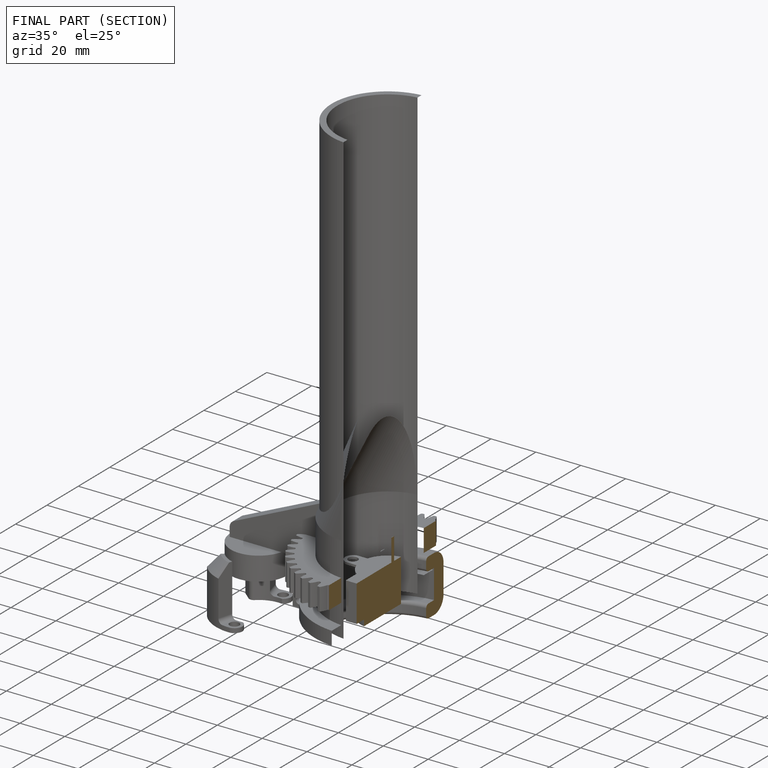
[diagram: finished part — half-section view (interior)]
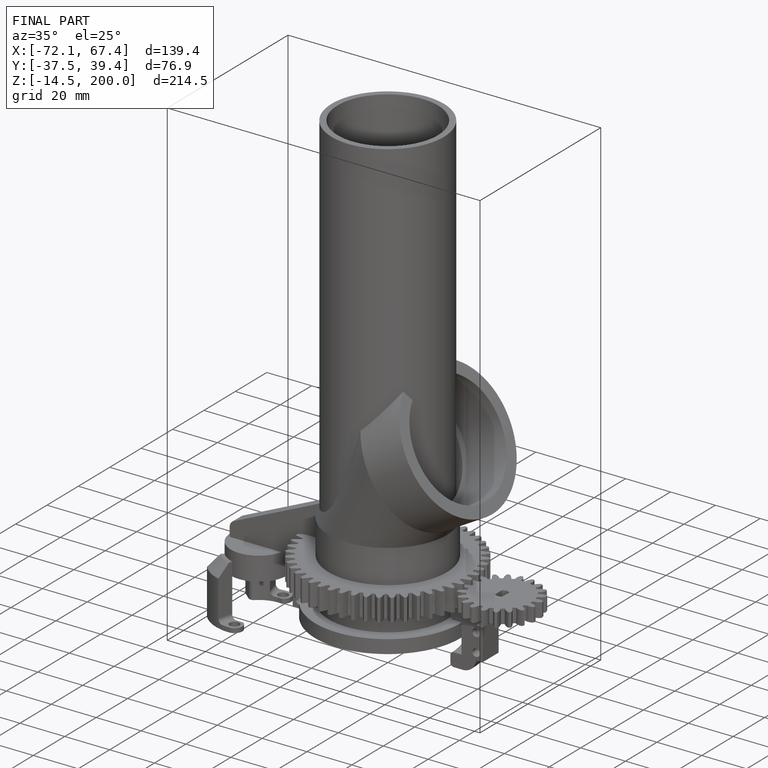
[diagram: finished part — iso view with bounding-box wireframe]
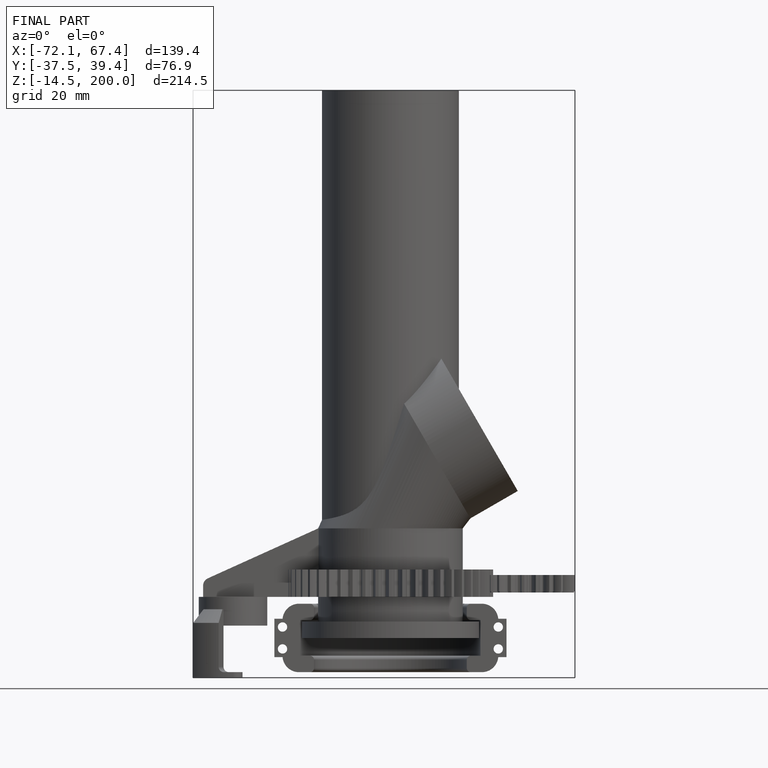
[diagram: finished part — front view with bounding-box wireframe]
